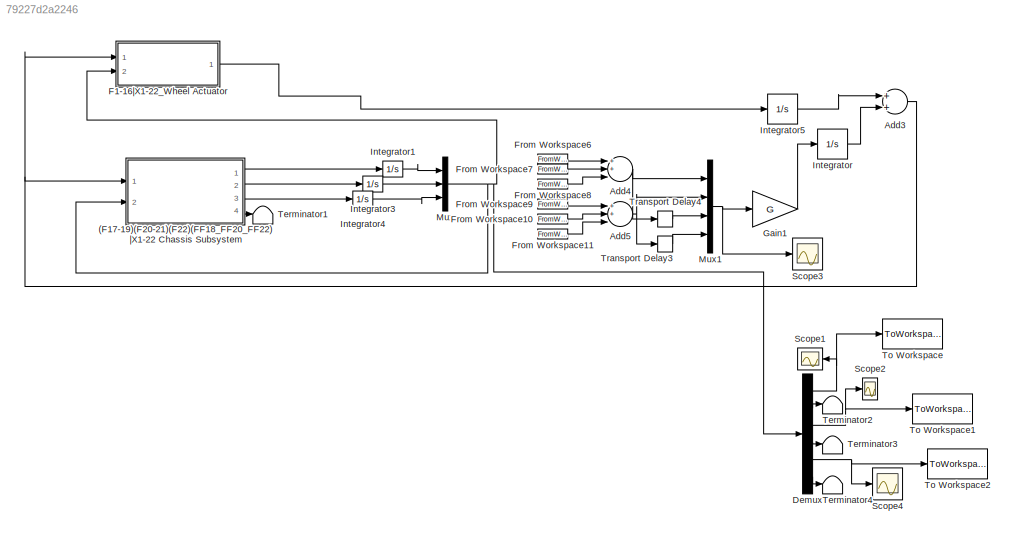
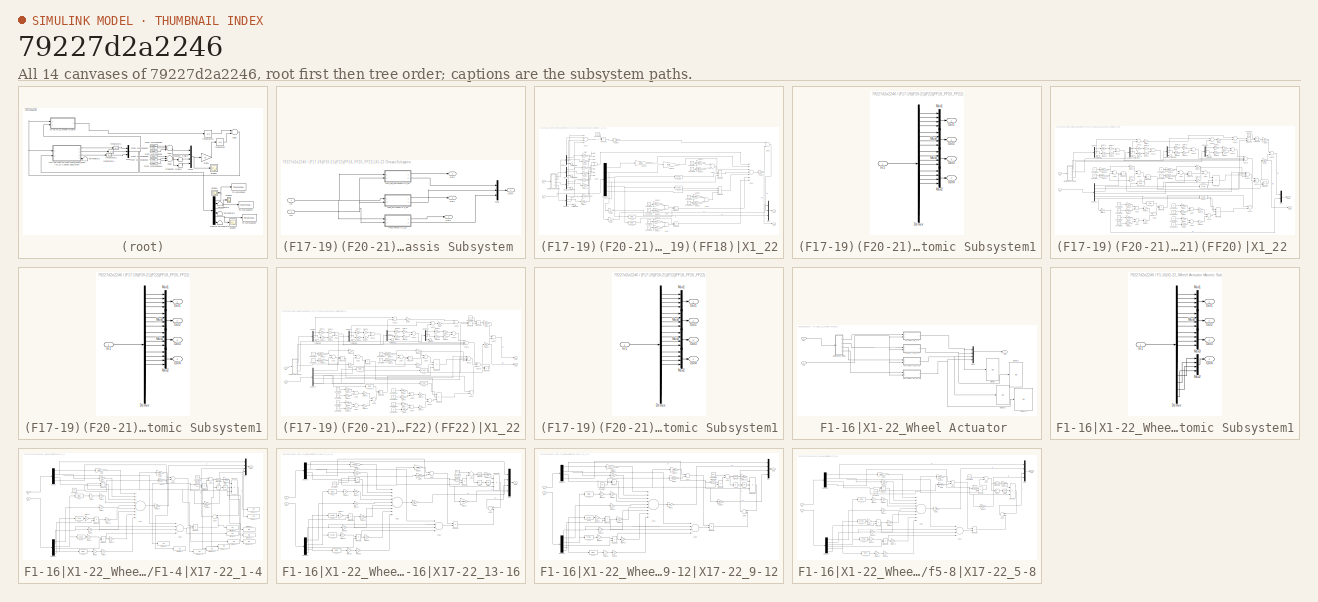
[diagram: thumbnail index - all 14 canvases of the model, root first then tree order]
MODEL slx_79227d2a2246
KIND model
CONFIG AbsTol = auto
CONFIG EnableMultiTasking = off
CONFIG FixedStep = .001
CONFIG MaxStep = 0.01
CONFIG MinStep = .001
CONFIG RelTol = 1e-3
CONFIG SampleTimeConstraint = Unconstrained
CONFIG Solver = ode8
CONFIG SolverName = ode8
CONFIG StartTime = 0.0
CONFIG StopTime = 10
BLOCK [SubSystem] (F17-19)(F20-21)(F22)(FF18_FF20_FF22) |X1-22 Chassis Subsystem 
  Ports = [2, 4]
  RequestExecContextInheritance = off
  TreatAsAtomicUnit = on
BLOCK [SubSystem] (F17-19)(F20-21)(F22)(FF18_FF20_FF22) |X1-22 Chassis Subsystem /(F17_18_19)(FF18)|X1_22
  Ports = [2, 2]
  RequestExecContextInheritance = off
  TreatAsAtomicUnit = on
BLOCK [Sum] (F17-19)(F20-21)(F22)(FF18_FF20_FF22) |X1-22 Chassis Subsystem /(F17_18_19)(FF18)|X1_22/Add
  InputSameDT = off
  OutDataTypeStr = Inherit: Inherit via internal rule
  Ports = [2, 1]
  SaturateOnIntegerOverflow = off
BLOCK [Sum] (F17-19)(F20-21)(F22)(FF18_FF20_FF22) |X1-22 Chassis Subsystem /(F17_18_19)(FF18)|X1_22/Add1
  InputSameDT = off
  OutDataTypeStr = Inherit: Inherit via internal rule
  Ports = [2, 1]
  SaturateOnIntegerOverflow = off
BLOCK [Sum] (F17-19)(F20-21)(F22)(FF18_FF20_FF22) |X1-22 Chassis Subsystem /(F17_18_19)(FF18)|X1_22/Add2
  InputSameDT = off
  OutDataTypeStr = Inherit: Inherit via internal rule
  Ports = [2, 1]
  SaturateOnIntegerOverflow = off
BLOCK [Sum] (F17-19)(F20-21)(F22)(FF18_FF20_FF22) |X1-22 Chassis Subsystem /(F17_18_19)(FF18)|X1_22/Add3
  InputSameDT = off
  OutDataTypeStr = Inherit: Inherit via internal rule
  Ports = [2, 1]
  SaturateOnIntegerOverflow = off
BLOCK [Sum] (F17-19)(F20-21)(F22)(FF18_FF20_FF22) |X1-22 Chassis Subsystem /(F17_18_19)(FF18)|X1_22/Add4
  InputSameDT = off
  Inputs = +++++++
  OutDataTypeStr = Inherit: Inherit via internal rule
  Ports = [7, 1]
  SaturateOnIntegerOverflow = off
BLOCK [Sum] (F17-19)(F20-21)(F22)(FF18_FF20_FF22) |X1-22 Chassis Subsystem /(F17_18_19)(FF18)|X1_22/Add6
  InputSameDT = off
  OutDataTypeStr = Inherit: Inherit via internal rule
  Ports = [2, 1]
  SaturateOnIntegerOverflow = off
BLOCK [Sum] (F17-19)(F20-21)(F22)(FF18_FF20_FF22) |X1-22 Chassis Subsystem /(F17_18_19)(FF18)|X1_22/Add7
  InputSameDT = off
  Inputs = ++++
  OutDataTypeStr = Inherit: Inherit via internal rule
  Ports = [4, 1]
  SaturateOnIntegerOverflow = off
BLOCK [Sum] (F17-19)(F20-21)(F22)(FF18_FF20_FF22) |X1-22 Chassis Subsystem /(F17_18_19)(FF18)|X1_22/Add8
  InputSameDT = off
  Inputs = ++++++++
  OutDataTypeStr = Inherit: Inherit via internal rule
  Ports = [8, 1]
  SaturateOnIntegerOverflow = off
BLOCK [SubSystem] (F17-19)(F20-21)(F22)(FF18_FF20_FF22) |X1-22 Chassis Subsystem /(F17_18_19)(FF18)|X1_22/Atomic Subsystem1
  Ports = [1, 4]
  RequestExecContextInheritance = off
  TreatAsAtomicUnit = on
BLOCK [Demux] (F17-19)(F20-21)(F22)(FF18_FF20_FF22) |X1-22 Chassis Subsystem /(F17_18_19)(FF18)|X1_22/Atomic Subsystem1/Demux
  DisplayOption = bar
  Outputs = 16
  Ports = [1, 16]
BLOCK [Inport] (F17-19)(F20-21)(F22)(FF18_FF20_FF22) |X1-22 Chassis Subsystem /(F17_18_19)(FF18)|X1_22/Atomic Subsystem1/In1
  IconDisplay = Port number
BLOCK [Mux] (F17-19)(F20-21)(F22)(FF18_FF20_FF22) |X1-22 Chassis Subsystem /(F17_18_19)(FF18)|X1_22/Atomic Subsystem1/Mux1
  DisplayOption = bar
  Ports = [4, 1]
BLOCK [Mux] (F17-19)(F20-21)(F22)(FF18_FF20_FF22) |X1-22 Chassis Subsystem /(F17_18_19)(FF18)|X1_22/Atomic Subsystem1/Mux2
  DisplayOption = bar
  Ports = [4, 1]
BLOCK [Mux] (F17-19)(F20-21)(F22)(FF18_FF20_FF22) |X1-22 Chassis Subsystem /(F17_18_19)(FF18)|X1_22/Atomic Subsystem1/Mux3
  DisplayOption = bar
  Ports = [4, 1]
BLOCK [Mux] (F17-19)(F20-21)(F22)(FF18_FF20_FF22) |X1-22 Chassis Subsystem /(F17_18_19)(FF18)|X1_22/Atomic Subsystem1/Mux4
  DisplayOption = bar
  Ports = [4, 1]
BLOCK [Outport] (F17-19)(F20-21)(F22)(FF18_FF20_FF22) |X1-22 Chassis Subsystem /(F17_18_19)(FF18)|X1_22/Atomic Subsystem1/Out1
  IconDisplay = Port number
BLOCK [Outport] (F17-19)(F20-21)(F22)(FF18_FF20_FF22) |X1-22 Chassis Subsystem /(F17_18_19)(FF18)|X1_22/Atomic Subsystem1/Out2
  IconDisplay = Port number
  Port = 2
BLOCK [Outport] (F17-19)(F20-21)(F22)(FF18_FF20_FF22) |X1-22 Chassis Subsystem /(F17_18_19)(FF18)|X1_22/Atomic Subsystem1/Out3
  IconDisplay = Port number
  Port = 3
BLOCK [Outport] (F17-19)(F20-21)(F22)(FF18_FF20_FF22) |X1-22 Chassis Subsystem /(F17_18_19)(FF18)|X1_22/Atomic Subsystem1/Out4
  IconDisplay = Port number
  Port = 4
BLOCK [Constant] (F17-19)(F20-21)(F22)(FF18_FF20_FF22) |X1-22 Chassis Subsystem /(F17_18_19)(FF18)|X1_22/Constant
  Value = Ap1
BLOCK [Constant] (F17-19)(F20-21)(F22)(FF18_FF20_FF22) |X1-22 Chassis Subsystem /(F17_18_19)(FF18)|X1_22/Constant1
  Value = -a
BLOCK [Constant] (F17-19)(F20-21)(F22)(FF18_FF20_FF22) |X1-22 Chassis Subsystem /(F17_18_19)(FF18)|X1_22/Constant10
  Value = c
BLOCK [Constant] (F17-19)(F20-21)(F22)(FF18_FF20_FF22) |X1-22 Chassis Subsystem /(F17_18_19)(FF18)|X1_22/Constant2
  Value = b
BLOCK [Constant] (F17-19)(F20-21)(F22)(FF18_FF20_FF22) |X1-22 Chassis Subsystem /(F17_18_19)(FF18)|X1_22/Constant5
  Value = -d
BLOCK [Constant] (F17-19)(F20-21)(F22)(FF18_FF20_FF22) |X1-22 Chassis Subsystem /(F17_18_19)(FF18)|X1_22/Constant6
  Value = c
BLOCK [Constant] (F17-19)(F20-21)(F22)(FF18_FF20_FF22) |X1-22 Chassis Subsystem /(F17_18_19)(FF18)|X1_22/Constant7
  Value = -a
BLOCK [Constant] (F17-19)(F20-21)(F22)(FF18_FF20_FF22) |X1-22 Chassis Subsystem /(F17_18_19)(FF18)|X1_22/Constant8
  Value = b
BLOCK [Constant] (F17-19)(F20-21)(F22)(FF18_FF20_FF22) |X1-22 Chassis Subsystem /(F17_18_19)(FF18)|X1_22/Constant9
  Value = -d
BLOCK [Demux] (F17-19)(F20-21)(F22)(FF18_FF20_FF22) |X1-22 Chassis Subsystem /(F17_18_19)(FF18)|X1_22/Demux1
  DisplayOption = bar
  Ports = [1, 4]
BLOCK [Demux] (F17-19)(F20-21)(F22)(FF18_FF20_FF22) |X1-22 Chassis Subsystem /(F17_18_19)(FF18)|X1_22/Demux2
  DisplayOption = bar
  Ports = [1, 4]
BLOCK [Demux] (F17-19)(F20-21)(F22)(FF18_FF20_FF22) |X1-22 Chassis Subsystem /(F17_18_19)(FF18)|X1_22/Demux3
  DisplayOption = bar
  Ports = [1, 4]
BLOCK [Demux] (F17-19)(F20-21)(F22)(FF18_FF20_FF22) |X1-22 Chassis Subsystem /(F17_18_19)(FF18)|X1_22/Demux4
  DisplayOption = bar
  Outputs = 6
  Ports = [1, 6]
BLOCK [Demux] (F17-19)(F20-21)(F22)(FF18_FF20_FF22) |X1-22 Chassis Subsystem /(F17_18_19)(FF18)|X1_22/Demux6
  DisplayOption = bar
  Ports = [1, 4]
BLOCK [Fcn] (F17-19)(F20-21)(F22)(FF18_FF20_FF22) |X1-22 Chassis Subsystem /(F17_18_19)(FF18)|X1_22/Fcn1
  Expr = cos(u)
BLOCK [Fcn] (F17-19)(F20-21)(F22)(FF18_FF20_FF22) |X1-22 Chassis Subsystem /(F17_18_19)(FF18)|X1_22/Fcn2
  Expr = sin(u)
BLOCK [Fcn] (F17-19)(F20-21)(F22)(FF18_FF20_FF22) |X1-22 Chassis Subsystem /(F17_18_19)(FF18)|X1_22/Fcn3
  Expr = sin(u)
BLOCK [Fcn] (F17-19)(F20-21)(F22)(FF18_FF20_FF22) |X1-22 Chassis Subsystem /(F17_18_19)(FF18)|X1_22/Fcn4
  Expr = cos(u)
BLOCK [Gain] (F17-19)(F20-21)(F22)(FF18_FF20_FF22) |X1-22 Chassis Subsystem /(F17_18_19)(FF18)|X1_22/Gain
  Gain = Ksfr
  OutDataTypeStr = Inherit: Inherit via internal rule
  ParamDataTypeStr = Inherit: Inherit via internal rule
  SaturateOnIntegerOverflow = off
BLOCK [Gain] (F17-19)(F20-21)(F22)(FF18_FF20_FF22) |X1-22 Chassis Subsystem /(F17_18_19)(FF18)|X1_22/Gain1
  Gain = Ksfl
  OutDataTypeStr = Inherit: Inherit via internal rule
  ParamDataTypeStr = Inherit: Inherit via internal rule
  SaturateOnIntegerOverflow = off
BLOCK [Gain] (F17-19)(F20-21)(F22)(FF18_FF20_FF22) |X1-22 Chassis Subsystem /(F17_18_19)(FF18)|X1_22/Gain10
  Gain = Csrr
  OutDataTypeStr = Inherit: Inherit via internal rule
  ParamDataTypeStr = Inherit: Inherit via internal rule
  SaturateOnIntegerOverflow = off
BLOCK [Gain] (F17-19)(F20-21)(F22)(FF18_FF20_FF22) |X1-22 Chassis Subsystem /(F17_18_19)(FF18)|X1_22/Gain11
  Gain = Csrl
  OutDataTypeStr = Inherit: Inherit via internal rule
  ParamDataTypeStr = Inherit: Inherit via internal rule
  SaturateOnIntegerOverflow = off
BLOCK [Gain] (F17-19)(F20-21)(F22)(FF18_FF20_FF22) |X1-22 Chassis Subsystem /(F17_18_19)(FF18)|X1_22/Gain12
  Gain = Csfr+Csfl
  OutDataTypeStr = Inherit: Inherit via internal rule
  ParamDataTypeStr = Inherit: Inherit via internal rule
  SaturateOnIntegerOverflow = off
BLOCK [Gain] (F17-19)(F20-21)(F22)(FF18_FF20_FF22) |X1-22 Chassis Subsystem /(F17_18_19)(FF18)|X1_22/Gain13
  Gain = Csfr+Csfl
  OutDataTypeStr = Inherit: Inherit via internal rule
  ParamDataTypeStr = Inherit: Inherit via internal rule
  SaturateOnIntegerOverflow = off
BLOCK [Gain] (F17-19)(F20-21)(F22)(FF18_FF20_FF22) |X1-22 Chassis Subsystem /(F17_18_19)(FF18)|X1_22/Gain14
  Gain = 1/M
  OutDataTypeStr = Inherit: Inherit via internal rule
  ParamDataTypeStr = Inherit: Inherit via internal rule
  SaturateOnIntegerOverflow = off
BLOCK [Gain] (F17-19)(F20-21)(F22)(FF18_FF20_FF22) |X1-22 Chassis Subsystem /(F17_18_19)(FF18)|X1_22/Gain16
  Gain = -(Ksfr+Ksfl+Ksrr+Ksrl)
  OutDataTypeStr = Inherit: Inherit via internal rule
  ParamDataTypeStr = Inherit: Inherit via internal rule
  SaturateOnIntegerOverflow = off
BLOCK [Gain] (F17-19)(F20-21)(F22)(FF18_FF20_FF22) |X1-22 Chassis Subsystem /(F17_18_19)(FF18)|X1_22/Gain2
  Gain = Ksrr
  OutDataTypeStr = Inherit: Inherit via internal rule
  ParamDataTypeStr = Inherit: Inherit via internal rule
  SaturateOnIntegerOverflow = off
BLOCK [Gain] (F17-19)(F20-21)(F22)(FF18_FF20_FF22) |X1-22 Chassis Subsystem /(F17_18_19)(FF18)|X1_22/Gain21
  Gain = Ksfr+Ksfl
  OutDataTypeStr = Inherit: Inherit via internal rule
  ParamDataTypeStr = Inherit: Inherit via internal rule
  SaturateOnIntegerOverflow = off
BLOCK [Gain] (F17-19)(F20-21)(F22)(FF18_FF20_FF22) |X1-22 Chassis Subsystem /(F17_18_19)(FF18)|X1_22/Gain22
  Gain = Ksrl+Ksfl
  OutDataTypeStr = Inherit: Inherit via internal rule
  ParamDataTypeStr = Inherit: Inherit via internal rule
  SaturateOnIntegerOverflow = off
BLOCK [Gain] (F17-19)(F20-21)(F22)(FF18_FF20_FF22) |X1-22 Chassis Subsystem /(F17_18_19)(FF18)|X1_22/Gain23
  Gain = Ksrr+Ksrl
  OutDataTypeStr = Inherit: Inherit via internal rule
  ParamDataTypeStr = Inherit: Inherit via internal rule
  SaturateOnIntegerOverflow = off
BLOCK [Gain] (F17-19)(F20-21)(F22)(FF18_FF20_FF22) |X1-22 Chassis Subsystem /(F17_18_19)(FF18)|X1_22/Gain24
  Gain = Ksrr+Ksfr
  OutDataTypeStr = Inherit: Inherit via internal rule
  ParamDataTypeStr = Inherit: Inherit via internal rule
  SaturateOnIntegerOverflow = off
BLOCK [Gain] (F17-19)(F20-21)(F22)(FF18_FF20_FF22) |X1-22 Chassis Subsystem /(F17_18_19)(FF18)|X1_22/Gain25
  Gain = -(Csfr+Csfl+Csrr+Csfr)
  OutDataTypeStr = Inherit: Inherit via internal rule
  ParamDataTypeStr = Inherit: Inherit via internal rule
  SaturateOnIntegerOverflow = off
BLOCK [Gain] (F17-19)(F20-21)(F22)(FF18_FF20_FF22) |X1-22 Chassis Subsystem /(F17_18_19)(FF18)|X1_22/Gain26
  Gain = Csrr+Csrl
  OutDataTypeStr = Inherit: Inherit via internal rule
  ParamDataTypeStr = Inherit: Inherit via internal rule
  SaturateOnIntegerOverflow = off
BLOCK [Gain] (F17-19)(F20-21)(F22)(FF18_FF20_FF22) |X1-22 Chassis Subsystem /(F17_18_19)(FF18)|X1_22/Gain27
  Gain = Csrr+Csrl
  OutDataTypeStr = Inherit: Inherit via internal rule
  ParamDataTypeStr = Inherit: Inherit via internal rule
  SaturateOnIntegerOverflow = off
BLOCK [Gain] (F17-19)(F20-21)(F22)(FF18_FF20_FF22) |X1-22 Chassis Subsystem /(F17_18_19)(FF18)|X1_22/Gain3
  Gain = Ksrl
  OutDataTypeStr = Inherit: Inherit via internal rule
  ParamDataTypeStr = Inherit: Inherit via internal rule
  SaturateOnIntegerOverflow = off
BLOCK [Gain] (F17-19)(F20-21)(F22)(FF18_FF20_FF22) |X1-22 Chassis Subsystem /(F17_18_19)(FF18)|X1_22/Gain4
  Gain = 1/M
  OutDataTypeStr = Inherit: Inherit via internal rule
  ParamDataTypeStr = Inherit: Inherit via internal rule
  SaturateOnIntegerOverflow = off
BLOCK [Gain] (F17-19)(F20-21)(F22)(FF18_FF20_FF22) |X1-22 Chassis Subsystem /(F17_18_19)(FF18)|X1_22/Gain5
  OutDataTypeStr = Inherit: Inherit via internal rule
  ParamDataTypeStr = Inherit: Inherit via internal rule
  SaturateOnIntegerOverflow = off
BLOCK [Gain] (F17-19)(F20-21)(F22)(FF18_FF20_FF22) |X1-22 Chassis Subsystem /(F17_18_19)(FF18)|X1_22/Gain7
  OutDataTypeStr = Inherit: Inherit via internal rule
  ParamDataTypeStr = Inherit: Inherit via internal rule
  SaturateOnIntegerOverflow = off
BLOCK [Gain] (F17-19)(F20-21)(F22)(FF18_FF20_FF22) |X1-22 Chassis Subsystem /(F17_18_19)(FF18)|X1_22/Gain8
  Gain = Csfr
  OutDataTypeStr = Inherit: Inherit via internal rule
  ParamDataTypeStr = Inherit: Inherit via internal rule
  SaturateOnIntegerOverflow = off
BLOCK [Gain] (F17-19)(F20-21)(F22)(FF18_FF20_FF22) |X1-22 Chassis Subsystem /(F17_18_19)(FF18)|X1_22/Gain9
  Gain = Csfl
  OutDataTypeStr = Inherit: Inherit via internal rule
  ParamDataTypeStr = Inherit: Inherit via internal rule
  SaturateOnIntegerOverflow = off
BLOCK [Inport] (F17-19)(F20-21)(F22)(FF18_FF20_FF22) |X1-22 Chassis Subsystem /(F17_18_19)(FF18)|X1_22/In1
  IconDisplay = Port number
BLOCK [Inport] (F17-19)(F20-21)(F22)(FF18_FF20_FF22) |X1-22 Chassis Subsystem /(F17_18_19)(FF18)|X1_22/In2
  IconDisplay = Port number
  Port = 2
BLOCK [Mux] (F17-19)(F20-21)(F22)(FF18_FF20_FF22) |X1-22 Chassis Subsystem /(F17_18_19)(FF18)|X1_22/Mux
  DisplayOption = bar
  Inputs = 3
  Ports = [3, 1]
BLOCK [Outport] (F17-19)(F20-21)(F22)(FF18_FF20_FF22) |X1-22 Chassis Subsystem /(F17_18_19)(FF18)|X1_22/Out1
  IconDisplay = Port number
BLOCK [Outport] (F17-19)(F20-21)(F22)(FF18_FF20_FF22) |X1-22 Chassis Subsystem /(F17_18_19)(FF18)|X1_22/Out2
  IconDisplay = Port number
  Port = 2
BLOCK [Product] (F17-19)(F20-21)(F22)(FF18_FF20_FF22) |X1-22 Chassis Subsystem /(F17_18_19)(FF18)|X1_22/Product
  InputSameDT = off
  OutDataTypeStr = Inherit: Inherit via internal rule
  Ports = [2, 1]
  RndMeth = Floor
  SaturateOnIntegerOverflow = off
BLOCK [Product] (F17-19)(F20-21)(F22)(FF18_FF20_FF22) |X1-22 Chassis Subsystem /(F17_18_19)(FF18)|X1_22/Product1
  InputSameDT = off
  OutDataTypeStr = Inherit: Inherit via internal rule
  Ports = [2, 1]
  RndMeth = Floor
  SaturateOnIntegerOverflow = off
BLOCK [Product] (F17-19)(F20-21)(F22)(FF18_FF20_FF22) |X1-22 Chassis Subsystem /(F17_18_19)(FF18)|X1_22/Product2
  InputSameDT = off
  Inputs = 3
  OutDataTypeStr = Inherit: Inherit via internal rule
  Ports = [3, 1]
  RndMeth = Floor
  SaturateOnIntegerOverflow = off
BLOCK [Product] (F17-19)(F20-21)(F22)(FF18_FF20_FF22) |X1-22 Chassis Subsystem /(F17_18_19)(FF18)|X1_22/Product3
  InputSameDT = off
  Inputs = 3
  OutDataTypeStr = Inherit: Inherit via internal rule
  Ports = [3, 1]
  RndMeth = Floor
  SaturateOnIntegerOverflow = off
BLOCK [Product] (F17-19)(F20-21)(F22)(FF18_FF20_FF22) |X1-22 Chassis Subsystem /(F17_18_19)(FF18)|X1_22/Product4
  InputSameDT = off
  OutDataTypeStr = Inherit: Inherit via internal rule
  Ports = [2, 1]
  RndMeth = Floor
  SaturateOnIntegerOverflow = off
BLOCK [Terminator] (F17-19)(F20-21)(F22)(FF18_FF20_FF22) |X1-22 Chassis Subsystem /(F17_18_19)(FF18)|X1_22/Terminator1
BLOCK [Terminator] (F17-19)(F20-21)(F22)(FF18_FF20_FF22) |X1-22 Chassis Subsystem /(F17_18_19)(FF18)|X1_22/Terminator3
BLOCK [Terminator] (F17-19)(F20-21)(F22)(FF18_FF20_FF22) |X1-22 Chassis Subsystem /(F17_18_19)(FF18)|X1_22/Terminator5
BLOCK [Terminator] (F17-19)(F20-21)(F22)(FF18_FF20_FF22) |X1-22 Chassis Subsystem /(F17_18_19)(FF18)|X1_22/Terminator7
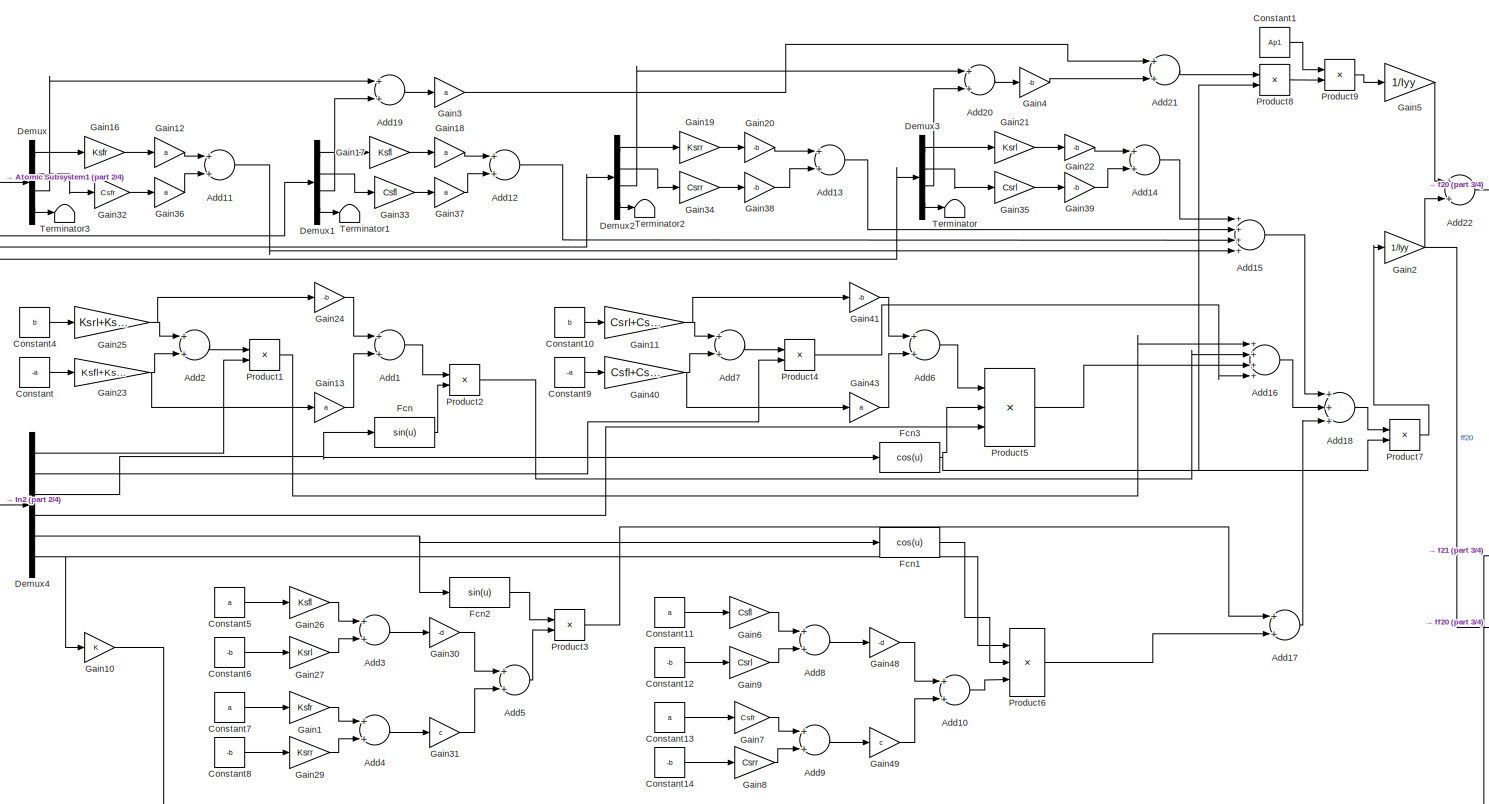
[diagram: (F17-19)(F20-21)(F22)(FF18_FF20_FF22) |X1-22 Chassis Subsystem /(F20_21)(FF20)|X1_22  - part 1/4, most of the canvas]
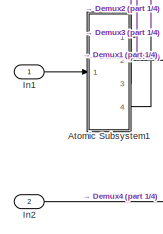
[diagram: (F17-19)(F20-21)(F22)(FF18_FF20_FF22) |X1-22 Chassis Subsystem /(F20_21)(FF20)|X1_22  - part 2/4, middle left region]
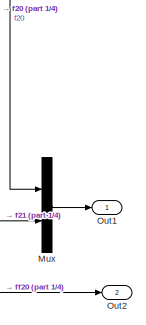
[diagram: (F17-19)(F20-21)(F22)(FF18_FF20_FF22) |X1-22 Chassis Subsystem /(F20_21)(FF20)|X1_22  - part 3/4, middle right region]
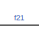
[diagram: (F17-19)(F20-21)(F22)(FF18_FF20_FF22) |X1-22 Chassis Subsystem /(F20_21)(FF20)|X1_22  - part 4/4, bottom center region]
BLOCK [SubSystem] (F17-19)(F20-21)(F22)(FF18_FF20_FF22) |X1-22 Chassis Subsystem /(F20_21)(FF20)|X1_22 
  Ports = [2, 2]
  RequestExecContextInheritance = off
  TreatAsAtomicUnit = on
BLOCK [Sum] (F17-19)(F20-21)(F22)(FF18_FF20_FF22) |X1-22 Chassis Subsystem /(F20_21)(FF20)|X1_22 /Add1
  InputSameDT = off
  OutDataTypeStr = Inherit: Inherit via internal rule
  Ports = [2, 1]
  SaturateOnIntegerOverflow = off
BLOCK [Sum] (F17-19)(F20-21)(F22)(FF18_FF20_FF22) |X1-22 Chassis Subsystem /(F20_21)(FF20)|X1_22 /Add10
  InputSameDT = off
  OutDataTypeStr = Inherit: Inherit via internal rule
  Ports = [2, 1]
  SaturateOnIntegerOverflow = off
BLOCK [Sum] (F17-19)(F20-21)(F22)(FF18_FF20_FF22) |X1-22 Chassis Subsystem /(F20_21)(FF20)|X1_22 /Add11
  InputSameDT = off
  OutDataTypeStr = Inherit: Inherit via internal rule
  Ports = [2, 1]
  SaturateOnIntegerOverflow = off
BLOCK [Sum] (F17-19)(F20-21)(F22)(FF18_FF20_FF22) |X1-22 Chassis Subsystem /(F20_21)(FF20)|X1_22 /Add12
  InputSameDT = off
  OutDataTypeStr = Inherit: Inherit via internal rule
  Ports = [2, 1]
  SaturateOnIntegerOverflow = off
BLOCK [Sum] (F17-19)(F20-21)(F22)(FF18_FF20_FF22) |X1-22 Chassis Subsystem /(F20_21)(FF20)|X1_22 /Add13
  InputSameDT = off
  OutDataTypeStr = Inherit: Inherit via internal rule
  Ports = [2, 1]
  SaturateOnIntegerOverflow = off
BLOCK [Sum] (F17-19)(F20-21)(F22)(FF18_FF20_FF22) |X1-22 Chassis Subsystem /(F20_21)(FF20)|X1_22 /Add14
  InputSameDT = off
  OutDataTypeStr = Inherit: Inherit via internal rule
  Ports = [2, 1]
  SaturateOnIntegerOverflow = off
BLOCK [Sum] (F17-19)(F20-21)(F22)(FF18_FF20_FF22) |X1-22 Chassis Subsystem /(F20_21)(FF20)|X1_22 /Add15
  InputSameDT = off
  Inputs = ++++
  OutDataTypeStr = Inherit: Inherit via internal rule
  Ports = [4, 1]
  SaturateOnIntegerOverflow = off
BLOCK [Sum] (F17-19)(F20-21)(F22)(FF18_FF20_FF22) |X1-22 Chassis Subsystem /(F20_21)(FF20)|X1_22 /Add16
  InputSameDT = off
  Inputs = ++++
  OutDataTypeStr = Inherit: Inherit via internal rule
  Ports = [4, 1]
  SaturateOnIntegerOverflow = off
BLOCK [Sum] (F17-19)(F20-21)(F22)(FF18_FF20_FF22) |X1-22 Chassis Subsystem /(F20_21)(FF20)|X1_22 /Add17
  InputSameDT = off
  OutDataTypeStr = Inherit: Inherit via internal rule
  Ports = [2, 1]
  SaturateOnIntegerOverflow = off
BLOCK [Sum] (F17-19)(F20-21)(F22)(FF18_FF20_FF22) |X1-22 Chassis Subsystem /(F20_21)(FF20)|X1_22 /Add18
  InputSameDT = off
  Inputs = +++
  OutDataTypeStr = Inherit: Inherit via internal rule
  Ports = [3, 1]
  SaturateOnIntegerOverflow = off
BLOCK [Sum] (F17-19)(F20-21)(F22)(FF18_FF20_FF22) |X1-22 Chassis Subsystem /(F20_21)(FF20)|X1_22 /Add19
  InputSameDT = off
  OutDataTypeStr = Inherit: Inherit via internal rule
  Ports = [2, 1]
  SaturateOnIntegerOverflow = off
BLOCK [Sum] (F17-19)(F20-21)(F22)(FF18_FF20_FF22) |X1-22 Chassis Subsystem /(F20_21)(FF20)|X1_22 /Add2
  InputSameDT = off
  OutDataTypeStr = Inherit: Inherit via internal rule
  Ports = [2, 1]
  SaturateOnIntegerOverflow = off
BLOCK [Sum] (F17-19)(F20-21)(F22)(FF18_FF20_FF22) |X1-22 Chassis Subsystem /(F20_21)(FF20)|X1_22 /Add20
  InputSameDT = off
  OutDataTypeStr = Inherit: Inherit via internal rule
  Ports = [2, 1]
  SaturateOnIntegerOverflow = off
BLOCK [Sum] (F17-19)(F20-21)(F22)(FF18_FF20_FF22) |X1-22 Chassis Subsystem /(F20_21)(FF20)|X1_22 /Add21
  InputSameDT = off
  OutDataTypeStr = Inherit: Inherit via internal rule
  Ports = [2, 1]
  SaturateOnIntegerOverflow = off
BLOCK [Sum] (F17-19)(F20-21)(F22)(FF18_FF20_FF22) |X1-22 Chassis Subsystem /(F20_21)(FF20)|X1_22 /Add22
  InputSameDT = off
  OutDataTypeStr = Inherit: Inherit via internal rule
  Ports = [2, 1]
  SaturateOnIntegerOverflow = off
BLOCK [Sum] (F17-19)(F20-21)(F22)(FF18_FF20_FF22) |X1-22 Chassis Subsystem /(F20_21)(FF20)|X1_22 /Add3
  InputSameDT = off
  OutDataTypeStr = Inherit: Inherit via internal rule
  Ports = [2, 1]
  SaturateOnIntegerOverflow = off
BLOCK [Sum] (F17-19)(F20-21)(F22)(FF18_FF20_FF22) |X1-22 Chassis Subsystem /(F20_21)(FF20)|X1_22 /Add4
  InputSameDT = off
  OutDataTypeStr = Inherit: Inherit via internal rule
  Ports = [2, 1]
  SaturateOnIntegerOverflow = off
BLOCK [Sum] (F17-19)(F20-21)(F22)(FF18_FF20_FF22) |X1-22 Chassis Subsystem /(F20_21)(FF20)|X1_22 /Add5
  InputSameDT = off
  OutDataTypeStr = Inherit: Inherit via internal rule
  Ports = [2, 1]
  SaturateOnIntegerOverflow = off
BLOCK [Sum] (F17-19)(F20-21)(F22)(FF18_FF20_FF22) |X1-22 Chassis Subsystem /(F20_21)(FF20)|X1_22 /Add6
  InputSameDT = off
  OutDataTypeStr = Inherit: Inherit via internal rule
  Ports = [2, 1]
  SaturateOnIntegerOverflow = off
BLOCK [Sum] (F17-19)(F20-21)(F22)(FF18_FF20_FF22) |X1-22 Chassis Subsystem /(F20_21)(FF20)|X1_22 /Add7
  InputSameDT = off
  OutDataTypeStr = Inherit: Inherit via internal rule
  Ports = [2, 1]
  SaturateOnIntegerOverflow = off
BLOCK [Sum] (F17-19)(F20-21)(F22)(FF18_FF20_FF22) |X1-22 Chassis Subsystem /(F20_21)(FF20)|X1_22 /Add8
  InputSameDT = off
  OutDataTypeStr = Inherit: Inherit via internal rule
  Ports = [2, 1]
  SaturateOnIntegerOverflow = off
BLOCK [Sum] (F17-19)(F20-21)(F22)(FF18_FF20_FF22) |X1-22 Chassis Subsystem /(F20_21)(FF20)|X1_22 /Add9
  InputSameDT = off
  OutDataTypeStr = Inherit: Inherit via internal rule
  Ports = [2, 1]
  SaturateOnIntegerOverflow = off
BLOCK [SubSystem] (F17-19)(F20-21)(F22)(FF18_FF20_FF22) |X1-22 Chassis Subsystem /(F20_21)(FF20)|X1_22 /Atomic Subsystem1
  Ports = [1, 4]
  RequestExecContextInheritance = off
  TreatAsAtomicUnit = on
BLOCK [Demux] (F17-19)(F20-21)(F22)(FF18_FF20_FF22) |X1-22 Chassis Subsystem /(F20_21)(FF20)|X1_22 /Atomic Subsystem1/Demux
  DisplayOption = bar
  Outputs = 16
  Ports = [1, 16]
BLOCK [Inport] (F17-19)(F20-21)(F22)(FF18_FF20_FF22) |X1-22 Chassis Subsystem /(F20_21)(FF20)|X1_22 /Atomic Subsystem1/In1
  IconDisplay = Port number
BLOCK [Mux] (F17-19)(F20-21)(F22)(FF18_FF20_FF22) |X1-22 Chassis Subsystem /(F20_21)(FF20)|X1_22 /Atomic Subsystem1/Mux1
  DisplayOption = bar
  Ports = [4, 1]
BLOCK [Mux] (F17-19)(F20-21)(F22)(FF18_FF20_FF22) |X1-22 Chassis Subsystem /(F20_21)(FF20)|X1_22 /Atomic Subsystem1/Mux2
  DisplayOption = bar
  Ports = [4, 1]
BLOCK [Mux] (F17-19)(F20-21)(F22)(FF18_FF20_FF22) |X1-22 Chassis Subsystem /(F20_21)(FF20)|X1_22 /Atomic Subsystem1/Mux3
  DisplayOption = bar
  Ports = [4, 1]
BLOCK [Mux] (F17-19)(F20-21)(F22)(FF18_FF20_FF22) |X1-22 Chassis Subsystem /(F20_21)(FF20)|X1_22 /Atomic Subsystem1/Mux4
  DisplayOption = bar
  Ports = [4, 1]
BLOCK [Outport] (F17-19)(F20-21)(F22)(FF18_FF20_FF22) |X1-22 Chassis Subsystem /(F20_21)(FF20)|X1_22 /Atomic Subsystem1/Out1
  IconDisplay = Port number
BLOCK [Outport] (F17-19)(F20-21)(F22)(FF18_FF20_FF22) |X1-22 Chassis Subsystem /(F20_21)(FF20)|X1_22 /Atomic Subsystem1/Out2
  IconDisplay = Port number
  Port = 2
BLOCK [Outport] (F17-19)(F20-21)(F22)(FF18_FF20_FF22) |X1-22 Chassis Subsystem /(F20_21)(FF20)|X1_22 /Atomic Subsystem1/Out3
  IconDisplay = Port number
  Port = 3
BLOCK [Outport] (F17-19)(F20-21)(F22)(FF18_FF20_FF22) |X1-22 Chassis Subsystem /(F20_21)(FF20)|X1_22 /Atomic Subsystem1/Out4
  IconDisplay = Port number
  Port = 4
BLOCK [Constant] (F17-19)(F20-21)(F22)(FF18_FF20_FF22) |X1-22 Chassis Subsystem /(F20_21)(FF20)|X1_22 /Constant
  Value = -a
BLOCK [Constant] (F17-19)(F20-21)(F22)(FF18_FF20_FF22) |X1-22 Chassis Subsystem /(F20_21)(FF20)|X1_22 /Constant1
  Value = Ap1
BLOCK [Constant] (F17-19)(F20-21)(F22)(FF18_FF20_FF22) |X1-22 Chassis Subsystem /(F20_21)(FF20)|X1_22 /Constant10
  Value = b
BLOCK [Constant] (F17-19)(F20-21)(F22)(FF18_FF20_FF22) |X1-22 Chassis Subsystem /(F20_21)(FF20)|X1_22 /Constant11
  Value = a
BLOCK [Constant] (F17-19)(F20-21)(F22)(FF18_FF20_FF22) |X1-22 Chassis Subsystem /(F20_21)(FF20)|X1_22 /Constant12
  Value = -b
BLOCK [Constant] (F17-19)(F20-21)(F22)(FF18_FF20_FF22) |X1-22 Chassis Subsystem /(F20_21)(FF20)|X1_22 /Constant13
  Value = a
BLOCK [Constant] (F17-19)(F20-21)(F22)(FF18_FF20_FF22) |X1-22 Chassis Subsystem /(F20_21)(FF20)|X1_22 /Constant14
  Value = -b
BLOCK [Constant] (F17-19)(F20-21)(F22)(FF18_FF20_FF22) |X1-22 Chassis Subsystem /(F20_21)(FF20)|X1_22 /Constant4
  Value = b
BLOCK [Constant] (F17-19)(F20-21)(F22)(FF18_FF20_FF22) |X1-22 Chassis Subsystem /(F20_21)(FF20)|X1_22 /Constant5
  Value = a
BLOCK [Constant] (F17-19)(F20-21)(F22)(FF18_FF20_FF22) |X1-22 Chassis Subsystem /(F20_21)(FF20)|X1_22 /Constant6
  Value = -b
BLOCK [Constant] (F17-19)(F20-21)(F22)(FF18_FF20_FF22) |X1-22 Chassis Subsystem /(F20_21)(FF20)|X1_22 /Constant7
  Value = a
BLOCK [Constant] (F17-19)(F20-21)(F22)(FF18_FF20_FF22) |X1-22 Chassis Subsystem /(F20_21)(FF20)|X1_22 /Constant8
  Value = -b
BLOCK [Constant] (F17-19)(F20-21)(F22)(FF18_FF20_FF22) |X1-22 Chassis Subsystem /(F20_21)(FF20)|X1_22 /Constant9
  Value = -a
BLOCK [Demux] (F17-19)(F20-21)(F22)(FF18_FF20_FF22) |X1-22 Chassis Subsystem /(F20_21)(FF20)|X1_22 /Demux
  DisplayOption = bar
  Ports = [1, 4]
BLOCK [Demux] (F17-19)(F20-21)(F22)(FF18_FF20_FF22) |X1-22 Chassis Subsystem /(F20_21)(FF20)|X1_22 /Demux1
  DisplayOption = bar
  Ports = [1, 4]
BLOCK [Demux] (F17-19)(F20-21)(F22)(FF18_FF20_FF22) |X1-22 Chassis Subsystem /(F20_21)(FF20)|X1_22 /Demux2
  DisplayOption = bar
  Ports = [1, 4]
BLOCK [Demux] (F17-19)(F20-21)(F22)(FF18_FF20_FF22) |X1-22 Chassis Subsystem /(F20_21)(FF20)|X1_22 /Demux3
  DisplayOption = bar
  Ports = [1, 4]
BLOCK [Demux] (F17-19)(F20-21)(F22)(FF18_FF20_FF22) |X1-22 Chassis Subsystem /(F20_21)(FF20)|X1_22 /Demux4
  DisplayOption = bar
  Outputs = 6
  Ports = [1, 6]
BLOCK [Fcn] (F17-19)(F20-21)(F22)(FF18_FF20_FF22) |X1-22 Chassis Subsystem /(F20_21)(FF20)|X1_22 /Fcn
  Expr = sin(u)
BLOCK [Fcn] (F17-19)(F20-21)(F22)(FF18_FF20_FF22) |X1-22 Chassis Subsystem /(F20_21)(FF20)|X1_22 /Fcn1
  Expr = cos(u)
BLOCK [Fcn] (F17-19)(F20-21)(F22)(FF18_FF20_FF22) |X1-22 Chassis Subsystem /(F20_21)(FF20)|X1_22 /Fcn2
  Expr = sin(u)
BLOCK [Fcn] (F17-19)(F20-21)(F22)(FF18_FF20_FF22) |X1-22 Chassis Subsystem /(F20_21)(FF20)|X1_22 /Fcn3
  Expr = cos(u)
BLOCK [Gain] (F17-19)(F20-21)(F22)(FF18_FF20_FF22) |X1-22 Chassis Subsystem /(F20_21)(FF20)|X1_22 /Gain1
  Gain = Ksfr
  OutDataTypeStr = Inherit: Inherit via internal rule
  ParamDataTypeStr = Inherit: Inherit via internal rule
  SaturateOnIntegerOverflow = off
BLOCK [Gain] (F17-19)(F20-21)(F22)(FF18_FF20_FF22) |X1-22 Chassis Subsystem /(F20_21)(FF20)|X1_22 /Gain10
  OutDataTypeStr = Inherit: Inherit via internal rule
  ParamDataTypeStr = Inherit: Inherit via internal rule
  SaturateOnIntegerOverflow = off
BLOCK [Gain] (F17-19)(F20-21)(F22)(FF18_FF20_FF22) |X1-22 Chassis Subsystem /(F20_21)(FF20)|X1_22 /Gain11
  Gain = Csrl+Csrr
  OutDataTypeStr = Inherit: Inherit via internal rule
  ParamDataTypeStr = Inherit: Inherit via internal rule
  SaturateOnIntegerOverflow = off
BLOCK [Gain] (F17-19)(F20-21)(F22)(FF18_FF20_FF22) |X1-22 Chassis Subsystem /(F20_21)(FF20)|X1_22 /Gain12
  Gain = a
  OutDataTypeStr = Inherit: Inherit via internal rule
  ParamDataTypeStr = Inherit: Inherit via internal rule
  SaturateOnIntegerOverflow = off
BLOCK [Gain] (F17-19)(F20-21)(F22)(FF18_FF20_FF22) |X1-22 Chassis Subsystem /(F20_21)(FF20)|X1_22 /Gain13
  Gain = a
  OutDataTypeStr = Inherit: Inherit via internal rule
  ParamDataTypeStr = Inherit: Inherit via internal rule
  SaturateOnIntegerOverflow = off
BLOCK [Gain] (F17-19)(F20-21)(F22)(FF18_FF20_FF22) |X1-22 Chassis Subsystem /(F20_21)(FF20)|X1_22 /Gain16
  Gain = Ksfr
  OutDataTypeStr = Inherit: Inherit via internal rule
  ParamDataTypeStr = Inherit: Inherit via internal rule
  SaturateOnIntegerOverflow = off
BLOCK [Gain] (F17-19)(F20-21)(F22)(FF18_FF20_FF22) |X1-22 Chassis Subsystem /(F20_21)(FF20)|X1_22 /Gain17
  Gain = Ksfl
  OutDataTypeStr = Inherit: Inherit via internal rule
  ParamDataTypeStr = Inherit: Inherit via internal rule
  SaturateOnIntegerOverflow = off
BLOCK [Gain] (F17-19)(F20-21)(F22)(FF18_FF20_FF22) |X1-22 Chassis Subsystem /(F20_21)(FF20)|X1_22 /Gain18
  Gain = a
  OutDataTypeStr = Inherit: Inherit via internal rule
  ParamDataTypeStr = Inherit: Inherit via internal rule
  SaturateOnIntegerOverflow = off
BLOCK [Gain] (F17-19)(F20-21)(F22)(FF18_FF20_FF22) |X1-22 Chassis Subsystem /(F20_21)(FF20)|X1_22 /Gain19
  Gain = Ksrr
  OutDataTypeStr = Inherit: Inherit via internal rule
  ParamDataTypeStr = Inherit: Inherit via internal rule
  SaturateOnIntegerOverflow = off
BLOCK [Gain] (F17-19)(F20-21)(F22)(FF18_FF20_FF22) |X1-22 Chassis Subsystem /(F20_21)(FF20)|X1_22 /Gain2
  Gain = 1/Iyy
  OutDataTypeStr = Inherit: Inherit via internal rule
  ParamDataTypeStr = Inherit: Inherit via internal rule
  SaturateOnIntegerOverflow = off
BLOCK [Gain] (F17-19)(F20-21)(F22)(FF18_FF20_FF22) |X1-22 Chassis Subsystem /(F20_21)(FF20)|X1_22 /Gain20
  Gain = -b
  OutDataTypeStr = Inherit: Inherit via internal rule
  ParamDataTypeStr = Inherit: Inherit via internal rule
  SaturateOnIntegerOverflow = off
BLOCK [Gain] (F17-19)(F20-21)(F22)(FF18_FF20_FF22) |X1-22 Chassis Subsystem /(F20_21)(FF20)|X1_22 /Gain21
  Gain = Ksrl
  OutDataTypeStr = Inherit: Inherit via internal rule
  ParamDataTypeStr = Inherit: Inherit via internal rule
  SaturateOnIntegerOverflow = off
BLOCK [Gain] (F17-19)(F20-21)(F22)(FF18_FF20_FF22) |X1-22 Chassis Subsystem /(F20_21)(FF20)|X1_22 /Gain22
  Gain = -b
  OutDataTypeStr = Inherit: Inherit via internal rule
  ParamDataTypeStr = Inherit: Inherit via internal rule
  SaturateOnIntegerOverflow = off
BLOCK [Gain] (F17-19)(F20-21)(F22)(FF18_FF20_FF22) |X1-22 Chassis Subsystem /(F20_21)(FF20)|X1_22 /Gain23
  Gain = Ksfl+Ksfr
  OutDataTypeStr = Inherit: Inherit via internal rule
  ParamDataTypeStr = Inherit: Inherit via internal rule
  SaturateOnIntegerOverflow = off
BLOCK [Gain] (F17-19)(F20-21)(F22)(FF18_FF20_FF22) |X1-22 Chassis Subsystem /(F20_21)(FF20)|X1_22 /Gain24
  Gain = -b
  OutDataTypeStr = Inherit: Inherit via internal rule
  ParamDataTypeStr = Inherit: Inherit via internal rule
  SaturateOnIntegerOverflow = off
BLOCK [Gain] (F17-19)(F20-21)(F22)(FF18_FF20_FF22) |X1-22 Chassis Subsystem /(F20_21)(FF20)|X1_22 /Gain25
  Gain = Ksrl+Ksrr
  OutDataTypeStr = Inherit: Inherit via internal rule
  ParamDataTypeStr = Inherit: Inherit via internal rule
  SaturateOnIntegerOverflow = off
BLOCK [Gain] (F17-19)(F20-21)(F22)(FF18_FF20_FF22) |X1-22 Chassis Subsystem /(F20_21)(FF20)|X1_22 /Gain26
  Gain = Ksfl
  OutDataTypeStr = Inherit: Inherit via internal rule
  ParamDataTypeStr = Inherit: Inherit via internal rule
  SaturateOnIntegerOverflow = off
BLOCK [Gain] (F17-19)(F20-21)(F22)(FF18_FF20_FF22) |X1-22 Chassis Subsystem /(F20_21)(FF20)|X1_22 /Gain27
  Gain = Ksrl
  OutDataTypeStr = Inherit: Inherit via internal rule
  ParamDataTypeStr = Inherit: Inherit via internal rule
  SaturateOnIntegerOverflow = off
BLOCK [Gain] (F17-19)(F20-21)(F22)(FF18_FF20_FF22) |X1-22 Chassis Subsystem /(F20_21)(FF20)|X1_22 /Gain29
  Gain = Ksrr
  OutDataTypeStr = Inherit: Inherit via internal rule
  ParamDataTypeStr = Inherit: Inherit via internal rule
  SaturateOnIntegerOverflow = off
BLOCK [Gain] (F17-19)(F20-21)(F22)(FF18_FF20_FF22) |X1-22 Chassis Subsystem /(F20_21)(FF20)|X1_22 /Gain3
  Gain = a
  OutDataTypeStr = Inherit: Inherit via internal rule
  ParamDataTypeStr = Inherit: Inherit via internal rule
  SaturateOnIntegerOverflow = off
BLOCK [Gain] (F17-19)(F20-21)(F22)(FF18_FF20_FF22) |X1-22 Chassis Subsystem /(F20_21)(FF20)|X1_22 /Gain30
  Gain = -d
  OutDataTypeStr = Inherit: Inherit via internal rule
  ParamDataTypeStr = Inherit: Inherit via internal rule
  SaturateOnIntegerOverflow = off
BLOCK [Gain] (F17-19)(F20-21)(F22)(FF18_FF20_FF22) |X1-22 Chassis Subsystem /(F20_21)(FF20)|X1_22 /Gain31
  Gain = c
  OutDataTypeStr = Inherit: Inherit via internal rule
  ParamDataTypeStr = Inherit: Inherit via internal rule
  SaturateOnIntegerOverflow = off
BLOCK [Gain] (F17-19)(F20-21)(F22)(FF18_FF20_FF22) |X1-22 Chassis Subsystem /(F20_21)(FF20)|X1_22 /Gain32
  Gain = Csfr
  OutDataTypeStr = Inherit: Inherit via internal rule
  ParamDataTypeStr = Inherit: Inherit via internal rule
  SaturateOnIntegerOverflow = off
BLOCK [Gain] (F17-19)(F20-21)(F22)(FF18_FF20_FF22) |X1-22 Chassis Subsystem /(F20_21)(FF20)|X1_22 /Gain33
  Gain = Csfl
  OutDataTypeStr = Inherit: Inherit via internal rule
  ParamDataTypeStr = Inherit: Inherit via internal rule
  SaturateOnIntegerOverflow = off
BLOCK [Gain] (F17-19)(F20-21)(F22)(FF18_FF20_FF22) |X1-22 Chassis Subsystem /(F20_21)(FF20)|X1_22 /Gain34
  Gain = Csrr
  OutDataTypeStr = Inherit: Inherit via internal rule
  ParamDataTypeStr = Inherit: Inherit via internal rule
  SaturateOnIntegerOverflow = off
BLOCK [Gain] (F17-19)(F20-21)(F22)(FF18_FF20_FF22) |X1-22 Chassis Subsystem /(F20_21)(FF20)|X1_22 /Gain35
  Gain = Csrl
  OutDataTypeStr = Inherit: Inherit via internal rule
  ParamDataTypeStr = Inherit: Inherit via internal rule
  SaturateOnIntegerOverflow = off
BLOCK [Gain] (F17-19)(F20-21)(F22)(FF18_FF20_FF22) |X1-22 Chassis Subsystem /(F20_21)(FF20)|X1_22 /Gain36
  Gain = a
  OutDataTypeStr = Inherit: Inherit via internal rule
  ParamDataTypeStr = Inherit: Inherit via internal rule
  SaturateOnIntegerOverflow = off
BLOCK [Gain] (F17-19)(F20-21)(F22)(FF18_FF20_FF22) |X1-22 Chassis Subsystem /(F20_21)(FF20)|X1_22 /Gain37
  Gain = a
  OutDataTypeStr = Inherit: Inherit via internal rule
  ParamDataTypeStr = Inherit: Inherit via internal rule
  SaturateOnIntegerOverflow = off
BLOCK [Gain] (F17-19)(F20-21)(F22)(FF18_FF20_FF22) |X1-22 Chassis Subsystem /(F20_21)(FF20)|X1_22 /Gain38
  Gain = -b
  OutDataTypeStr = Inherit: Inherit via internal rule
  ParamDataTypeStr = Inherit: Inherit via internal rule
  SaturateOnIntegerOverflow = off
BLOCK [Gain] (F17-19)(F20-21)(F22)(FF18_FF20_FF22) |X1-22 Chassis Subsystem /(F20_21)(FF20)|X1_22 /Gain39
  Gain = -b
  OutDataTypeStr = Inherit: Inherit via internal rule
  ParamDataTypeStr = Inherit: Inherit via internal rule
  SaturateOnIntegerOverflow = off
BLOCK [Gain] (F17-19)(F20-21)(F22)(FF18_FF20_FF22) |X1-22 Chassis Subsystem /(F20_21)(FF20)|X1_22 /Gain4
  Gain = -b
  OutDataTypeStr = Inherit: Inherit via internal rule
  ParamDataTypeStr = Inherit: Inherit via internal rule
  SaturateOnIntegerOverflow = off
BLOCK [Gain] (F17-19)(F20-21)(F22)(FF18_FF20_FF22) |X1-22 Chassis Subsystem /(F20_21)(FF20)|X1_22 /Gain40
  Gain = Csfl+Csfr
  OutDataTypeStr = Inherit: Inherit via internal rule
  ParamDataTypeStr = Inherit: Inherit via internal rule
  SaturateOnIntegerOverflow = off
BLOCK [Gain] (F17-19)(F20-21)(F22)(FF18_FF20_FF22) |X1-22 Chassis Subsystem /(F20_21)(FF20)|X1_22 /Gain41
  Gain = -b
  OutDataTypeStr = Inherit: Inherit via internal rule
  ParamDataTypeStr = Inherit: Inherit via internal rule
  SaturateOnIntegerOverflow = off
BLOCK [Gain] (F17-19)(F20-21)(F22)(FF18_FF20_FF22) |X1-22 Chassis Subsystem /(F20_21)(FF20)|X1_22 /Gain43
  Gain = a
  OutDataTypeStr = Inherit: Inherit via internal rule
  ParamDataTypeStr = Inherit: Inherit via internal rule
  SaturateOnIntegerOverflow = off
BLOCK [Gain] (F17-19)(F20-21)(F22)(FF18_FF20_FF22) |X1-22 Chassis Subsystem /(F20_21)(FF20)|X1_22 /Gain48
  Gain = -d
  OutDataTypeStr = Inherit: Inherit via internal rule
  ParamDataTypeStr = Inherit: Inherit via internal rule
  SaturateOnIntegerOverflow = off
BLOCK [Gain] (F17-19)(F20-21)(F22)(FF18_FF20_FF22) |X1-22 Chassis Subsystem /(F20_21)(FF20)|X1_22 /Gain49
  Gain = c
  OutDataTypeStr = Inherit: Inherit via internal rule
  ParamDataTypeStr = Inherit: Inherit via internal rule
  SaturateOnIntegerOverflow = off
BLOCK [Gain] (F17-19)(F20-21)(F22)(FF18_FF20_FF22) |X1-22 Chassis Subsystem /(F20_21)(FF20)|X1_22 /Gain5
  Gain = 1/Iyy
  OutDataTypeStr = Inherit: Inherit via internal rule
  ParamDataTypeStr = Inherit: Inherit via internal rule
  SaturateOnIntegerOverflow = off
BLOCK [Gain] (F17-19)(F20-21)(F22)(FF18_FF20_FF22) |X1-22 Chassis Subsystem /(F20_21)(FF20)|X1_22 /Gain6
  Gain = Csfl
  OutDataTypeStr = Inherit: Inherit via internal rule
  ParamDataTypeStr = Inherit: Inherit via internal rule
  SaturateOnIntegerOverflow = off
BLOCK [Gain] (F17-19)(F20-21)(F22)(FF18_FF20_FF22) |X1-22 Chassis Subsystem /(F20_21)(FF20)|X1_22 /Gain7
  Gain = Csfr
  OutDataTypeStr = Inherit: Inherit via internal rule
  ParamDataTypeStr = Inherit: Inherit via internal rule
  SaturateOnIntegerOverflow = off
BLOCK [Gain] (F17-19)(F20-21)(F22)(FF18_FF20_FF22) |X1-22 Chassis Subsystem /(F20_21)(FF20)|X1_22 /Gain8
  Gain = Csrr
  OutDataTypeStr = Inherit: Inherit via internal rule
  ParamDataTypeStr = Inherit: Inherit via internal rule
  SaturateOnIntegerOverflow = off
BLOCK [Gain] (F17-19)(F20-21)(F22)(FF18_FF20_FF22) |X1-22 Chassis Subsystem /(F20_21)(FF20)|X1_22 /Gain9
  Gain = Csrl
  OutDataTypeStr = Inherit: Inherit via internal rule
  ParamDataTypeStr = Inherit: Inherit via internal rule
  SaturateOnIntegerOverflow = off
BLOCK [Inport] (F17-19)(F20-21)(F22)(FF18_FF20_FF22) |X1-22 Chassis Subsystem /(F20_21)(FF20)|X1_22 /In1
  IconDisplay = Port number
BLOCK [Inport] (F17-19)(F20-21)(F22)(FF18_FF20_FF22) |X1-22 Chassis Subsystem /(F20_21)(FF20)|X1_22 /In2
  IconDisplay = Port number
  Port = 2
BLOCK [Mux] (F17-19)(F20-21)(F22)(FF18_FF20_FF22) |X1-22 Chassis Subsystem /(F20_21)(FF20)|X1_22 /Mux
  DisplayOption = bar
  Inputs = 2
  Ports = [2, 1]
BLOCK [Outport] (F17-19)(F20-21)(F22)(FF18_FF20_FF22) |X1-22 Chassis Subsystem /(F20_21)(FF20)|X1_22 /Out1
  IconDisplay = Port number
BLOCK [Outport] (F17-19)(F20-21)(F22)(FF18_FF20_FF22) |X1-22 Chassis Subsystem /(F20_21)(FF20)|X1_22 /Out2
  IconDisplay = Port number
  Port = 2
BLOCK [Product] (F17-19)(F20-21)(F22)(FF18_FF20_FF22) |X1-22 Chassis Subsystem /(F20_21)(FF20)|X1_22 /Product1
  InputSameDT = off
  OutDataTypeStr = Inherit: Inherit via internal rule
  Ports = [2, 1]
  RndMeth = Floor
  SaturateOnIntegerOverflow = off
BLOCK [Product] (F17-19)(F20-21)(F22)(FF18_FF20_FF22) |X1-22 Chassis Subsystem /(F20_21)(FF20)|X1_22 /Product2
  InputSameDT = off
  OutDataTypeStr = Inherit: Inherit via internal rule
  Ports = [2, 1]
  RndMeth = Floor
  SaturateOnIntegerOverflow = off
BLOCK [Product] (F17-19)(F20-21)(F22)(FF18_FF20_FF22) |X1-22 Chassis Subsystem /(F20_21)(FF20)|X1_22 /Product3
  InputSameDT = off
  OutDataTypeStr = Inherit: Inherit via internal rule
  Ports = [2, 1]
  RndMeth = Floor
  SaturateOnIntegerOverflow = off
BLOCK [Product] (F17-19)(F20-21)(F22)(FF18_FF20_FF22) |X1-22 Chassis Subsystem /(F20_21)(FF20)|X1_22 /Product4
  InputSameDT = off
  OutDataTypeStr = Inherit: Inherit via internal rule
  Ports = [2, 1]
  RndMeth = Floor
  SaturateOnIntegerOverflow = off
BLOCK [Product] (F17-19)(F20-21)(F22)(FF18_FF20_FF22) |X1-22 Chassis Subsystem /(F20_21)(FF20)|X1_22 /Product5
  InputSameDT = off
  Inputs = 3
  OutDataTypeStr = Inherit: Inherit via internal rule
  Ports = [3, 1]
  RndMeth = Floor
  SaturateOnIntegerOverflow = off
BLOCK [Product] (F17-19)(F20-21)(F22)(FF18_FF20_FF22) |X1-22 Chassis Subsystem /(F20_21)(FF20)|X1_22 /Product6
  InputSameDT = off
  Inputs = 3
  OutDataTypeStr = Inherit: Inherit via internal rule
  Ports = [3, 1]
  RndMeth = Floor
  SaturateOnIntegerOverflow = off
BLOCK [Product] (F17-19)(F20-21)(F22)(FF18_FF20_FF22) |X1-22 Chassis Subsystem /(F20_21)(FF20)|X1_22 /Product7
  InputSameDT = off
  OutDataTypeStr = Inherit: Inherit via internal rule
  Ports = [2, 1]
  RndMeth = Floor
  SaturateOnIntegerOverflow = off
BLOCK [Product] (F17-19)(F20-21)(F22)(FF18_FF20_FF22) |X1-22 Chassis Subsystem /(F20_21)(FF20)|X1_22 /Product8
  InputSameDT = off
  OutDataTypeStr = Inherit: Inherit via internal rule
  Ports = [2, 1]
  RndMeth = Floor
  SaturateOnIntegerOverflow = off
BLOCK [Product] (F17-19)(F20-21)(F22)(FF18_FF20_FF22) |X1-22 Chassis Subsystem /(F20_21)(FF20)|X1_22 /Product9
  InputSameDT = off
  OutDataTypeStr = Inherit: Inherit via internal rule
  Ports = [2, 1]
  RndMeth = Floor
  SaturateOnIntegerOverflow = off
BLOCK [Terminator] (F17-19)(F20-21)(F22)(FF18_FF20_FF22) |X1-22 Chassis Subsystem /(F20_21)(FF20)|X1_22 /Terminator
BLOCK [Terminator] (F17-19)(F20-21)(F22)(FF18_FF20_FF22) |X1-22 Chassis Subsystem /(F20_21)(FF20)|X1_22 /Terminator1
BLOCK [Terminator] (F17-19)(F20-21)(F22)(FF18_FF20_FF22) |X1-22 Chassis Subsystem /(F20_21)(FF20)|X1_22 /Terminator2
BLOCK [Terminator] (F17-19)(F20-21)(F22)(FF18_FF20_FF22) |X1-22 Chassis Subsystem /(F20_21)(FF20)|X1_22 /Terminator3
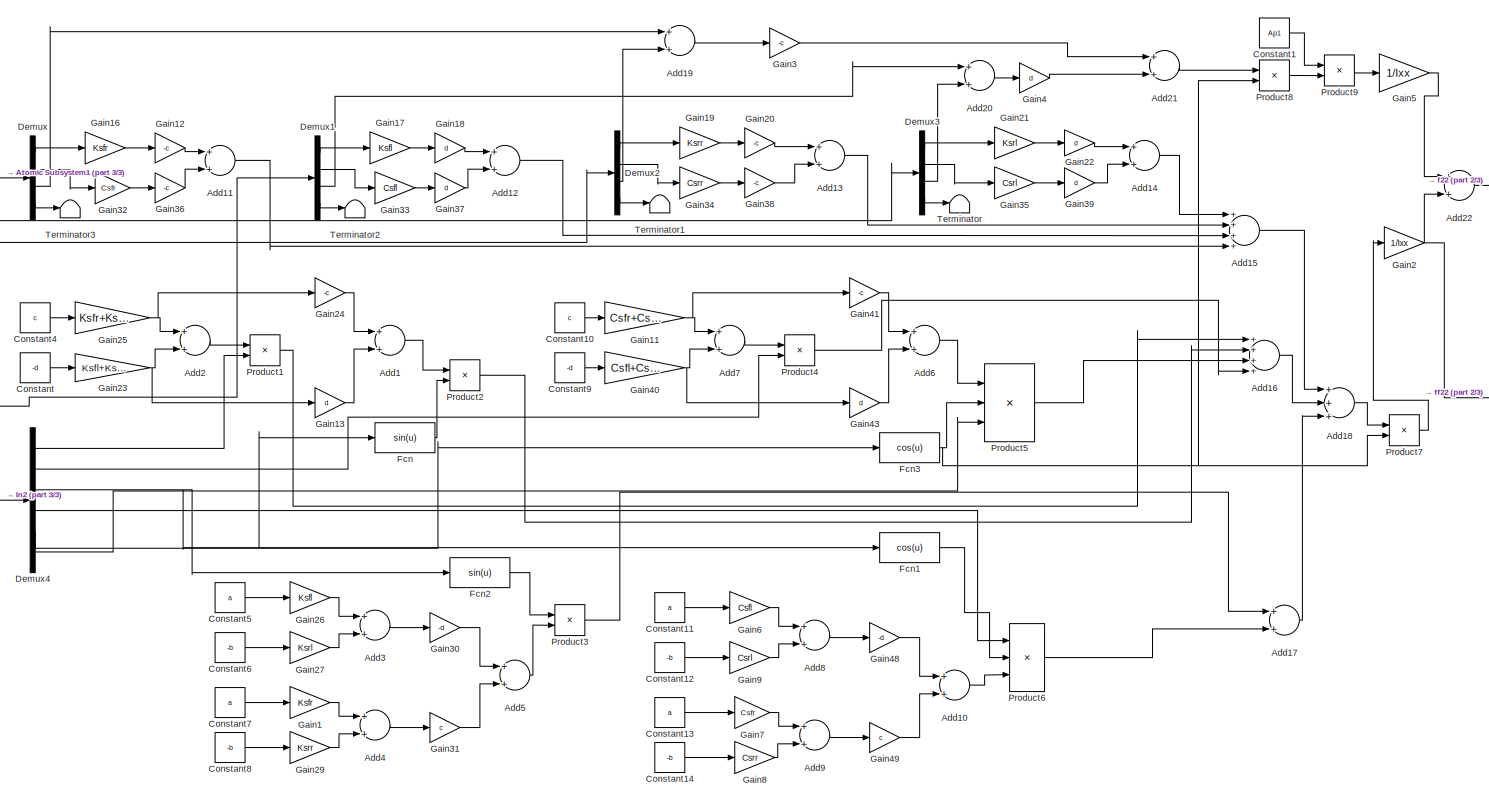
[diagram: (F17-19)(F20-21)(F22)(FF18_FF20_FF22) |X1-22 Chassis Subsystem /(F22)(FF22)|X1_22 - part 1/3, most of the canvas]
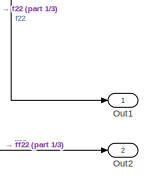
[diagram: (F17-19)(F20-21)(F22)(FF18_FF20_FF22) |X1-22 Chassis Subsystem /(F22)(FF22)|X1_22 - part 2/3, middle right region]
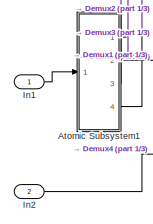
[diagram: (F17-19)(F20-21)(F22)(FF18_FF20_FF22) |X1-22 Chassis Subsystem /(F22)(FF22)|X1_22 - part 3/3, middle left region]
BLOCK [SubSystem] (F17-19)(F20-21)(F22)(FF18_FF20_FF22) |X1-22 Chassis Subsystem /(F22)(FF22)|X1_22
  Ports = [2, 2]
  RequestExecContextInheritance = off
  TreatAsAtomicUnit = on
BLOCK [Sum] (F17-19)(F20-21)(F22)(FF18_FF20_FF22) |X1-22 Chassis Subsystem /(F22)(FF22)|X1_22/Add1
  InputSameDT = off
  OutDataTypeStr = Inherit: Inherit via internal rule
  Ports = [2, 1]
  SaturateOnIntegerOverflow = off
BLOCK [Sum] (F17-19)(F20-21)(F22)(FF18_FF20_FF22) |X1-22 Chassis Subsystem /(F22)(FF22)|X1_22/Add10
  InputSameDT = off
  OutDataTypeStr = Inherit: Inherit via internal rule
  Ports = [2, 1]
  SaturateOnIntegerOverflow = off
BLOCK [Sum] (F17-19)(F20-21)(F22)(FF18_FF20_FF22) |X1-22 Chassis Subsystem /(F22)(FF22)|X1_22/Add11
  InputSameDT = off
  OutDataTypeStr = Inherit: Inherit via internal rule
  Ports = [2, 1]
  SaturateOnIntegerOverflow = off
BLOCK [Sum] (F17-19)(F20-21)(F22)(FF18_FF20_FF22) |X1-22 Chassis Subsystem /(F22)(FF22)|X1_22/Add12
  InputSameDT = off
  OutDataTypeStr = Inherit: Inherit via internal rule
  Ports = [2, 1]
  SaturateOnIntegerOverflow = off
BLOCK [Sum] (F17-19)(F20-21)(F22)(FF18_FF20_FF22) |X1-22 Chassis Subsystem /(F22)(FF22)|X1_22/Add13
  InputSameDT = off
  OutDataTypeStr = Inherit: Inherit via internal rule
  Ports = [2, 1]
  SaturateOnIntegerOverflow = off
BLOCK [Sum] (F17-19)(F20-21)(F22)(FF18_FF20_FF22) |X1-22 Chassis Subsystem /(F22)(FF22)|X1_22/Add14
  InputSameDT = off
  OutDataTypeStr = Inherit: Inherit via internal rule
  Ports = [2, 1]
  SaturateOnIntegerOverflow = off
BLOCK [Sum] (F17-19)(F20-21)(F22)(FF18_FF20_FF22) |X1-22 Chassis Subsystem /(F22)(FF22)|X1_22/Add15
  InputSameDT = off
  Inputs = ++++
  OutDataTypeStr = Inherit: Inherit via internal rule
  Ports = [4, 1]
  SaturateOnIntegerOverflow = off
BLOCK [Sum] (F17-19)(F20-21)(F22)(FF18_FF20_FF22) |X1-22 Chassis Subsystem /(F22)(FF22)|X1_22/Add16
  InputSameDT = off
  Inputs = ++++
  OutDataTypeStr = Inherit: Inherit via internal rule
  Ports = [4, 1]
  SaturateOnIntegerOverflow = off
BLOCK [Sum] (F17-19)(F20-21)(F22)(FF18_FF20_FF22) |X1-22 Chassis Subsystem /(F22)(FF22)|X1_22/Add17
  InputSameDT = off
  OutDataTypeStr = Inherit: Inherit via internal rule
  Ports = [2, 1]
  SaturateOnIntegerOverflow = off
BLOCK [Sum] (F17-19)(F20-21)(F22)(FF18_FF20_FF22) |X1-22 Chassis Subsystem /(F22)(FF22)|X1_22/Add18
  InputSameDT = off
  Inputs = +++
  OutDataTypeStr = Inherit: Inherit via internal rule
  Ports = [3, 1]
  SaturateOnIntegerOverflow = off
BLOCK [Sum] (F17-19)(F20-21)(F22)(FF18_FF20_FF22) |X1-22 Chassis Subsystem /(F22)(FF22)|X1_22/Add19
  InputSameDT = off
  OutDataTypeStr = Inherit: Inherit via internal rule
  Ports = [2, 1]
  SaturateOnIntegerOverflow = off
BLOCK [Sum] (F17-19)(F20-21)(F22)(FF18_FF20_FF22) |X1-22 Chassis Subsystem /(F22)(FF22)|X1_22/Add2
  InputSameDT = off
  OutDataTypeStr = Inherit: Inherit via internal rule
  Ports = [2, 1]
  SaturateOnIntegerOverflow = off
BLOCK [Sum] (F17-19)(F20-21)(F22)(FF18_FF20_FF22) |X1-22 Chassis Subsystem /(F22)(FF22)|X1_22/Add20
  InputSameDT = off
  OutDataTypeStr = Inherit: Inherit via internal rule
  Ports = [2, 1]
  SaturateOnIntegerOverflow = off
BLOCK [Sum] (F17-19)(F20-21)(F22)(FF18_FF20_FF22) |X1-22 Chassis Subsystem /(F22)(FF22)|X1_22/Add21
  InputSameDT = off
  OutDataTypeStr = Inherit: Inherit via internal rule
  Ports = [2, 1]
  SaturateOnIntegerOverflow = off
BLOCK [Sum] (F17-19)(F20-21)(F22)(FF18_FF20_FF22) |X1-22 Chassis Subsystem /(F22)(FF22)|X1_22/Add22
  InputSameDT = off
  OutDataTypeStr = Inherit: Inherit via internal rule
  Ports = [2, 1]
  SaturateOnIntegerOverflow = off
BLOCK [Sum] (F17-19)(F20-21)(F22)(FF18_FF20_FF22) |X1-22 Chassis Subsystem /(F22)(FF22)|X1_22/Add3
  InputSameDT = off
  OutDataTypeStr = Inherit: Inherit via internal rule
  Ports = [2, 1]
  SaturateOnIntegerOverflow = off
BLOCK [Sum] (F17-19)(F20-21)(F22)(FF18_FF20_FF22) |X1-22 Chassis Subsystem /(F22)(FF22)|X1_22/Add4
  InputSameDT = off
  OutDataTypeStr = Inherit: Inherit via internal rule
  Ports = [2, 1]
  SaturateOnIntegerOverflow = off
BLOCK [Sum] (F17-19)(F20-21)(F22)(FF18_FF20_FF22) |X1-22 Chassis Subsystem /(F22)(FF22)|X1_22/Add5
  InputSameDT = off
  OutDataTypeStr = Inherit: Inherit via internal rule
  Ports = [2, 1]
  SaturateOnIntegerOverflow = off
BLOCK [Sum] (F17-19)(F20-21)(F22)(FF18_FF20_FF22) |X1-22 Chassis Subsystem /(F22)(FF22)|X1_22/Add6
  InputSameDT = off
  OutDataTypeStr = Inherit: Inherit via internal rule
  Ports = [2, 1]
  SaturateOnIntegerOverflow = off
BLOCK [Sum] (F17-19)(F20-21)(F22)(FF18_FF20_FF22) |X1-22 Chassis Subsystem /(F22)(FF22)|X1_22/Add7
  InputSameDT = off
  OutDataTypeStr = Inherit: Inherit via internal rule
  Ports = [2, 1]
  SaturateOnIntegerOverflow = off
BLOCK [Sum] (F17-19)(F20-21)(F22)(FF18_FF20_FF22) |X1-22 Chassis Subsystem /(F22)(FF22)|X1_22/Add8
  InputSameDT = off
  OutDataTypeStr = Inherit: Inherit via internal rule
  Ports = [2, 1]
  SaturateOnIntegerOverflow = off
BLOCK [Sum] (F17-19)(F20-21)(F22)(FF18_FF20_FF22) |X1-22 Chassis Subsystem /(F22)(FF22)|X1_22/Add9
  InputSameDT = off
  OutDataTypeStr = Inherit: Inherit via internal rule
  Ports = [2, 1]
  SaturateOnIntegerOverflow = off
BLOCK [SubSystem] (F17-19)(F20-21)(F22)(FF18_FF20_FF22) |X1-22 Chassis Subsystem /(F22)(FF22)|X1_22/Atomic Subsystem1
  Ports = [1, 4]
  RequestExecContextInheritance = off
  TreatAsAtomicUnit = on
BLOCK [Demux] (F17-19)(F20-21)(F22)(FF18_FF20_FF22) |X1-22 Chassis Subsystem /(F22)(FF22)|X1_22/Atomic Subsystem1/Demux
  DisplayOption = bar
  Outputs = 16
  Ports = [1, 16]
BLOCK [Inport] (F17-19)(F20-21)(F22)(FF18_FF20_FF22) |X1-22 Chassis Subsystem /(F22)(FF22)|X1_22/Atomic Subsystem1/In1
  IconDisplay = Port number
BLOCK [Mux] (F17-19)(F20-21)(F22)(FF18_FF20_FF22) |X1-22 Chassis Subsystem /(F22)(FF22)|X1_22/Atomic Subsystem1/Mux1
  DisplayOption = bar
  Ports = [4, 1]
BLOCK [Mux] (F17-19)(F20-21)(F22)(FF18_FF20_FF22) |X1-22 Chassis Subsystem /(F22)(FF22)|X1_22/Atomic Subsystem1/Mux2
  DisplayOption = bar
  Ports = [4, 1]
BLOCK [Mux] (F17-19)(F20-21)(F22)(FF18_FF20_FF22) |X1-22 Chassis Subsystem /(F22)(FF22)|X1_22/Atomic Subsystem1/Mux3
  DisplayOption = bar
  Ports = [4, 1]
BLOCK [Mux] (F17-19)(F20-21)(F22)(FF18_FF20_FF22) |X1-22 Chassis Subsystem /(F22)(FF22)|X1_22/Atomic Subsystem1/Mux4
  DisplayOption = bar
  Ports = [4, 1]
BLOCK [Outport] (F17-19)(F20-21)(F22)(FF18_FF20_FF22) |X1-22 Chassis Subsystem /(F22)(FF22)|X1_22/Atomic Subsystem1/Out1
  IconDisplay = Port number
BLOCK [Outport] (F17-19)(F20-21)(F22)(FF18_FF20_FF22) |X1-22 Chassis Subsystem /(F22)(FF22)|X1_22/Atomic Subsystem1/Out2
  IconDisplay = Port number
  Port = 2
BLOCK [Outport] (F17-19)(F20-21)(F22)(FF18_FF20_FF22) |X1-22 Chassis Subsystem /(F22)(FF22)|X1_22/Atomic Subsystem1/Out3
  IconDisplay = Port number
  Port = 3
BLOCK [Outport] (F17-19)(F20-21)(F22)(FF18_FF20_FF22) |X1-22 Chassis Subsystem /(F22)(FF22)|X1_22/Atomic Subsystem1/Out4
  IconDisplay = Port number
  Port = 4
BLOCK [Constant] (F17-19)(F20-21)(F22)(FF18_FF20_FF22) |X1-22 Chassis Subsystem /(F22)(FF22)|X1_22/Constant
  Value = -d
BLOCK [Constant] (F17-19)(F20-21)(F22)(FF18_FF20_FF22) |X1-22 Chassis Subsystem /(F22)(FF22)|X1_22/Constant1
  Value = Ap1
BLOCK [Constant] (F17-19)(F20-21)(F22)(FF18_FF20_FF22) |X1-22 Chassis Subsystem /(F22)(FF22)|X1_22/Constant10
  Value = c
BLOCK [Constant] (F17-19)(F20-21)(F22)(FF18_FF20_FF22) |X1-22 Chassis Subsystem /(F22)(FF22)|X1_22/Constant11
  Value = a
BLOCK [Constant] (F17-19)(F20-21)(F22)(FF18_FF20_FF22) |X1-22 Chassis Subsystem /(F22)(FF22)|X1_22/Constant12
  Value = -b
BLOCK [Constant] (F17-19)(F20-21)(F22)(FF18_FF20_FF22) |X1-22 Chassis Subsystem /(F22)(FF22)|X1_22/Constant13
  Value = a
BLOCK [Constant] (F17-19)(F20-21)(F22)(FF18_FF20_FF22) |X1-22 Chassis Subsystem /(F22)(FF22)|X1_22/Constant14
  Value = -b
BLOCK [Constant] (F17-19)(F20-21)(F22)(FF18_FF20_FF22) |X1-22 Chassis Subsystem /(F22)(FF22)|X1_22/Constant4
  Value = c
BLOCK [Constant] (F17-19)(F20-21)(F22)(FF18_FF20_FF22) |X1-22 Chassis Subsystem /(F22)(FF22)|X1_22/Constant5
  Value = a
BLOCK [Constant] (F17-19)(F20-21)(F22)(FF18_FF20_FF22) |X1-22 Chassis Subsystem /(F22)(FF22)|X1_22/Constant6
  Value = -b
BLOCK [Constant] (F17-19)(F20-21)(F22)(FF18_FF20_FF22) |X1-22 Chassis Subsystem /(F22)(FF22)|X1_22/Constant7
  Value = a
BLOCK [Constant] (F17-19)(F20-21)(F22)(FF18_FF20_FF22) |X1-22 Chassis Subsystem /(F22)(FF22)|X1_22/Constant8
  Value = -b
BLOCK [Constant] (F17-19)(F20-21)(F22)(FF18_FF20_FF22) |X1-22 Chassis Subsystem /(F22)(FF22)|X1_22/Constant9
  Value = -d
BLOCK [Demux] (F17-19)(F20-21)(F22)(FF18_FF20_FF22) |X1-22 Chassis Subsystem /(F22)(FF22)|X1_22/Demux
  DisplayOption = bar
  Ports = [1, 4]
BLOCK [Demux] (F17-19)(F20-21)(F22)(FF18_FF20_FF22) |X1-22 Chassis Subsystem /(F22)(FF22)|X1_22/Demux1
  DisplayOption = bar
  Ports = [1, 4]
BLOCK [Demux] (F17-19)(F20-21)(F22)(FF18_FF20_FF22) |X1-22 Chassis Subsystem /(F22)(FF22)|X1_22/Demux2
  DisplayOption = bar
  Ports = [1, 4]
BLOCK [Demux] (F17-19)(F20-21)(F22)(FF18_FF20_FF22) |X1-22 Chassis Subsystem /(F22)(FF22)|X1_22/Demux3
  DisplayOption = bar
  Ports = [1, 4]
BLOCK [Demux] (F17-19)(F20-21)(F22)(FF18_FF20_FF22) |X1-22 Chassis Subsystem /(F22)(FF22)|X1_22/Demux4
  DisplayOption = bar
  Outputs = 6
  Ports = [1, 6]
BLOCK [Fcn] (F17-19)(F20-21)(F22)(FF18_FF20_FF22) |X1-22 Chassis Subsystem /(F22)(FF22)|X1_22/Fcn
  Expr = sin(u)
BLOCK [Fcn] (F17-19)(F20-21)(F22)(FF18_FF20_FF22) |X1-22 Chassis Subsystem /(F22)(FF22)|X1_22/Fcn1
  Expr = cos(u)
BLOCK [Fcn] (F17-19)(F20-21)(F22)(FF18_FF20_FF22) |X1-22 Chassis Subsystem /(F22)(FF22)|X1_22/Fcn2
  Expr = sin(u)
BLOCK [Fcn] (F17-19)(F20-21)(F22)(FF18_FF20_FF22) |X1-22 Chassis Subsystem /(F22)(FF22)|X1_22/Fcn3
  Expr = cos(u)
BLOCK [Gain] (F17-19)(F20-21)(F22)(FF18_FF20_FF22) |X1-22 Chassis Subsystem /(F22)(FF22)|X1_22/Gain1
  Gain = Ksfr
  OutDataTypeStr = Inherit: Inherit via internal rule
  ParamDataTypeStr = Inherit: Inherit via internal rule
  SaturateOnIntegerOverflow = off
BLOCK [Gain] (F17-19)(F20-21)(F22)(FF18_FF20_FF22) |X1-22 Chassis Subsystem /(F22)(FF22)|X1_22/Gain11
  Gain = Csfr+Csrr
  OutDataTypeStr = Inherit: Inherit via internal rule
  ParamDataTypeStr = Inherit: Inherit via internal rule
  SaturateOnIntegerOverflow = off
BLOCK [Gain] (F17-19)(F20-21)(F22)(FF18_FF20_FF22) |X1-22 Chassis Subsystem /(F22)(FF22)|X1_22/Gain12
  Gain = -c
  OutDataTypeStr = Inherit: Inherit via internal rule
  ParamDataTypeStr = Inherit: Inherit via internal rule
  SaturateOnIntegerOverflow = off
BLOCK [Gain] (F17-19)(F20-21)(F22)(FF18_FF20_FF22) |X1-22 Chassis Subsystem /(F22)(FF22)|X1_22/Gain13
  Gain = d
  OutDataTypeStr = Inherit: Inherit via internal rule
  ParamDataTypeStr = Inherit: Inherit via internal rule
  SaturateOnIntegerOverflow = off
BLOCK [Gain] (F17-19)(F20-21)(F22)(FF18_FF20_FF22) |X1-22 Chassis Subsystem /(F22)(FF22)|X1_22/Gain16
  Gain = Ksfr
  OutDataTypeStr = Inherit: Inherit via internal rule
  ParamDataTypeStr = Inherit: Inherit via internal rule
  SaturateOnIntegerOverflow = off
BLOCK [Gain] (F17-19)(F20-21)(F22)(FF18_FF20_FF22) |X1-22 Chassis Subsystem /(F22)(FF22)|X1_22/Gain17
  Gain = Ksfl
  OutDataTypeStr = Inherit: Inherit via internal rule
  ParamDataTypeStr = Inherit: Inherit via internal rule
  SaturateOnIntegerOverflow = off
BLOCK [Gain] (F17-19)(F20-21)(F22)(FF18_FF20_FF22) |X1-22 Chassis Subsystem /(F22)(FF22)|X1_22/Gain18
  Gain = d
  OutDataTypeStr = Inherit: Inherit via internal rule
  ParamDataTypeStr = Inherit: Inherit via internal rule
  SaturateOnIntegerOverflow = off
BLOCK [Gain] (F17-19)(F20-21)(F22)(FF18_FF20_FF22) |X1-22 Chassis Subsystem /(F22)(FF22)|X1_22/Gain19
  Gain = Ksrr
  OutDataTypeStr = Inherit: Inherit via internal rule
  ParamDataTypeStr = Inherit: Inherit via internal rule
  SaturateOnIntegerOverflow = off
BLOCK [Gain] (F17-19)(F20-21)(F22)(FF18_FF20_FF22) |X1-22 Chassis Subsystem /(F22)(FF22)|X1_22/Gain2
  Gain = 1/Ixx
  OutDataTypeStr = Inherit: Inherit via internal rule
  ParamDataTypeStr = Inherit: Inherit via internal rule
  SaturateOnIntegerOverflow = off
BLOCK [Gain] (F17-19)(F20-21)(F22)(FF18_FF20_FF22) |X1-22 Chassis Subsystem /(F22)(FF22)|X1_22/Gain20
  Gain = -c
  OutDataTypeStr = Inherit: Inherit via internal rule
  ParamDataTypeStr = Inherit: Inherit via internal rule
  SaturateOnIntegerOverflow = off
BLOCK [Gain] (F17-19)(F20-21)(F22)(FF18_FF20_FF22) |X1-22 Chassis Subsystem /(F22)(FF22)|X1_22/Gain21
  Gain = Ksrl
  OutDataTypeStr = Inherit: Inherit via internal rule
  ParamDataTypeStr = Inherit: Inherit via internal rule
  SaturateOnIntegerOverflow = off
BLOCK [Gain] (F17-19)(F20-21)(F22)(FF18_FF20_FF22) |X1-22 Chassis Subsystem /(F22)(FF22)|X1_22/Gain22
  Gain = d
  OutDataTypeStr = Inherit: Inherit via internal rule
  ParamDataTypeStr = Inherit: Inherit via internal rule
  SaturateOnIntegerOverflow = off
BLOCK [Gain] (F17-19)(F20-21)(F22)(FF18_FF20_FF22) |X1-22 Chassis Subsystem /(F22)(FF22)|X1_22/Gain23
  Gain = Ksfl+Ksrl
  OutDataTypeStr = Inherit: Inherit via internal rule
  ParamDataTypeStr = Inherit: Inherit via internal rule
  SaturateOnIntegerOverflow = off
BLOCK [Gain] (F17-19)(F20-21)(F22)(FF18_FF20_FF22) |X1-22 Chassis Subsystem /(F22)(FF22)|X1_22/Gain24
  Gain = -c
  OutDataTypeStr = Inherit: Inherit via internal rule
  ParamDataTypeStr = Inherit: Inherit via internal rule
  SaturateOnIntegerOverflow = off
BLOCK [Gain] (F17-19)(F20-21)(F22)(FF18_FF20_FF22) |X1-22 Chassis Subsystem /(F22)(FF22)|X1_22/Gain25
  Gain = Ksfr+Ksrr
  OutDataTypeStr = Inherit: Inherit via internal rule
  ParamDataTypeStr = Inherit: Inherit via internal rule
  SaturateOnIntegerOverflow = off
BLOCK [Gain] (F17-19)(F20-21)(F22)(FF18_FF20_FF22) |X1-22 Chassis Subsystem /(F22)(FF22)|X1_22/Gain26
  Gain = Ksfl
  OutDataTypeStr = Inherit: Inherit via internal rule
  ParamDataTypeStr = Inherit: Inherit via internal rule
  SaturateOnIntegerOverflow = off
BLOCK [Gain] (F17-19)(F20-21)(F22)(FF18_FF20_FF22) |X1-22 Chassis Subsystem /(F22)(FF22)|X1_22/Gain27
  Gain = Ksrl
  OutDataTypeStr = Inherit: Inherit via internal rule
  ParamDataTypeStr = Inherit: Inherit via internal rule
  SaturateOnIntegerOverflow = off
BLOCK [Gain] (F17-19)(F20-21)(F22)(FF18_FF20_FF22) |X1-22 Chassis Subsystem /(F22)(FF22)|X1_22/Gain29
  Gain = Ksrr
  OutDataTypeStr = Inherit: Inherit via internal rule
  ParamDataTypeStr = Inherit: Inherit via internal rule
  SaturateOnIntegerOverflow = off
BLOCK [Gain] (F17-19)(F20-21)(F22)(FF18_FF20_FF22) |X1-22 Chassis Subsystem /(F22)(FF22)|X1_22/Gain3
  Gain = -c
  OutDataTypeStr = Inherit: Inherit via internal rule
  ParamDataTypeStr = Inherit: Inherit via internal rule
  SaturateOnIntegerOverflow = off
BLOCK [Gain] (F17-19)(F20-21)(F22)(FF18_FF20_FF22) |X1-22 Chassis Subsystem /(F22)(FF22)|X1_22/Gain30
  Gain = -d
  OutDataTypeStr = Inherit: Inherit via internal rule
  ParamDataTypeStr = Inherit: Inherit via internal rule
  SaturateOnIntegerOverflow = off
BLOCK [Gain] (F17-19)(F20-21)(F22)(FF18_FF20_FF22) |X1-22 Chassis Subsystem /(F22)(FF22)|X1_22/Gain31
  Gain = c
  OutDataTypeStr = Inherit: Inherit via internal rule
  ParamDataTypeStr = Inherit: Inherit via internal rule
  SaturateOnIntegerOverflow = off
BLOCK [Gain] (F17-19)(F20-21)(F22)(FF18_FF20_FF22) |X1-22 Chassis Subsystem /(F22)(FF22)|X1_22/Gain32
  Gain = Csfr
  OutDataTypeStr = Inherit: Inherit via internal rule
  ParamDataTypeStr = Inherit: Inherit via internal rule
  SaturateOnIntegerOverflow = off
BLOCK [Gain] (F17-19)(F20-21)(F22)(FF18_FF20_FF22) |X1-22 Chassis Subsystem /(F22)(FF22)|X1_22/Gain33
  Gain = Csfl
  OutDataTypeStr = Inherit: Inherit via internal rule
  ParamDataTypeStr = Inherit: Inherit via internal rule
  SaturateOnIntegerOverflow = off
BLOCK [Gain] (F17-19)(F20-21)(F22)(FF18_FF20_FF22) |X1-22 Chassis Subsystem /(F22)(FF22)|X1_22/Gain34
  Gain = Csrr
  OutDataTypeStr = Inherit: Inherit via internal rule
  ParamDataTypeStr = Inherit: Inherit via internal rule
  SaturateOnIntegerOverflow = off
BLOCK [Gain] (F17-19)(F20-21)(F22)(FF18_FF20_FF22) |X1-22 Chassis Subsystem /(F22)(FF22)|X1_22/Gain35
  Gain = Csrl
  OutDataTypeStr = Inherit: Inherit via internal rule
  ParamDataTypeStr = Inherit: Inherit via internal rule
  SaturateOnIntegerOverflow = off
BLOCK [Gain] (F17-19)(F20-21)(F22)(FF18_FF20_FF22) |X1-22 Chassis Subsystem /(F22)(FF22)|X1_22/Gain36
  Gain = -c
  OutDataTypeStr = Inherit: Inherit via internal rule
  ParamDataTypeStr = Inherit: Inherit via internal rule
  SaturateOnIntegerOverflow = off
BLOCK [Gain] (F17-19)(F20-21)(F22)(FF18_FF20_FF22) |X1-22 Chassis Subsystem /(F22)(FF22)|X1_22/Gain37
  Gain = d
  OutDataTypeStr = Inherit: Inherit via internal rule
  ParamDataTypeStr = Inherit: Inherit via internal rule
  SaturateOnIntegerOverflow = off
BLOCK [Gain] (F17-19)(F20-21)(F22)(FF18_FF20_FF22) |X1-22 Chassis Subsystem /(F22)(FF22)|X1_22/Gain38
  Gain = -c
  OutDataTypeStr = Inherit: Inherit via internal rule
  ParamDataTypeStr = Inherit: Inherit via internal rule
  SaturateOnIntegerOverflow = off
BLOCK [Gain] (F17-19)(F20-21)(F22)(FF18_FF20_FF22) |X1-22 Chassis Subsystem /(F22)(FF22)|X1_22/Gain39
  Gain = d
  OutDataTypeStr = Inherit: Inherit via internal rule
  ParamDataTypeStr = Inherit: Inherit via internal rule
  SaturateOnIntegerOverflow = off
BLOCK [Gain] (F17-19)(F20-21)(F22)(FF18_FF20_FF22) |X1-22 Chassis Subsystem /(F22)(FF22)|X1_22/Gain4
  Gain = d
  OutDataTypeStr = Inherit: Inherit via internal rule
  ParamDataTypeStr = Inherit: Inherit via internal rule
  SaturateOnIntegerOverflow = off
BLOCK [Gain] (F17-19)(F20-21)(F22)(FF18_FF20_FF22) |X1-22 Chassis Subsystem /(F22)(FF22)|X1_22/Gain40
  Gain = Csfl+Csrl
  OutDataTypeStr = Inherit: Inherit via internal rule
  ParamDataTypeStr = Inherit: Inherit via internal rule
  SaturateOnIntegerOverflow = off
BLOCK [Gain] (F17-19)(F20-21)(F22)(FF18_FF20_FF22) |X1-22 Chassis Subsystem /(F22)(FF22)|X1_22/Gain41
  Gain = -c
  OutDataTypeStr = Inherit: Inherit via internal rule
  ParamDataTypeStr = Inherit: Inherit via internal rule
  SaturateOnIntegerOverflow = off
BLOCK [Gain] (F17-19)(F20-21)(F22)(FF18_FF20_FF22) |X1-22 Chassis Subsystem /(F22)(FF22)|X1_22/Gain43
  Gain = d
  OutDataTypeStr = Inherit: Inherit via internal rule
  ParamDataTypeStr = Inherit: Inherit via internal rule
  SaturateOnIntegerOverflow = off
BLOCK [Gain] (F17-19)(F20-21)(F22)(FF18_FF20_FF22) |X1-22 Chassis Subsystem /(F22)(FF22)|X1_22/Gain48
  Gain = -d
  OutDataTypeStr = Inherit: Inherit via internal rule
  ParamDataTypeStr = Inherit: Inherit via internal rule
  SaturateOnIntegerOverflow = off
BLOCK [Gain] (F17-19)(F20-21)(F22)(FF18_FF20_FF22) |X1-22 Chassis Subsystem /(F22)(FF22)|X1_22/Gain49
  Gain = c
  OutDataTypeStr = Inherit: Inherit via internal rule
  ParamDataTypeStr = Inherit: Inherit via internal rule
  SaturateOnIntegerOverflow = off
BLOCK [Gain] (F17-19)(F20-21)(F22)(FF18_FF20_FF22) |X1-22 Chassis Subsystem /(F22)(FF22)|X1_22/Gain5
  Gain = 1/Ixx
  OutDataTypeStr = Inherit: Inherit via internal rule
  ParamDataTypeStr = Inherit: Inherit via internal rule
  SaturateOnIntegerOverflow = off
BLOCK [Gain] (F17-19)(F20-21)(F22)(FF18_FF20_FF22) |X1-22 Chassis Subsystem /(F22)(FF22)|X1_22/Gain6
  Gain = Csfl
  OutDataTypeStr = Inherit: Inherit via internal rule
  ParamDataTypeStr = Inherit: Inherit via internal rule
  SaturateOnIntegerOverflow = off
BLOCK [Gain] (F17-19)(F20-21)(F22)(FF18_FF20_FF22) |X1-22 Chassis Subsystem /(F22)(FF22)|X1_22/Gain7
  Gain = Csfr
  OutDataTypeStr = Inherit: Inherit via internal rule
  ParamDataTypeStr = Inherit: Inherit via internal rule
  SaturateOnIntegerOverflow = off
BLOCK [Gain] (F17-19)(F20-21)(F22)(FF18_FF20_FF22) |X1-22 Chassis Subsystem /(F22)(FF22)|X1_22/Gain8
  Gain = Csrr
  OutDataTypeStr = Inherit: Inherit via internal rule
  ParamDataTypeStr = Inherit: Inherit via internal rule
  SaturateOnIntegerOverflow = off
BLOCK [Gain] (F17-19)(F20-21)(F22)(FF18_FF20_FF22) |X1-22 Chassis Subsystem /(F22)(FF22)|X1_22/Gain9
  Gain = Csrl
  OutDataTypeStr = Inherit: Inherit via internal rule
  ParamDataTypeStr = Inherit: Inherit via internal rule
  SaturateOnIntegerOverflow = off
BLOCK [Inport] (F17-19)(F20-21)(F22)(FF18_FF20_FF22) |X1-22 Chassis Subsystem /(F22)(FF22)|X1_22/In1
  IconDisplay = Port number
BLOCK [Inport] (F17-19)(F20-21)(F22)(FF18_FF20_FF22) |X1-22 Chassis Subsystem /(F22)(FF22)|X1_22/In2
  IconDisplay = Port number
  Port = 2
BLOCK [Outport] (F17-19)(F20-21)(F22)(FF18_FF20_FF22) |X1-22 Chassis Subsystem /(F22)(FF22)|X1_22/Out1
  IconDisplay = Port number
BLOCK [Outport] (F17-19)(F20-21)(F22)(FF18_FF20_FF22) |X1-22 Chassis Subsystem /(F22)(FF22)|X1_22/Out2
  IconDisplay = Port number
  Port = 2
BLOCK [Product] (F17-19)(F20-21)(F22)(FF18_FF20_FF22) |X1-22 Chassis Subsystem /(F22)(FF22)|X1_22/Product1
  InputSameDT = off
  OutDataTypeStr = Inherit: Inherit via internal rule
  Ports = [2, 1]
  RndMeth = Floor
  SaturateOnIntegerOverflow = off
BLOCK [Product] (F17-19)(F20-21)(F22)(FF18_FF20_FF22) |X1-22 Chassis Subsystem /(F22)(FF22)|X1_22/Product2
  InputSameDT = off
  OutDataTypeStr = Inherit: Inherit via internal rule
  Ports = [2, 1]
  RndMeth = Floor
  SaturateOnIntegerOverflow = off
BLOCK [Product] (F17-19)(F20-21)(F22)(FF18_FF20_FF22) |X1-22 Chassis Subsystem /(F22)(FF22)|X1_22/Product3
  InputSameDT = off
  OutDataTypeStr = Inherit: Inherit via internal rule
  Ports = [2, 1]
  RndMeth = Floor
  SaturateOnIntegerOverflow = off
BLOCK [Product] (F17-19)(F20-21)(F22)(FF18_FF20_FF22) |X1-22 Chassis Subsystem /(F22)(FF22)|X1_22/Product4
  InputSameDT = off
  OutDataTypeStr = Inherit: Inherit via internal rule
  Ports = [2, 1]
  RndMeth = Floor
  SaturateOnIntegerOverflow = off
BLOCK [Product] (F17-19)(F20-21)(F22)(FF18_FF20_FF22) |X1-22 Chassis Subsystem /(F22)(FF22)|X1_22/Product5
  InputSameDT = off
  Inputs = 3
  OutDataTypeStr = Inherit: Inherit via internal rule
  Ports = [3, 1]
  RndMeth = Floor
  SaturateOnIntegerOverflow = off
BLOCK [Product] (F17-19)(F20-21)(F22)(FF18_FF20_FF22) |X1-22 Chassis Subsystem /(F22)(FF22)|X1_22/Product6
  InputSameDT = off
  Inputs = 3
  OutDataTypeStr = Inherit: Inherit via internal rule
  Ports = [3, 1]
  RndMeth = Floor
  SaturateOnIntegerOverflow = off
BLOCK [Product] (F17-19)(F20-21)(F22)(FF18_FF20_FF22) |X1-22 Chassis Subsystem /(F22)(FF22)|X1_22/Product7
  InputSameDT = off
  OutDataTypeStr = Inherit: Inherit via internal rule
  Ports = [2, 1]
  RndMeth = Floor
  SaturateOnIntegerOverflow = off
BLOCK [Product] (F17-19)(F20-21)(F22)(FF18_FF20_FF22) |X1-22 Chassis Subsystem /(F22)(FF22)|X1_22/Product8
  InputSameDT = off
  OutDataTypeStr = Inherit: Inherit via internal rule
  Ports = [2, 1]
  RndMeth = Floor
  SaturateOnIntegerOverflow = off
BLOCK [Product] (F17-19)(F20-21)(F22)(FF18_FF20_FF22) |X1-22 Chassis Subsystem /(F22)(FF22)|X1_22/Product9
  InputSameDT = off
  OutDataTypeStr = Inherit: Inherit via internal rule
  Ports = [2, 1]
  RndMeth = Floor
  SaturateOnIntegerOverflow = off
BLOCK [Terminator] (F17-19)(F20-21)(F22)(FF18_FF20_FF22) |X1-22 Chassis Subsystem /(F22)(FF22)|X1_22/Terminator
BLOCK [Terminator] (F17-19)(F20-21)(F22)(FF18_FF20_FF22) |X1-22 Chassis Subsystem /(F22)(FF22)|X1_22/Terminator1
BLOCK [Terminator] (F17-19)(F20-21)(F22)(FF18_FF20_FF22) |X1-22 Chassis Subsystem /(F22)(FF22)|X1_22/Terminator2
BLOCK [Terminator] (F17-19)(F20-21)(F22)(FF18_FF20_FF22) |X1-22 Chassis Subsystem /(F22)(FF22)|X1_22/Terminator3
BLOCK [Inport] (F17-19)(F20-21)(F22)(FF18_FF20_FF22) |X1-22 Chassis Subsystem /In1
  IconDisplay = Port number
BLOCK [Inport] (F17-19)(F20-21)(F22)(FF18_FF20_FF22) |X1-22 Chassis Subsystem /In2
  IconDisplay = Port number
  Port = 2
BLOCK [Mux] (F17-19)(F20-21)(F22)(FF18_FF20_FF22) |X1-22 Chassis Subsystem /Mux
  DisplayOption = bar
  Inputs = 3
  Ports = [3, 1]
BLOCK [Outport] (F17-19)(F20-21)(F22)(FF18_FF20_FF22) |X1-22 Chassis Subsystem /Out1
  IconDisplay = Port number
BLOCK [Outport] (F17-19)(F20-21)(F22)(FF18_FF20_FF22) |X1-22 Chassis Subsystem /Out2
  IconDisplay = Port number
  Port = 2
BLOCK [Outport] (F17-19)(F20-21)(F22)(FF18_FF20_FF22) |X1-22 Chassis Subsystem /Out3
  IconDisplay = Port number
  Port = 3
BLOCK [Outport] (F17-19)(F20-21)(F22)(FF18_FF20_FF22) |X1-22 Chassis Subsystem /Out4
  IconDisplay = Port number
  Port = 4
BLOCK [Sum] Add3
  InputSameDT = off
  Inputs = 2
  OutDataTypeStr = Inherit: Inherit via internal rule
  Ports = [2, 1]
  SaturateOnIntegerOverflow = off
BLOCK [Sum] Add4
  InputSameDT = off
  Inputs = 3
  OutDataTypeStr = Inherit: Inherit via internal rule
  Ports = [3, 1]
  SaturateOnIntegerOverflow = off
BLOCK [Sum] Add5
  InputSameDT = off
  Inputs = 3
  OutDataTypeStr = Inherit: Inherit via internal rule
  Ports = [3, 1]
  SaturateOnIntegerOverflow = off
BLOCK [Demux] Demux
  DisplayOption = bar
  Outputs = 6
  Ports = [1, 6]
BLOCK [SubSystem] F1-16|X1-22_Wheel Actuator 
  Ports = [2, 1]
  RequestExecContextInheritance = off
  TreatAsAtomicUnit = on
BLOCK [SubSystem] F1-16|X1-22_Wheel Actuator /Atomic Subsystem1
  Ports = [1, 4]
  RequestExecContextInheritance = off
  TreatAsAtomicUnit = on
BLOCK [Demux] F1-16|X1-22_Wheel Actuator /Atomic Subsystem1/Demux
  DisplayOption = bar
  Outputs = 16
  Ports = [1, 16]
BLOCK [Inport] F1-16|X1-22_Wheel Actuator /Atomic Subsystem1/In1
  IconDisplay = Port number
BLOCK [Mux] F1-16|X1-22_Wheel Actuator /Atomic Subsystem1/Mux1
  DisplayOption = bar
  Ports = [4, 1]
BLOCK [Mux] F1-16|X1-22_Wheel Actuator /Atomic Subsystem1/Mux2
  DisplayOption = bar
  Ports = [4, 1]
BLOCK [Mux] F1-16|X1-22_Wheel Actuator /Atomic Subsystem1/Mux3
  DisplayOption = bar
  Ports = [4, 1]
BLOCK [Mux] F1-16|X1-22_Wheel Actuator /Atomic Subsystem1/Mux4
  DisplayOption = bar
  Ports = [4, 1]
BLOCK [Outport] F1-16|X1-22_Wheel Actuator /Atomic Subsystem1/Out1
  IconDisplay = Port number
BLOCK [Outport] F1-16|X1-22_Wheel Actuator /Atomic Subsystem1/Out2
  IconDisplay = Port number
  Port = 2
BLOCK [Outport] F1-16|X1-22_Wheel Actuator /Atomic Subsystem1/Out3
  IconDisplay = Port number
  Port = 3
BLOCK [Outport] F1-16|X1-22_Wheel Actuator /Atomic Subsystem1/Out4
  IconDisplay = Port number
  Port = 4
BLOCK [Display] F1-16|X1-22_Wheel Actuator /Display
  Decimation = 1
  Ports = [1]
BLOCK [Display] F1-16|X1-22_Wheel Actuator /Display1
  Decimation = 1
  Ports = [1]
BLOCK [Display] F1-16|X1-22_Wheel Actuator /Display2
  Decimation = 1
  Ports = [1]
BLOCK [Display] F1-16|X1-22_Wheel Actuator /Display3
  Decimation = 1
  Ports = [1]
BLOCK [SubSystem] F1-16|X1-22_Wheel Actuator /F1-4|X17-22_1-4
  Ports = [2, 1]
  RequestExecContextInheritance = off
  TreatAsAtomicUnit = on
BLOCK [Abs] F1-16|X1-22_Wheel Actuator /F1-4|X17-22_1-4/Abs
  SaturateOnIntegerOverflow = off
BLOCK [Sum] F1-16|X1-22_Wheel Actuator /F1-4|X17-22_1-4/Add
  InputSameDT = off
  Inputs = +++++++++
  OutDataTypeStr = Inherit: Inherit via internal rule
  Ports = [9, 1]
  SaturateOnIntegerOverflow = off
BLOCK [Sum] F1-16|X1-22_Wheel Actuator /F1-4|X17-22_1-4/Add1
  InputSameDT = off
  OutDataTypeStr = Inherit: Inherit via internal rule
  Ports = [2, 1]
  SaturateOnIntegerOverflow = off
BLOCK [Sum] F1-16|X1-22_Wheel Actuator /F1-4|X17-22_1-4/Add2
  InputSameDT = off
  Inputs = -+++
  OutDataTypeStr = Inherit: Inherit via internal rule
  Ports = [4, 1]
  SaturateOnIntegerOverflow = off
BLOCK [Sum] F1-16|X1-22_Wheel Actuator /F1-4|X17-22_1-4/Add3
  InputSameDT = off
  Inputs = +-
  OutDataTypeStr = Inherit: Inherit via internal rule
  Ports = [2, 1]
  SaturateOnIntegerOverflow = off
BLOCK [Sum] F1-16|X1-22_Wheel Actuator /F1-4|X17-22_1-4/Add4
  InputSameDT = off
  OutDataTypeStr = Inherit: Inherit via internal rule
  Ports = [2, 1]
  SaturateOnIntegerOverflow = off
BLOCK [Constant] F1-16|X1-22_Wheel Actuator /F1-4|X17-22_1-4/Constant
  Value = Ap1
BLOCK [Constant] F1-16|X1-22_Wheel Actuator /F1-4|X17-22_1-4/Constant1
  Value = Ps1
BLOCK [Demux] F1-16|X1-22_Wheel Actuator /F1-4|X17-22_1-4/Demux
  DisplayOption = bar
  Ports = [1, 4]
BLOCK [Demux] F1-16|X1-22_Wheel Actuator /F1-4|X17-22_1-4/Demux4
  DisplayOption = bar
  Outputs = 6
  Ports = [1, 6]
BLOCK [Display] F1-16|X1-22_Wheel Actuator /F1-4|X17-22_1-4/Display1
  Decimation = 1
  Ports = [1]
BLOCK [Display] F1-16|X1-22_Wheel Actuator /F1-4|X17-22_1-4/Display10
  Decimation = 1
  Ports = [1]
BLOCK [Display] F1-16|X1-22_Wheel Actuator /F1-4|X17-22_1-4/Display11
  Decimation = 1
  Ports = [1]
BLOCK [Display] F1-16|X1-22_Wheel Actuator /F1-4|X17-22_1-4/Display12
  Decimation = 1
  Ports = [1]
BLOCK [Display] F1-16|X1-22_Wheel Actuator /F1-4|X17-22_1-4/Display13
  Decimation = 1
  Ports = [1]
BLOCK [Display] F1-16|X1-22_Wheel Actuator /F1-4|X17-22_1-4/Display2
  Decimation = 1
  Ports = [1]
BLOCK [Display] F1-16|X1-22_Wheel Actuator /F1-4|X17-22_1-4/Display3
  Decimation = 1
  Ports = [1]
BLOCK [Display] F1-16|X1-22_Wheel Actuator /F1-4|X17-22_1-4/Display4
  Decimation = 1
  Ports = [1]
BLOCK [Display] F1-16|X1-22_Wheel Actuator /F1-4|X17-22_1-4/Display5
  Decimation = 1
  Ports = [1]
BLOCK [Display] F1-16|X1-22_Wheel Actuator /F1-4|X17-22_1-4/Display6
  Decimation = 1
  Ports = [1]
BLOCK [Display] F1-16|X1-22_Wheel Actuator /F1-4|X17-22_1-4/Display7
  Decimation = 1
  Ports = [1]
BLOCK [Display] F1-16|X1-22_Wheel Actuator /F1-4|X17-22_1-4/Display8
  Decimation = 1
  Ports = [1]
BLOCK [Display] F1-16|X1-22_Wheel Actuator /F1-4|X17-22_1-4/Display9
  Decimation = 1
  Ports = [1]
BLOCK [Fcn] F1-16|X1-22_Wheel Actuator /F1-4|X17-22_1-4/Fcn
  Expr = sin(u)
BLOCK [Fcn] F1-16|X1-22_Wheel Actuator /F1-4|X17-22_1-4/Fcn3
  Expr = sin(u)
BLOCK [Fcn] F1-16|X1-22_Wheel Actuator /F1-4|X17-22_1-4/Fcn4
  Expr = cos(u)
BLOCK [Fcn] F1-16|X1-22_Wheel Actuator /F1-4|X17-22_1-4/Fcn5
  Expr = cos(u)
BLOCK [Gain] F1-16|X1-22_Wheel Actuator /F1-4|X17-22_1-4/Gain
  Gain = -(Ksfr+Kufr)
  OutDataTypeStr = Inherit: Inherit via internal rule
  ParamDataTypeStr = Inherit: Inherit via internal rule
  SaturateOnIntegerOverflow = off
BLOCK [Gain] F1-16|X1-22_Wheel Actuator /F1-4|X17-22_1-4/Gain1
  Gain = Ksfr
  OutDataTypeStr = Inherit: Inherit via internal rule
  ParamDataTypeStr = Inherit: Inherit via internal rule
  SaturateOnIntegerOverflow = off
BLOCK [Gain] F1-16|X1-22_Wheel Actuator /F1-4|X17-22_1-4/Gain10
  Gain = Csfr
  OutDataTypeStr = Inherit: Inherit via internal rule
  ParamDataTypeStr = Inherit: Inherit via internal rule
  SaturateOnIntegerOverflow = off
BLOCK [Gain] F1-16|X1-22_Wheel Actuator /F1-4|X17-22_1-4/Gain11
  Gain = gama1
  OutDataTypeStr = Inherit: Inherit via internal rule
  ParamDataTypeStr = Inherit: Inherit via internal rule
  SaturateOnIntegerOverflow = off
BLOCK [Gain] F1-16|X1-22_Wheel Actuator /F1-4|X17-22_1-4/Gain12
  Gain = -c
  OutDataTypeStr = Inherit: Inherit via internal rule
  ParamDataTypeStr = Inherit: Inherit via internal rule
  SaturateOnIntegerOverflow = off
BLOCK [Gain] F1-16|X1-22_Wheel Actuator /F1-4|X17-22_1-4/Gain14
  Gain = Csfr
  OutDataTypeStr = Inherit: Inherit via internal rule
  ParamDataTypeStr = Inherit: Inherit via internal rule
  SaturateOnIntegerOverflow = off
BLOCK [Gain] F1-16|X1-22_Wheel Actuator /F1-4|X17-22_1-4/Gain16
  Gain = -1/tau1
  OutDataTypeStr = Inherit: Inherit via internal rule
  ParamDataTypeStr = Inherit: Inherit via internal rule
  SaturateOnIntegerOverflow = off
BLOCK [Gain] F1-16|X1-22_Wheel Actuator /F1-4|X17-22_1-4/Gain17
  Gain = 1/m
  OutDataTypeStr = Inherit: Inherit via internal rule
  ParamDataTypeStr = Inherit: Inherit via internal rule
  SaturateOnIntegerOverflow = off
BLOCK [Gain] F1-16|X1-22_Wheel Actuator /F1-4|X17-22_1-4/Gain19
  Gain = -alpha1
  OutDataTypeStr = Inherit: Inherit via internal rule
  ParamDataTypeStr = Inherit: Inherit via internal rule
  SaturateOnIntegerOverflow = off
BLOCK [Gain] F1-16|X1-22_Wheel Actuator /F1-4|X17-22_1-4/Gain2
  Gain = a
  OutDataTypeStr = Inherit: Inherit via internal rule
  ParamDataTypeStr = Inherit: Inherit via internal rule
  SaturateOnIntegerOverflow = off
BLOCK [Gain] F1-16|X1-22_Wheel Actuator /F1-4|X17-22_1-4/Gain3
  Gain = -beta1
  OutDataTypeStr = Inherit: Inherit via internal rule
  ParamDataTypeStr = Inherit: Inherit via internal rule
  SaturateOnIntegerOverflow = off
BLOCK [Gain] F1-16|X1-22_Wheel Actuator /F1-4|X17-22_1-4/Gain4
  Gain = Ksfr
  OutDataTypeStr = Inherit: Inherit via internal rule
  ParamDataTypeStr = Inherit: Inherit via internal rule
  SaturateOnIntegerOverflow = off
BLOCK [Gain] F1-16|X1-22_Wheel Actuator /F1-4|X17-22_1-4/Gain5
  Gain = -c
  OutDataTypeStr = Inherit: Inherit via internal rule
  ParamDataTypeStr = Inherit: Inherit via internal rule
  SaturateOnIntegerOverflow = off
BLOCK [Gain] F1-16|X1-22_Wheel Actuator /F1-4|X17-22_1-4/Gain6
  Gain = Ksfr
  OutDataTypeStr = Inherit: Inherit via internal rule
  ParamDataTypeStr = Inherit: Inherit via internal rule
  SaturateOnIntegerOverflow = off
BLOCK [Gain] F1-16|X1-22_Wheel Actuator /F1-4|X17-22_1-4/Gain7
  Gain = -Csfr
  OutDataTypeStr = Inherit: Inherit via internal rule
  ParamDataTypeStr = Inherit: Inherit via internal rule
  SaturateOnIntegerOverflow = off
BLOCK [Gain] F1-16|X1-22_Wheel Actuator /F1-4|X17-22_1-4/Gain8
  Gain = Csfr
  OutDataTypeStr = Inherit: Inherit via internal rule
  ParamDataTypeStr = Inherit: Inherit via internal rule
  SaturateOnIntegerOverflow = off
BLOCK [Gain] F1-16|X1-22_Wheel Actuator /F1-4|X17-22_1-4/Gain9
  Gain = a
  OutDataTypeStr = Inherit: Inherit via internal rule
  ParamDataTypeStr = Inherit: Inherit via internal rule
  SaturateOnIntegerOverflow = off
BLOCK [Inport] F1-16|X1-22_Wheel Actuator /F1-4|X17-22_1-4/In1
  IconDisplay = Port number
BLOCK [Inport] F1-16|X1-22_Wheel Actuator /F1-4|X17-22_1-4/In2
  IconDisplay = Port number
  Port = 2
BLOCK [Mux] F1-16|X1-22_Wheel Actuator /F1-4|X17-22_1-4/Mux
  DisplayOption = bar
  Ports = [4, 1]
BLOCK [Outport] F1-16|X1-22_Wheel Actuator /F1-4|X17-22_1-4/Out1
  IconDisplay = Port number
BLOCK [Product] F1-16|X1-22_Wheel Actuator /F1-4|X17-22_1-4/Product
  InputSameDT = off
  OutDataTypeStr = Inherit: Inherit via internal rule
  Ports = [2, 1]
  RndMeth = Floor
  SaturateOnIntegerOverflow = off
BLOCK [Product] F1-16|X1-22_Wheel Actuator /F1-4|X17-22_1-4/Product1
  InputSameDT = off
  OutDataTypeStr = Inherit: Inherit via internal rule
  Ports = [2, 1]
  RndMeth = Floor
  SaturateOnIntegerOverflow = off
BLOCK [Product] F1-16|X1-22_Wheel Actuator /F1-4|X17-22_1-4/Product2
  InputSameDT = off
  OutDataTypeStr = Inherit: Inherit via internal rule
  Ports = [2, 1]
  RndMeth = Floor
  SaturateOnIntegerOverflow = off
BLOCK [Product] F1-16|X1-22_Wheel Actuator /F1-4|X17-22_1-4/Product3
  InputSameDT = off
  OutDataTypeStr = Inherit: Inherit via internal rule
  Ports = [2, 1]
  RndMeth = Floor
  SaturateOnIntegerOverflow = off
BLOCK [Product] F1-16|X1-22_Wheel Actuator /F1-4|X17-22_1-4/Product4
  InputSameDT = off
  Inputs = 3
  OutDataTypeStr = Inherit: Inherit via internal rule
  Ports = [3, 1]
  RndMeth = Floor
  SaturateOnIntegerOverflow = off
BLOCK [Product] F1-16|X1-22_Wheel Actuator /F1-4|X17-22_1-4/Product5
  InputSameDT = off
  OutDataTypeStr = Inherit: Inherit via internal rule
  Ports = [2, 1]
  RndMeth = Floor
  SaturateOnIntegerOverflow = off
BLOCK [Fcn] F1-16|X1-22_Wheel Actuator /F1-4|X17-22_1-4/Signum 
  Expr = u/(abs(u)+.001)
BLOCK [Fcn] F1-16|X1-22_Wheel Actuator /F1-4|X17-22_1-4/Signum 1
  Expr = u/(abs(u)+.001)
BLOCK [Sqrt] F1-16|X1-22_Wheel Actuator /F1-4|X17-22_1-4/Sqrt
BLOCK [SubSystem] F1-16|X1-22_Wheel Actuator /F13-16|X17-22_13-16
  Ports = [2, 1]
  RequestExecContextInheritance = off
  TreatAsAtomicUnit = on
BLOCK [Abs] F1-16|X1-22_Wheel Actuator /F13-16|X17-22_13-16/Abs
  SaturateOnIntegerOverflow = off
BLOCK [Sum] F1-16|X1-22_Wheel Actuator /F13-16|X17-22_13-16/Add1
  InputSameDT = off
  Inputs = +++++++++
  OutDataTypeStr = Inherit: Inherit via internal rule
  Ports = [9, 1]
  SaturateOnIntegerOverflow = off
BLOCK [Sum] F1-16|X1-22_Wheel Actuator /F13-16|X17-22_13-16/Add2
  InputSameDT = off
  OutDataTypeStr = Inherit: Inherit via internal rule
  Ports = [2, 1]
  SaturateOnIntegerOverflow = off
BLOCK [Sum] F1-16|X1-22_Wheel Actuator /F13-16|X17-22_13-16/Add3
  InputSameDT = off
  Inputs = -+++
  OutDataTypeStr = Inherit: Inherit via internal rule
  Ports = [4, 1]
  SaturateOnIntegerOverflow = off
BLOCK [Sum] F1-16|X1-22_Wheel Actuator /F13-16|X17-22_13-16/Add4
  InputSameDT = off
  Inputs = +-
  OutDataTypeStr = Inherit: Inherit via internal rule
  Ports = [2, 1]
  SaturateOnIntegerOverflow = off
BLOCK [Sum] F1-16|X1-22_Wheel Actuator /F13-16|X17-22_13-16/Add5
  InputSameDT = off
  OutDataTypeStr = Inherit: Inherit via internal rule
  Ports = [2, 1]
  SaturateOnIntegerOverflow = off
BLOCK [Constant] F1-16|X1-22_Wheel Actuator /F13-16|X17-22_13-16/Constant
  Value = Ap1
BLOCK [Constant] F1-16|X1-22_Wheel Actuator /F13-16|X17-22_13-16/Constant1
  Value = Ps1
BLOCK [Demux] F1-16|X1-22_Wheel Actuator /F13-16|X17-22_13-16/Demux5
  DisplayOption = bar
  Ports = [1, 4]
BLOCK [Demux] F1-16|X1-22_Wheel Actuator /F13-16|X17-22_13-16/Demux9
  DisplayOption = bar
  Outputs = 6
  Ports = [1, 6]
BLOCK [Fcn] F1-16|X1-22_Wheel Actuator /F13-16|X17-22_13-16/Fcn1
  Expr = sin(u)
BLOCK [Fcn] F1-16|X1-22_Wheel Actuator /F13-16|X17-22_13-16/Fcn2
  Expr = sin(u)
BLOCK [Fcn] F1-16|X1-22_Wheel Actuator /F13-16|X17-22_13-16/Fcn6
  Expr = cos(u)
BLOCK [Fcn] F1-16|X1-22_Wheel Actuator /F13-16|X17-22_13-16/Fcn7
  Expr = cos(u)
BLOCK [Gain] F1-16|X1-22_Wheel Actuator /F13-16|X17-22_13-16/Gain1
  Gain = 1/m
  OutDataTypeStr = Inherit: Inherit via internal rule
  ParamDataTypeStr = Inherit: Inherit via internal rule
  SaturateOnIntegerOverflow = off
BLOCK [Gain] F1-16|X1-22_Wheel Actuator /F13-16|X17-22_13-16/Gain14
  Gain = Ksrl
  OutDataTypeStr = Inherit: Inherit via internal rule
  ParamDataTypeStr = Inherit: Inherit via internal rule
  SaturateOnIntegerOverflow = off
BLOCK [Gain] F1-16|X1-22_Wheel Actuator /F13-16|X17-22_13-16/Gain15
  Gain = Csrl
  OutDataTypeStr = Inherit: Inherit via internal rule
  ParamDataTypeStr = Inherit: Inherit via internal rule
  SaturateOnIntegerOverflow = off
BLOCK [Gain] F1-16|X1-22_Wheel Actuator /F13-16|X17-22_13-16/Gain16
  Gain = gama1
  OutDataTypeStr = Inherit: Inherit via internal rule
  ParamDataTypeStr = Inherit: Inherit via internal rule
  SaturateOnIntegerOverflow = off
BLOCK [Gain] F1-16|X1-22_Wheel Actuator /F13-16|X17-22_13-16/Gain17
  Gain = d
  OutDataTypeStr = Inherit: Inherit via internal rule
  ParamDataTypeStr = Inherit: Inherit via internal rule
  SaturateOnIntegerOverflow = off
BLOCK [Gain] F1-16|X1-22_Wheel Actuator /F13-16|X17-22_13-16/Gain19
  Gain = Csrl
  OutDataTypeStr = Inherit: Inherit via internal rule
  ParamDataTypeStr = Inherit: Inherit via internal rule
  SaturateOnIntegerOverflow = off
BLOCK [Gain] F1-16|X1-22_Wheel Actuator /F13-16|X17-22_13-16/Gain21
  Gain = -1/tau1
  OutDataTypeStr = Inherit: Inherit via internal rule
  ParamDataTypeStr = Inherit: Inherit via internal rule
  SaturateOnIntegerOverflow = off
BLOCK [Gain] F1-16|X1-22_Wheel Actuator /F13-16|X17-22_13-16/Gain22
  Gain = -b
  OutDataTypeStr = Inherit: Inherit via internal rule
  ParamDataTypeStr = Inherit: Inherit via internal rule
  SaturateOnIntegerOverflow = off
BLOCK [Gain] F1-16|X1-22_Wheel Actuator /F13-16|X17-22_13-16/Gain23
  Gain = -beta1
  OutDataTypeStr = Inherit: Inherit via internal rule
  ParamDataTypeStr = Inherit: Inherit via internal rule
  SaturateOnIntegerOverflow = off
BLOCK [Gain] F1-16|X1-22_Wheel Actuator /F13-16|X17-22_13-16/Gain24
  Gain = Ksrl
  OutDataTypeStr = Inherit: Inherit via internal rule
  ParamDataTypeStr = Inherit: Inherit via internal rule
  SaturateOnIntegerOverflow = off
BLOCK [Gain] F1-16|X1-22_Wheel Actuator /F13-16|X17-22_13-16/Gain25
  Gain = d
  OutDataTypeStr = Inherit: Inherit via internal rule
  ParamDataTypeStr = Inherit: Inherit via internal rule
  SaturateOnIntegerOverflow = off
BLOCK [Gain] F1-16|X1-22_Wheel Actuator /F13-16|X17-22_13-16/Gain26
  Gain = Ksrl
  OutDataTypeStr = Inherit: Inherit via internal rule
  ParamDataTypeStr = Inherit: Inherit via internal rule
  SaturateOnIntegerOverflow = off
BLOCK [Gain] F1-16|X1-22_Wheel Actuator /F13-16|X17-22_13-16/Gain27
  Gain = -Csrl
  OutDataTypeStr = Inherit: Inherit via internal rule
  ParamDataTypeStr = Inherit: Inherit via internal rule
  SaturateOnIntegerOverflow = off
BLOCK [Gain] F1-16|X1-22_Wheel Actuator /F13-16|X17-22_13-16/Gain28
  Gain = Csrl
  OutDataTypeStr = Inherit: Inherit via internal rule
  ParamDataTypeStr = Inherit: Inherit via internal rule
  SaturateOnIntegerOverflow = off
BLOCK [Gain] F1-16|X1-22_Wheel Actuator /F13-16|X17-22_13-16/Gain29
  Gain = -b
  OutDataTypeStr = Inherit: Inherit via internal rule
  ParamDataTypeStr = Inherit: Inherit via internal rule
  SaturateOnIntegerOverflow = off
BLOCK [Gain] F1-16|X1-22_Wheel Actuator /F13-16|X17-22_13-16/Gain3
  Gain = -(Ksrl+Kurl)
  OutDataTypeStr = Inherit: Inherit via internal rule
  ParamDataTypeStr = Inherit: Inherit via internal rule
  SaturateOnIntegerOverflow = off
BLOCK [Gain] F1-16|X1-22_Wheel Actuator /F13-16|X17-22_13-16/Gain4
  Gain = -alpha1
  OutDataTypeStr = Inherit: Inherit via internal rule
  ParamDataTypeStr = Inherit: Inherit via internal rule
  SaturateOnIntegerOverflow = off
BLOCK [Inport] F1-16|X1-22_Wheel Actuator /F13-16|X17-22_13-16/In1
  IconDisplay = Port number
BLOCK [Inport] F1-16|X1-22_Wheel Actuator /F13-16|X17-22_13-16/In2
  IconDisplay = Port number
  Port = 2
BLOCK [Mux] F1-16|X1-22_Wheel Actuator /F13-16|X17-22_13-16/Mux
  DisplayOption = bar
  Ports = [4, 1]
BLOCK [Outport] F1-16|X1-22_Wheel Actuator /F13-16|X17-22_13-16/Out1
  IconDisplay = Port number
BLOCK [Product] F1-16|X1-22_Wheel Actuator /F13-16|X17-22_13-16/Product
  InputSameDT = off
  OutDataTypeStr = Inherit: Inherit via internal rule
  Ports = [2, 1]
  RndMeth = Floor
  SaturateOnIntegerOverflow = off
BLOCK [Product] F1-16|X1-22_Wheel Actuator /F13-16|X17-22_13-16/Product2
  InputSameDT = off
  OutDataTypeStr = Inherit: Inherit via internal rule
  Ports = [2, 1]
  RndMeth = Floor
  SaturateOnIntegerOverflow = off
BLOCK [Product] F1-16|X1-22_Wheel Actuator /F13-16|X17-22_13-16/Product3
  InputSameDT = off
  OutDataTypeStr = Inherit: Inherit via internal rule
  Ports = [2, 1]
  RndMeth = Floor
  SaturateOnIntegerOverflow = off
BLOCK [Product] F1-16|X1-22_Wheel Actuator /F13-16|X17-22_13-16/Product4
  InputSameDT = off
  OutDataTypeStr = Inherit: Inherit via internal rule
  Ports = [2, 1]
  RndMeth = Floor
  SaturateOnIntegerOverflow = off
BLOCK [Product] F1-16|X1-22_Wheel Actuator /F13-16|X17-22_13-16/Product5
  InputSameDT = off
  OutDataTypeStr = Inherit: Inherit via internal rule
  Ports = [2, 1]
  RndMeth = Floor
  SaturateOnIntegerOverflow = off
BLOCK [Product] F1-16|X1-22_Wheel Actuator /F13-16|X17-22_13-16/Product6
  InputSameDT = off
  Inputs = 3
  OutDataTypeStr = Inherit: Inherit via internal rule
  Ports = [3, 1]
  RndMeth = Floor
  SaturateOnIntegerOverflow = off
BLOCK [Fcn] F1-16|X1-22_Wheel Actuator /F13-16|X17-22_13-16/Signum 
  Expr = u/(abs(u)+.001)
BLOCK [Fcn] F1-16|X1-22_Wheel Actuator /F13-16|X17-22_13-16/Signum 1
  Expr = u/(abs(u)+.001)
BLOCK [Sqrt] F1-16|X1-22_Wheel Actuator /F13-16|X17-22_13-16/Sqrt
BLOCK [SubSystem] F1-16|X1-22_Wheel Actuator /F9-12|X17-22_9-12
  Ports = [2, 1]
  RequestExecContextInheritance = off
  TreatAsAtomicUnit = on
BLOCK [Abs] F1-16|X1-22_Wheel Actuator /F9-12|X17-22_9-12/Abs
  SaturateOnIntegerOverflow = off
BLOCK [Sum] F1-16|X1-22_Wheel Actuator /F9-12|X17-22_9-12/Add1
  InputSameDT = off
  Inputs = +++++++++
  OutDataTypeStr = Inherit: Inherit via internal rule
  Ports = [9, 1]
  SaturateOnIntegerOverflow = off
BLOCK [Sum] F1-16|X1-22_Wheel Actuator /F9-12|X17-22_9-12/Add2
  InputSameDT = off
  OutDataTypeStr = Inherit: Inherit via internal rule
  Ports = [2, 1]
  SaturateOnIntegerOverflow = off
BLOCK [Sum] F1-16|X1-22_Wheel Actuator /F9-12|X17-22_9-12/Add3
  InputSameDT = off
  Inputs = -+++
  OutDataTypeStr = Inherit: Inherit via internal rule
  Ports = [4, 1]
  SaturateOnIntegerOverflow = off
BLOCK [Sum] F1-16|X1-22_Wheel Actuator /F9-12|X17-22_9-12/Add4
  InputSameDT = off
  Inputs = +-
  OutDataTypeStr = Inherit: Inherit via internal rule
  Ports = [2, 1]
  SaturateOnIntegerOverflow = off
BLOCK [Sum] F1-16|X1-22_Wheel Actuator /F9-12|X17-22_9-12/Add5
  InputSameDT = off
  OutDataTypeStr = Inherit: Inherit via internal rule
  Ports = [2, 1]
  SaturateOnIntegerOverflow = off
BLOCK [Constant] F1-16|X1-22_Wheel Actuator /F9-12|X17-22_9-12/Constant
  Value = Ap1
BLOCK [Constant] F1-16|X1-22_Wheel Actuator /F9-12|X17-22_9-12/Constant1
  Value = Ps1
BLOCK [Demux] F1-16|X1-22_Wheel Actuator /F9-12|X17-22_9-12/Demux5
  DisplayOption = bar
  Ports = [1, 4]
BLOCK [Demux] F1-16|X1-22_Wheel Actuator /F9-12|X17-22_9-12/Demux9
  DisplayOption = bar
  Outputs = 6
  Ports = [1, 6]
BLOCK [Fcn] F1-16|X1-22_Wheel Actuator /F9-12|X17-22_9-12/Fcn1
  Expr = sin(u)
BLOCK [Fcn] F1-16|X1-22_Wheel Actuator /F9-12|X17-22_9-12/Fcn2
  Expr = sin(u)
BLOCK [Fcn] F1-16|X1-22_Wheel Actuator /F9-12|X17-22_9-12/Fcn6
  Expr = cos(u)
BLOCK [Fcn] F1-16|X1-22_Wheel Actuator /F9-12|X17-22_9-12/Fcn7
  Expr = cos(u)
BLOCK [Gain] F1-16|X1-22_Wheel Actuator /F9-12|X17-22_9-12/Gain1
  Gain = 1/m
  OutDataTypeStr = Inherit: Inherit via internal rule
  ParamDataTypeStr = Inherit: Inherit via internal rule
  SaturateOnIntegerOverflow = off
BLOCK [Gain] F1-16|X1-22_Wheel Actuator /F9-12|X17-22_9-12/Gain14
  Gain = Ksrr
  OutDataTypeStr = Inherit: Inherit via internal rule
  ParamDataTypeStr = Inherit: Inherit via internal rule
  SaturateOnIntegerOverflow = off
BLOCK [Gain] F1-16|X1-22_Wheel Actuator /F9-12|X17-22_9-12/Gain15
  Gain = Csrr
  OutDataTypeStr = Inherit: Inherit via internal rule
  ParamDataTypeStr = Inherit: Inherit via internal rule
  SaturateOnIntegerOverflow = off
BLOCK [Gain] F1-16|X1-22_Wheel Actuator /F9-12|X17-22_9-12/Gain16
  Gain = gama1
  OutDataTypeStr = Inherit: Inherit via internal rule
  ParamDataTypeStr = Inherit: Inherit via internal rule
  SaturateOnIntegerOverflow = off
BLOCK [Gain] F1-16|X1-22_Wheel Actuator /F9-12|X17-22_9-12/Gain17
  Gain = -c
  OutDataTypeStr = Inherit: Inherit via internal rule
  ParamDataTypeStr = Inherit: Inherit via internal rule
  SaturateOnIntegerOverflow = off
BLOCK [Gain] F1-16|X1-22_Wheel Actuator /F9-12|X17-22_9-12/Gain19
  Gain = Csrr
  OutDataTypeStr = Inherit: Inherit via internal rule
  ParamDataTypeStr = Inherit: Inherit via internal rule
  SaturateOnIntegerOverflow = off
BLOCK [Gain] F1-16|X1-22_Wheel Actuator /F9-12|X17-22_9-12/Gain21
  Gain = -1/tau1
  OutDataTypeStr = Inherit: Inherit via internal rule
  ParamDataTypeStr = Inherit: Inherit via internal rule
  SaturateOnIntegerOverflow = off
BLOCK [Gain] F1-16|X1-22_Wheel Actuator /F9-12|X17-22_9-12/Gain22
  Gain = -b
  OutDataTypeStr = Inherit: Inherit via internal rule
  ParamDataTypeStr = Inherit: Inherit via internal rule
  SaturateOnIntegerOverflow = off
BLOCK [Gain] F1-16|X1-22_Wheel Actuator /F9-12|X17-22_9-12/Gain23
  Gain = -beta1
  OutDataTypeStr = Inherit: Inherit via internal rule
  ParamDataTypeStr = Inherit: Inherit via internal rule
  SaturateOnIntegerOverflow = off
BLOCK [Gain] F1-16|X1-22_Wheel Actuator /F9-12|X17-22_9-12/Gain24
  Gain = Ksrr
  OutDataTypeStr = Inherit: Inherit via internal rule
  ParamDataTypeStr = Inherit: Inherit via internal rule
  SaturateOnIntegerOverflow = off
BLOCK [Gain] F1-16|X1-22_Wheel Actuator /F9-12|X17-22_9-12/Gain25
  Gain = -c
  OutDataTypeStr = Inherit: Inherit via internal rule
  ParamDataTypeStr = Inherit: Inherit via internal rule
  SaturateOnIntegerOverflow = off
BLOCK [Gain] F1-16|X1-22_Wheel Actuator /F9-12|X17-22_9-12/Gain26
  Gain = Ksrr
  OutDataTypeStr = Inherit: Inherit via internal rule
  ParamDataTypeStr = Inherit: Inherit via internal rule
  SaturateOnIntegerOverflow = off
BLOCK [Gain] F1-16|X1-22_Wheel Actuator /F9-12|X17-22_9-12/Gain27
  Gain = -Csrr
  OutDataTypeStr = Inherit: Inherit via internal rule
  ParamDataTypeStr = Inherit: Inherit via internal rule
  SaturateOnIntegerOverflow = off
BLOCK [Gain] F1-16|X1-22_Wheel Actuator /F9-12|X17-22_9-12/Gain28
  Gain = Csrr
  OutDataTypeStr = Inherit: Inherit via internal rule
  ParamDataTypeStr = Inherit: Inherit via internal rule
  SaturateOnIntegerOverflow = off
BLOCK [Gain] F1-16|X1-22_Wheel Actuator /F9-12|X17-22_9-12/Gain29
  Gain = -b
  OutDataTypeStr = Inherit: Inherit via internal rule
  ParamDataTypeStr = Inherit: Inherit via internal rule
  SaturateOnIntegerOverflow = off
BLOCK [Gain] F1-16|X1-22_Wheel Actuator /F9-12|X17-22_9-12/Gain3
  Gain = -(Ksrr+Kurr)
  OutDataTypeStr = Inherit: Inherit via internal rule
  ParamDataTypeStr = Inherit: Inherit via internal rule
  SaturateOnIntegerOverflow = off
BLOCK [Gain] F1-16|X1-22_Wheel Actuator /F9-12|X17-22_9-12/Gain4
  Gain = -alpha1
  OutDataTypeStr = Inherit: Inherit via internal rule
  ParamDataTypeStr = Inherit: Inherit via internal rule
  SaturateOnIntegerOverflow = off
BLOCK [Inport] F1-16|X1-22_Wheel Actuator /F9-12|X17-22_9-12/In1
  IconDisplay = Port number
BLOCK [Inport] F1-16|X1-22_Wheel Actuator /F9-12|X17-22_9-12/In2
  IconDisplay = Port number
  Port = 2
BLOCK [Mux] F1-16|X1-22_Wheel Actuator /F9-12|X17-22_9-12/Mux
  DisplayOption = bar
  Ports = [4, 1]
BLOCK [Outport] F1-16|X1-22_Wheel Actuator /F9-12|X17-22_9-12/Out1
  IconDisplay = Port number
BLOCK [Product] F1-16|X1-22_Wheel Actuator /F9-12|X17-22_9-12/Product
  InputSameDT = off
  OutDataTypeStr = Inherit: Inherit via internal rule
  Ports = [2, 1]
  RndMeth = Floor
  SaturateOnIntegerOverflow = off
BLOCK [Product] F1-16|X1-22_Wheel Actuator /F9-12|X17-22_9-12/Product2
  InputSameDT = off
  OutDataTypeStr = Inherit: Inherit via internal rule
  Ports = [2, 1]
  RndMeth = Floor
  SaturateOnIntegerOverflow = off
BLOCK [Product] F1-16|X1-22_Wheel Actuator /F9-12|X17-22_9-12/Product3
  InputSameDT = off
  OutDataTypeStr = Inherit: Inherit via internal rule
  Ports = [2, 1]
  RndMeth = Floor
  SaturateOnIntegerOverflow = off
BLOCK [Product] F1-16|X1-22_Wheel Actuator /F9-12|X17-22_9-12/Product4
  InputSameDT = off
  OutDataTypeStr = Inherit: Inherit via internal rule
  Ports = [2, 1]
  RndMeth = Floor
  SaturateOnIntegerOverflow = off
BLOCK [Product] F1-16|X1-22_Wheel Actuator /F9-12|X17-22_9-12/Product5
  InputSameDT = off
  OutDataTypeStr = Inherit: Inherit via internal rule
  Ports = [2, 1]
  RndMeth = Floor
  SaturateOnIntegerOverflow = off
BLOCK [Product] F1-16|X1-22_Wheel Actuator /F9-12|X17-22_9-12/Product6
  InputSameDT = off
  Inputs = 3
  OutDataTypeStr = Inherit: Inherit via internal rule
  Ports = [3, 1]
  RndMeth = Floor
  SaturateOnIntegerOverflow = off
BLOCK [Fcn] F1-16|X1-22_Wheel Actuator /F9-12|X17-22_9-12/Signum 
  Expr = u/(abs(u)+.001)
BLOCK [Fcn] F1-16|X1-22_Wheel Actuator /F9-12|X17-22_9-12/Signum 1
  Expr = u/(abs(u)+.001)
BLOCK [Sqrt] F1-16|X1-22_Wheel Actuator /F9-12|X17-22_9-12/Sqrt
BLOCK [Inport] F1-16|X1-22_Wheel Actuator /In1
  IconDisplay = Port number
BLOCK [Inport] F1-16|X1-22_Wheel Actuator /In2
  IconDisplay = Port number
  Port = 2
BLOCK [Mux] F1-16|X1-22_Wheel Actuator /Mux4
  DisplayOption = bar
  Ports = [4, 1]
BLOCK [Outport] F1-16|X1-22_Wheel Actuator /Out1
  IconDisplay = Port number
BLOCK [SubSystem] F1-16|X1-22_Wheel Actuator /f5-8|X17-22_5-8
  Ports = [2, 1]
  RequestExecContextInheritance = off
  TreatAsAtomicUnit = on
BLOCK [Abs] F1-16|X1-22_Wheel Actuator /f5-8|X17-22_5-8/Abs
  SaturateOnIntegerOverflow = off
BLOCK [Sum] F1-16|X1-22_Wheel Actuator /f5-8|X17-22_5-8/Add1
  InputSameDT = off
  Inputs = +++++++++
  OutDataTypeStr = Inherit: Inherit via internal rule
  Ports = [9, 1]
  SaturateOnIntegerOverflow = off
BLOCK [Sum] F1-16|X1-22_Wheel Actuator /f5-8|X17-22_5-8/Add2
  InputSameDT = off
  OutDataTypeStr = Inherit: Inherit via internal rule
  Ports = [2, 1]
  SaturateOnIntegerOverflow = off
BLOCK [Sum] F1-16|X1-22_Wheel Actuator /f5-8|X17-22_5-8/Add3
  InputSameDT = off
  Inputs = -+++
  OutDataTypeStr = Inherit: Inherit via internal rule
  Ports = [4, 1]
  SaturateOnIntegerOverflow = off
BLOCK [Sum] F1-16|X1-22_Wheel Actuator /f5-8|X17-22_5-8/Add4
  InputSameDT = off
  Inputs = +-
  OutDataTypeStr = Inherit: Inherit via internal rule
  Ports = [2, 1]
  SaturateOnIntegerOverflow = off
BLOCK [Sum] F1-16|X1-22_Wheel Actuator /f5-8|X17-22_5-8/Add5
  InputSameDT = off
  OutDataTypeStr = Inherit: Inherit via internal rule
  Ports = [2, 1]
  SaturateOnIntegerOverflow = off
BLOCK [Constant] F1-16|X1-22_Wheel Actuator /f5-8|X17-22_5-8/Constant
  Value = Ap1
BLOCK [Constant] F1-16|X1-22_Wheel Actuator /f5-8|X17-22_5-8/Constant1
  Value = Ps1
BLOCK [Demux] F1-16|X1-22_Wheel Actuator /f5-8|X17-22_5-8/Demux5
  DisplayOption = bar
  Ports = [1, 4]
BLOCK [Demux] F1-16|X1-22_Wheel Actuator /f5-8|X17-22_5-8/Demux9
  DisplayOption = bar
  Outputs = 6
  Ports = [1, 6]
BLOCK [Fcn] F1-16|X1-22_Wheel Actuator /f5-8|X17-22_5-8/Fcn1
  Expr = sin(u)
BLOCK [Fcn] F1-16|X1-22_Wheel Actuator /f5-8|X17-22_5-8/Fcn2
  Expr = sin(u)
BLOCK [Fcn] F1-16|X1-22_Wheel Actuator /f5-8|X17-22_5-8/Fcn6
  Expr = cos(u)
BLOCK [Fcn] F1-16|X1-22_Wheel Actuator /f5-8|X17-22_5-8/Fcn7
  Expr = cos(u)
BLOCK [Gain] F1-16|X1-22_Wheel Actuator /f5-8|X17-22_5-8/Gain
  Gain = -alpha1
  OutDataTypeStr = Inherit: Inherit via internal rule
  ParamDataTypeStr = Inherit: Inherit via internal rule
  SaturateOnIntegerOverflow = off
BLOCK [Gain] F1-16|X1-22_Wheel Actuator /f5-8|X17-22_5-8/Gain1
  Gain = 1/m
  OutDataTypeStr = Inherit: Inherit via internal rule
  ParamDataTypeStr = Inherit: Inherit via internal rule
  SaturateOnIntegerOverflow = off
BLOCK [Gain] F1-16|X1-22_Wheel Actuator /f5-8|X17-22_5-8/Gain14
  Gain = Ksfl
  OutDataTypeStr = Inherit: Inherit via internal rule
  ParamDataTypeStr = Inherit: Inherit via internal rule
  SaturateOnIntegerOverflow = off
BLOCK [Gain] F1-16|X1-22_Wheel Actuator /f5-8|X17-22_5-8/Gain15
  Gain = Csfl
  OutDataTypeStr = Inherit: Inherit via internal rule
  ParamDataTypeStr = Inherit: Inherit via internal rule
  SaturateOnIntegerOverflow = off
BLOCK [Gain] F1-16|X1-22_Wheel Actuator /f5-8|X17-22_5-8/Gain16
  Gain = gama1
  OutDataTypeStr = Inherit: Inherit via internal rule
  ParamDataTypeStr = Inherit: Inherit via internal rule
  SaturateOnIntegerOverflow = off
BLOCK [Gain] F1-16|X1-22_Wheel Actuator /f5-8|X17-22_5-8/Gain17
  Gain = d
  OutDataTypeStr = Inherit: Inherit via internal rule
  ParamDataTypeStr = Inherit: Inherit via internal rule
  SaturateOnIntegerOverflow = off
BLOCK [Gain] F1-16|X1-22_Wheel Actuator /f5-8|X17-22_5-8/Gain19
  Gain = Csfl
  OutDataTypeStr = Inherit: Inherit via internal rule
  ParamDataTypeStr = Inherit: Inherit via internal rule
  SaturateOnIntegerOverflow = off
BLOCK [Gain] F1-16|X1-22_Wheel Actuator /f5-8|X17-22_5-8/Gain21
  Gain = -1/tau1
  OutDataTypeStr = Inherit: Inherit via internal rule
  ParamDataTypeStr = Inherit: Inherit via internal rule
  SaturateOnIntegerOverflow = off
BLOCK [Gain] F1-16|X1-22_Wheel Actuator /f5-8|X17-22_5-8/Gain22
  Gain = a
  OutDataTypeStr = Inherit: Inherit via internal rule
  ParamDataTypeStr = Inherit: Inherit via internal rule
  SaturateOnIntegerOverflow = off
BLOCK [Gain] F1-16|X1-22_Wheel Actuator /f5-8|X17-22_5-8/Gain23
  Gain = -beta1
  OutDataTypeStr = Inherit: Inherit via internal rule
  ParamDataTypeStr = Inherit: Inherit via internal rule
  SaturateOnIntegerOverflow = off
BLOCK [Gain] F1-16|X1-22_Wheel Actuator /f5-8|X17-22_5-8/Gain24
  Gain = Ksfl
  OutDataTypeStr = Inherit: Inherit via internal rule
  ParamDataTypeStr = Inherit: Inherit via internal rule
  SaturateOnIntegerOverflow = off
BLOCK [Gain] F1-16|X1-22_Wheel Actuator /f5-8|X17-22_5-8/Gain25
  Gain = d
  OutDataTypeStr = Inherit: Inherit via internal rule
  ParamDataTypeStr = Inherit: Inherit via internal rule
  SaturateOnIntegerOverflow = off
BLOCK [Gain] F1-16|X1-22_Wheel Actuator /f5-8|X17-22_5-8/Gain26
  Gain = Ksfl
  OutDataTypeStr = Inherit: Inherit via internal rule
  ParamDataTypeStr = Inherit: Inherit via internal rule
  SaturateOnIntegerOverflow = off
BLOCK [Gain] F1-16|X1-22_Wheel Actuator /f5-8|X17-22_5-8/Gain27
  Gain = -Csfl
  OutDataTypeStr = Inherit: Inherit via internal rule
  ParamDataTypeStr = Inherit: Inherit via internal rule
  SaturateOnIntegerOverflow = off
BLOCK [Gain] F1-16|X1-22_Wheel Actuator /f5-8|X17-22_5-8/Gain28
  Gain = Csfl
  OutDataTypeStr = Inherit: Inherit via internal rule
  ParamDataTypeStr = Inherit: Inherit via internal rule
  SaturateOnIntegerOverflow = off
BLOCK [Gain] F1-16|X1-22_Wheel Actuator /f5-8|X17-22_5-8/Gain29
  Gain = a
  OutDataTypeStr = Inherit: Inherit via internal rule
  ParamDataTypeStr = Inherit: Inherit via internal rule
  SaturateOnIntegerOverflow = off
BLOCK [Gain] F1-16|X1-22_Wheel Actuator /f5-8|X17-22_5-8/Gain3
  Gain = -(Ksfl+Kufl)
  OutDataTypeStr = Inherit: Inherit via internal rule
  ParamDataTypeStr = Inherit: Inherit via internal rule
  SaturateOnIntegerOverflow = off
BLOCK [Inport] F1-16|X1-22_Wheel Actuator /f5-8|X17-22_5-8/In1
  IconDisplay = Port number
BLOCK [Inport] F1-16|X1-22_Wheel Actuator /f5-8|X17-22_5-8/In2
  IconDisplay = Port number
  Port = 2
BLOCK [Mux] F1-16|X1-22_Wheel Actuator /f5-8|X17-22_5-8/Mux
  DisplayOption = bar
  Ports = [4, 1]
BLOCK [Outport] F1-16|X1-22_Wheel Actuator /f5-8|X17-22_5-8/Out1
  IconDisplay = Port number
BLOCK [Product] F1-16|X1-22_Wheel Actuator /f5-8|X17-22_5-8/Product
  InputSameDT = off
  OutDataTypeStr = Inherit: Inherit via internal rule
  Ports = [2, 1]
  RndMeth = Floor
  SaturateOnIntegerOverflow = off
BLOCK [Product] F1-16|X1-22_Wheel Actuator /f5-8|X17-22_5-8/Product2
  InputSameDT = off
  OutDataTypeStr = Inherit: Inherit via internal rule
  Ports = [2, 1]
  RndMeth = Floor
  SaturateOnIntegerOverflow = off
BLOCK [Product] F1-16|X1-22_Wheel Actuator /f5-8|X17-22_5-8/Product3
  InputSameDT = off
  OutDataTypeStr = Inherit: Inherit via internal rule
  Ports = [2, 1]
  RndMeth = Floor
  SaturateOnIntegerOverflow = off
BLOCK [Product] F1-16|X1-22_Wheel Actuator /f5-8|X17-22_5-8/Product4
  InputSameDT = off
  OutDataTypeStr = Inherit: Inherit via internal rule
  Ports = [2, 1]
  RndMeth = Floor
  SaturateOnIntegerOverflow = off
BLOCK [Product] F1-16|X1-22_Wheel Actuator /f5-8|X17-22_5-8/Product5
  InputSameDT = off
  OutDataTypeStr = Inherit: Inherit via internal rule
  Ports = [2, 1]
  RndMeth = Floor
  SaturateOnIntegerOverflow = off
BLOCK [Product] F1-16|X1-22_Wheel Actuator /f5-8|X17-22_5-8/Product6
  InputSameDT = off
  Inputs = 3
  OutDataTypeStr = Inherit: Inherit via internal rule
  Ports = [3, 1]
  RndMeth = Floor
  SaturateOnIntegerOverflow = off
BLOCK [Fcn] F1-16|X1-22_Wheel Actuator /f5-8|X17-22_5-8/Signum 
  Expr = u/(abs(u)+.001)
BLOCK [Fcn] F1-16|X1-22_Wheel Actuator /f5-8|X17-22_5-8/Signum 1
  Expr = u/(abs(u)+.001)
BLOCK [Sqrt] F1-16|X1-22_Wheel Actuator /f5-8|X17-22_5-8/Sqrt
BLOCK [FromWorkspace] From Workspace10
  Interpolate = off
  OutputAfterFinalValue = Setting to zero
  SampleTime = 0
  VariableName = Zffl2
  ZeroCross = on
BLOCK [FromWorkspace] From Workspace11
  Interpolate = off
  OutputAfterFinalValue = Setting to zero
  SampleTime = 0
  VariableName = Zffl3
  ZeroCross = on
BLOCK [FromWorkspace] From Workspace6
  Interpolate = off
  OutputAfterFinalValue = Setting to zero
  SampleTime = 0
  VariableName = Zffr1
  ZeroCross = on
BLOCK [FromWorkspace] From Workspace7
  Interpolate = off
  OutputAfterFinalValue = Setting to zero
  SampleTime = 0
  VariableName = Zffr2
  ZeroCross = on
BLOCK [FromWorkspace] From Workspace8
  Interpolate = off
  OutputAfterFinalValue = Setting to zero
  SampleTime = 0
  VariableName = Zffr3
  ZeroCross = on
BLOCK [FromWorkspace] From Workspace9
  Interpolate = off
  OutputAfterFinalValue = Setting to zero
  SampleTime = 0
  VariableName = Zffl1
  ZeroCross = on
BLOCK [Gain] Gain1
  Gain = G
  Multiplication = Matrix(K*u)
  OutDataTypeStr = Inherit: Inherit via internal rule
  ParamDataTypeStr = Inherit: Inherit via internal rule
  SaturateOnIntegerOverflow = off
BLOCK [Integrator] Integrator
  AbsoluteTolerance = 1e-4
  Ports = [1, 1]
BLOCK [Integrator] Integrator1
  AbsoluteTolerance = 1e-4
  Ports = [1, 1]
BLOCK [Integrator] Integrator3
  AbsoluteTolerance = 1e-4
  Ports = [1, 1]
BLOCK [Integrator] Integrator4
  AbsoluteTolerance = 1e-4
  Ports = [1, 1]
BLOCK [Integrator] Integrator5
  AbsoluteTolerance = 1e-4
  Ports = [1, 1]
BLOCK [Mux] Mux
  DisplayOption = bar
  Inputs = 3
  Ports = [3, 1]
BLOCK [Mux] Mux1
  DisplayOption = bar
  Ports = [4, 1]
BLOCK [Scope] Scope1
  Floating = off
  NumInputPorts = 1
  Ports = [1]
  ScopeSpecificationString = Simulink.scopes.TimeScopeBlockCfg('CurrentConfiguration', extmgr.ConfigurationSet(extmgr.Configuration('Core','General UI',true),extmgr.Configuration('Core','Source UI',true),extmgr.Configuration('Sources','WiredSimulink',true,'DataLoggingVariableName','ScopeData1'),extmgr.Configuration('Visuals','Time Domain',true,'SerializedDisplays',{struct('MinYLimReal','-0.02611','MaxYLimReal','0.04225','YLab...<+1417ch>
BLOCK [Scope] Scope2
  Floating = off
  NumInputPorts = 1
  Ports = [1]
  ScopeSpecificationString = Simulink.scopes.TimeScopeBlockCfg('CurrentConfiguration', extmgr.ConfigurationSet(extmgr.Configuration('Core','General UI',true),extmgr.Configuration('Core','Source UI',true),extmgr.Configuration('Sources','WiredSimulink',true,'DataLoggingVariableName','ScopeData2'),extmgr.Configuration('Visuals','Time Domain',true,'SerializedDisplays',{struct('MinYLimReal','-0.03808','MaxYLimReal','0.02713','YLab...<+1366ch>
BLOCK [Scope] Scope3
  Floating = off
  NumInputPorts = 1
  Ports = [1]
  ScopeSpecificationString = Simulink.scopes.TimeScopeBlockCfg('CurrentConfiguration', extmgr.ConfigurationSet(extmgr.Configuration('Core','General UI',true,'FigureColor',[1 1 1]),extmgr.Configuration('Core','Source UI',true),extmgr.Configuration('Sources','WiredSimulink',true,'DataLoggingVariableName','ScopeData3'),extmgr.Configuration('Visuals','Time Domain',true,'SerializedDisplays',{struct('MinYLimReal','-0.04125','MaxYLi...<+1963ch>
BLOCK [Scope] Scope4
  Floating = off
  NumInputPorts = 1
  Ports = [1]
  ScopeSpecificationString = Simulink.scopes.TimeScopeBlockCfg('CurrentConfiguration', extmgr.ConfigurationSet(extmgr.Configuration('Core','General UI',true),extmgr.Configuration('Core','Source UI',true),extmgr.Configuration('Sources','WiredSimulink',true),extmgr.Configuration('Visuals','Time Domain',true,'SerializedDisplays',{struct('MinYLimReal','-0.00901','MaxYLimReal','0.00506','YLabelReal','','MinYLimMag','0.00000','MaxY...<+1327ch>
BLOCK [Terminator] Terminator1
BLOCK [Terminator] Terminator2
BLOCK [Terminator] Terminator3
BLOCK [Terminator] Terminator4
BLOCK [ToWorkspace] To Workspace
  FixptAsFi = on
  MaxDataPoints = inf
  Ports = [1]
  SampleTime = -1
  Save2DSignal = 3-D array (concatenate along third dimension)
  SaveFormat = Timeseries
  VariableName = z
BLOCK [ToWorkspace] To Workspace1
  FixptAsFi = on
  MaxDataPoints = inf
  Ports = [1]
  SampleTime = -1
  Save2DSignal = 3-D array (concatenate along third dimension)
  SaveFormat = Timeseries
  VariableName = theta
BLOCK [ToWorkspace] To Workspace2
  FixptAsFi = on
  MaxDataPoints = inf
  Ports = [1]
  SampleTime = -1
  Save2DSignal = 3-D array (concatenate along third dimension)
  SaveFormat = Timeseries
  VariableName = phi
BLOCK [TransportDelay] Transport Delay3
  DelayTime = delay
  Ports = [1, 1]
BLOCK [TransportDelay] Transport Delay4
  DelayTime = delay
  Ports = [1, 1]
LINE (F17-19)(F20-21)(F22)(FF18_FF20_FF22) |X1-22 Chassis Subsystem /(F17_18_19)(FF18)|X1_22/Add1:1 -> (F17-19)(F20-21)(F22)(FF18_FF20_FF22) |X1-22 Chassis Subsystem /(F17_18_19)(FF18)|X1_22/Product1:2
LINE (F17-19)(F20-21)(F22)(FF18_FF20_FF22) |X1-22 Chassis Subsystem /(F17_18_19)(FF18)|X1_22/Add2:1 -> (F17-19)(F20-21)(F22)(FF18_FF20_FF22) |X1-22 Chassis Subsystem /(F17_18_19)(FF18)|X1_22/Product2:1
LINE (F17-19)(F20-21)(F22)(FF18_FF20_FF22) |X1-22 Chassis Subsystem /(F17_18_19)(FF18)|X1_22/Add3:1 -> (F17-19)(F20-21)(F22)(FF18_FF20_FF22) |X1-22 Chassis Subsystem /(F17_18_19)(FF18)|X1_22/Product3:3
LINE (F17-19)(F20-21)(F22)(FF18_FF20_FF22) |X1-22 Chassis Subsystem /(F17_18_19)(FF18)|X1_22/Add4:1 -> (F17-19)(F20-21)(F22)(FF18_FF20_FF22) |X1-22 Chassis Subsystem /(F17_18_19)(FF18)|X1_22/Gain4:1
LINE (F17-19)(F20-21)(F22)(FF18_FF20_FF22) |X1-22 Chassis Subsystem /(F17_18_19)(FF18)|X1_22/Add6:1 -> (F17-19)(F20-21)(F22)(FF18_FF20_FF22) |X1-22 Chassis Subsystem /(F17_18_19)(FF18)|X1_22/Mux:2
LINE (F17-19)(F20-21)(F22)(FF18_FF20_FF22) |X1-22 Chassis Subsystem /(F17_18_19)(FF18)|X1_22/Add7:1 -> (F17-19)(F20-21)(F22)(FF18_FF20_FF22) |X1-22 Chassis Subsystem /(F17_18_19)(FF18)|X1_22/Product4:2
LINE (F17-19)(F20-21)(F22)(FF18_FF20_FF22) |X1-22 Chassis Subsystem /(F17_18_19)(FF18)|X1_22/Add8:1 -> (F17-19)(F20-21)(F22)(FF18_FF20_FF22) |X1-22 Chassis Subsystem /(F17_18_19)(FF18)|X1_22/Add4:1
LINE (F17-19)(F20-21)(F22)(FF18_FF20_FF22) |X1-22 Chassis Subsystem /(F17_18_19)(FF18)|X1_22/Add:1 -> (F17-19)(F20-21)(F22)(FF18_FF20_FF22) |X1-22 Chassis Subsystem /(F17_18_19)(FF18)|X1_22/Product:1
LINE (F17-19)(F20-21)(F22)(FF18_FF20_FF22) |X1-22 Chassis Subsystem /(F17_18_19)(FF18)|X1_22/Atomic Subsystem1/Demux:1 -> (F17-19)(F20-21)(F22)(FF18_FF20_FF22) |X1-22 Chassis Subsystem /(F17_18_19)(FF18)|X1_22/Atomic Subsystem1/Mux1:1
LINE (F17-19)(F20-21)(F22)(FF18_FF20_FF22) |X1-22 Chassis Subsystem /(F17_18_19)(FF18)|X1_22/Atomic Subsystem1/Demux:10 -> (F17-19)(F20-21)(F22)(FF18_FF20_FF22) |X1-22 Chassis Subsystem /(F17_18_19)(FF18)|X1_22/Atomic Subsystem1/Mux3:2
LINE (F17-19)(F20-21)(F22)(FF18_FF20_FF22) |X1-22 Chassis Subsystem /(F17_18_19)(FF18)|X1_22/Atomic Subsystem1/Demux:11 -> (F17-19)(F20-21)(F22)(FF18_FF20_FF22) |X1-22 Chassis Subsystem /(F17_18_19)(FF18)|X1_22/Atomic Subsystem1/Mux3:3
LINE (F17-19)(F20-21)(F22)(FF18_FF20_FF22) |X1-22 Chassis Subsystem /(F17_18_19)(FF18)|X1_22/Atomic Subsystem1/Demux:12 -> (F17-19)(F20-21)(F22)(FF18_FF20_FF22) |X1-22 Chassis Subsystem /(F17_18_19)(FF18)|X1_22/Atomic Subsystem1/Mux3:4
LINE (F17-19)(F20-21)(F22)(FF18_FF20_FF22) |X1-22 Chassis Subsystem /(F17_18_19)(FF18)|X1_22/Atomic Subsystem1/Demux:13 -> (F17-19)(F20-21)(F22)(FF18_FF20_FF22) |X1-22 Chassis Subsystem /(F17_18_19)(FF18)|X1_22/Atomic Subsystem1/Mux2:1
LINE (F17-19)(F20-21)(F22)(FF18_FF20_FF22) |X1-22 Chassis Subsystem /(F17_18_19)(FF18)|X1_22/Atomic Subsystem1/Demux:14 -> (F17-19)(F20-21)(F22)(FF18_FF20_FF22) |X1-22 Chassis Subsystem /(F17_18_19)(FF18)|X1_22/Atomic Subsystem1/Mux2:2
LINE (F17-19)(F20-21)(F22)(FF18_FF20_FF22) |X1-22 Chassis Subsystem /(F17_18_19)(FF18)|X1_22/Atomic Subsystem1/Demux:15 -> (F17-19)(F20-21)(F22)(FF18_FF20_FF22) |X1-22 Chassis Subsystem /(F17_18_19)(FF18)|X1_22/Atomic Subsystem1/Mux2:3
LINE (F17-19)(F20-21)(F22)(FF18_FF20_FF22) |X1-22 Chassis Subsystem /(F17_18_19)(FF18)|X1_22/Atomic Subsystem1/Demux:16 -> (F17-19)(F20-21)(F22)(FF18_FF20_FF22) |X1-22 Chassis Subsystem /(F17_18_19)(FF18)|X1_22/Atomic Subsystem1/Mux2:4
LINE (F17-19)(F20-21)(F22)(FF18_FF20_FF22) |X1-22 Chassis Subsystem /(F17_18_19)(FF18)|X1_22/Atomic Subsystem1/Demux:2 -> (F17-19)(F20-21)(F22)(FF18_FF20_FF22) |X1-22 Chassis Subsystem /(F17_18_19)(FF18)|X1_22/Atomic Subsystem1/Mux1:2
LINE (F17-19)(F20-21)(F22)(FF18_FF20_FF22) |X1-22 Chassis Subsystem /(F17_18_19)(FF18)|X1_22/Atomic Subsystem1/Demux:3 -> (F17-19)(F20-21)(F22)(FF18_FF20_FF22) |X1-22 Chassis Subsystem /(F17_18_19)(FF18)|X1_22/Atomic Subsystem1/Mux1:3
LINE (F17-19)(F20-21)(F22)(FF18_FF20_FF22) |X1-22 Chassis Subsystem /(F17_18_19)(FF18)|X1_22/Atomic Subsystem1/Demux:4 -> (F17-19)(F20-21)(F22)(FF18_FF20_FF22) |X1-22 Chassis Subsystem /(F17_18_19)(FF18)|X1_22/Atomic Subsystem1/Mux1:4
LINE (F17-19)(F20-21)(F22)(FF18_FF20_FF22) |X1-22 Chassis Subsystem /(F17_18_19)(FF18)|X1_22/Atomic Subsystem1/Demux:5 -> (F17-19)(F20-21)(F22)(FF18_FF20_FF22) |X1-22 Chassis Subsystem /(F17_18_19)(FF18)|X1_22/Atomic Subsystem1/Mux4:1
LINE (F17-19)(F20-21)(F22)(FF18_FF20_FF22) |X1-22 Chassis Subsystem /(F17_18_19)(FF18)|X1_22/Atomic Subsystem1/Demux:6 -> (F17-19)(F20-21)(F22)(FF18_FF20_FF22) |X1-22 Chassis Subsystem /(F17_18_19)(FF18)|X1_22/Atomic Subsystem1/Mux4:2
LINE (F17-19)(F20-21)(F22)(FF18_FF20_FF22) |X1-22 Chassis Subsystem /(F17_18_19)(FF18)|X1_22/Atomic Subsystem1/Demux:7 -> (F17-19)(F20-21)(F22)(FF18_FF20_FF22) |X1-22 Chassis Subsystem /(F17_18_19)(FF18)|X1_22/Atomic Subsystem1/Mux4:3
LINE (F17-19)(F20-21)(F22)(FF18_FF20_FF22) |X1-22 Chassis Subsystem /(F17_18_19)(FF18)|X1_22/Atomic Subsystem1/Demux:8 -> (F17-19)(F20-21)(F22)(FF18_FF20_FF22) |X1-22 Chassis Subsystem /(F17_18_19)(FF18)|X1_22/Atomic Subsystem1/Mux4:4
LINE (F17-19)(F20-21)(F22)(FF18_FF20_FF22) |X1-22 Chassis Subsystem /(F17_18_19)(FF18)|X1_22/Atomic Subsystem1/Demux:9 -> (F17-19)(F20-21)(F22)(FF18_FF20_FF22) |X1-22 Chassis Subsystem /(F17_18_19)(FF18)|X1_22/Atomic Subsystem1/Mux3:1
LINE (F17-19)(F20-21)(F22)(FF18_FF20_FF22) |X1-22 Chassis Subsystem /(F17_18_19)(FF18)|X1_22/Atomic Subsystem1/In1:1 -> (F17-19)(F20-21)(F22)(FF18_FF20_FF22) |X1-22 Chassis Subsystem /(F17_18_19)(FF18)|X1_22/Atomic Subsystem1/Demux:1
LINE (F17-19)(F20-21)(F22)(FF18_FF20_FF22) |X1-22 Chassis Subsystem /(F17_18_19)(FF18)|X1_22/Atomic Subsystem1/Mux1:1 -> (F17-19)(F20-21)(F22)(FF18_FF20_FF22) |X1-22 Chassis Subsystem /(F17_18_19)(FF18)|X1_22/Atomic Subsystem1/Out1:1
LINE (F17-19)(F20-21)(F22)(FF18_FF20_FF22) |X1-22 Chassis Subsystem /(F17_18_19)(FF18)|X1_22/Atomic Subsystem1/Mux2:1 -> (F17-19)(F20-21)(F22)(FF18_FF20_FF22) |X1-22 Chassis Subsystem /(F17_18_19)(FF18)|X1_22/Atomic Subsystem1/Out4:1
LINE (F17-19)(F20-21)(F22)(FF18_FF20_FF22) |X1-22 Chassis Subsystem /(F17_18_19)(FF18)|X1_22/Atomic Subsystem1/Mux3:1 -> (F17-19)(F20-21)(F22)(FF18_FF20_FF22) |X1-22 Chassis Subsystem /(F17_18_19)(FF18)|X1_22/Atomic Subsystem1/Out3:1
LINE (F17-19)(F20-21)(F22)(FF18_FF20_FF22) |X1-22 Chassis Subsystem /(F17_18_19)(FF18)|X1_22/Atomic Subsystem1/Mux4:1 -> (F17-19)(F20-21)(F22)(FF18_FF20_FF22) |X1-22 Chassis Subsystem /(F17_18_19)(FF18)|X1_22/Atomic Subsystem1/Out2:1
LINE (F17-19)(F20-21)(F22)(FF18_FF20_FF22) |X1-22 Chassis Subsystem /(F17_18_19)(FF18)|X1_22/Atomic Subsystem1:1 -> (F17-19)(F20-21)(F22)(FF18_FF20_FF22) |X1-22 Chassis Subsystem /(F17_18_19)(FF18)|X1_22/Demux6:1
LINE (F17-19)(F20-21)(F22)(FF18_FF20_FF22) |X1-22 Chassis Subsystem /(F17_18_19)(FF18)|X1_22/Atomic Subsystem1:2 -> (F17-19)(F20-21)(F22)(FF18_FF20_FF22) |X1-22 Chassis Subsystem /(F17_18_19)(FF18)|X1_22/Demux1:1
LINE (F17-19)(F20-21)(F22)(FF18_FF20_FF22) |X1-22 Chassis Subsystem /(F17_18_19)(FF18)|X1_22/Atomic Subsystem1:3 -> (F17-19)(F20-21)(F22)(FF18_FF20_FF22) |X1-22 Chassis Subsystem /(F17_18_19)(FF18)|X1_22/Demux2:1
LINE (F17-19)(F20-21)(F22)(FF18_FF20_FF22) |X1-22 Chassis Subsystem /(F17_18_19)(FF18)|X1_22/Atomic Subsystem1:4 -> (F17-19)(F20-21)(F22)(FF18_FF20_FF22) |X1-22 Chassis Subsystem /(F17_18_19)(FF18)|X1_22/Demux3:1
LINE (F17-19)(F20-21)(F22)(FF18_FF20_FF22) |X1-22 Chassis Subsystem /(F17_18_19)(FF18)|X1_22/Constant10:1 -> (F17-19)(F20-21)(F22)(FF18_FF20_FF22) |X1-22 Chassis Subsystem /(F17_18_19)(FF18)|X1_22/Gain27:1
LINE (F17-19)(F20-21)(F22)(FF18_FF20_FF22) |X1-22 Chassis Subsystem /(F17_18_19)(FF18)|X1_22/Constant1:1 -> (F17-19)(F20-21)(F22)(FF18_FF20_FF22) |X1-22 Chassis Subsystem /(F17_18_19)(FF18)|X1_22/Gain21:1
LINE (F17-19)(F20-21)(F22)(FF18_FF20_FF22) |X1-22 Chassis Subsystem /(F17_18_19)(FF18)|X1_22/Constant2:1 -> (F17-19)(F20-21)(F22)(FF18_FF20_FF22) |X1-22 Chassis Subsystem /(F17_18_19)(FF18)|X1_22/Gain23:1
LINE (F17-19)(F20-21)(F22)(FF18_FF20_FF22) |X1-22 Chassis Subsystem /(F17_18_19)(FF18)|X1_22/Constant5:1 -> (F17-19)(F20-21)(F22)(FF18_FF20_FF22) |X1-22 Chassis Subsystem /(F17_18_19)(FF18)|X1_22/Gain22:1
LINE (F17-19)(F20-21)(F22)(FF18_FF20_FF22) |X1-22 Chassis Subsystem /(F17_18_19)(FF18)|X1_22/Constant6:1 -> (F17-19)(F20-21)(F22)(FF18_FF20_FF22) |X1-22 Chassis Subsystem /(F17_18_19)(FF18)|X1_22/Gain24:1
LINE (F17-19)(F20-21)(F22)(FF18_FF20_FF22) |X1-22 Chassis Subsystem /(F17_18_19)(FF18)|X1_22/Constant7:1 -> (F17-19)(F20-21)(F22)(FF18_FF20_FF22) |X1-22 Chassis Subsystem /(F17_18_19)(FF18)|X1_22/Gain12:1
LINE (F17-19)(F20-21)(F22)(FF18_FF20_FF22) |X1-22 Chassis Subsystem /(F17_18_19)(FF18)|X1_22/Constant8:1 -> (F17-19)(F20-21)(F22)(FF18_FF20_FF22) |X1-22 Chassis Subsystem /(F17_18_19)(FF18)|X1_22/Gain26:1
LINE (F17-19)(F20-21)(F22)(FF18_FF20_FF22) |X1-22 Chassis Subsystem /(F17_18_19)(FF18)|X1_22/Constant9:1 -> (F17-19)(F20-21)(F22)(FF18_FF20_FF22) |X1-22 Chassis Subsystem /(F17_18_19)(FF18)|X1_22/Gain13:1
LINE (F17-19)(F20-21)(F22)(FF18_FF20_FF22) |X1-22 Chassis Subsystem /(F17_18_19)(FF18)|X1_22/Constant:1 -> (F17-19)(F20-21)(F22)(FF18_FF20_FF22) |X1-22 Chassis Subsystem /(F17_18_19)(FF18)|X1_22/Product4:1
LINE (F17-19)(F20-21)(F22)(FF18_FF20_FF22) |X1-22 Chassis Subsystem /(F17_18_19)(FF18)|X1_22/Demux1:1 -> (F17-19)(F20-21)(F22)(FF18_FF20_FF22) |X1-22 Chassis Subsystem /(F17_18_19)(FF18)|X1_22/Gain1:1
LINE (F17-19)(F20-21)(F22)(FF18_FF20_FF22) |X1-22 Chassis Subsystem /(F17_18_19)(FF18)|X1_22/Demux1:2 -> (F17-19)(F20-21)(F22)(FF18_FF20_FF22) |X1-22 Chassis Subsystem /(F17_18_19)(FF18)|X1_22/Gain9:1
LINE (F17-19)(F20-21)(F22)(FF18_FF20_FF22) |X1-22 Chassis Subsystem /(F17_18_19)(FF18)|X1_22/Demux1:3 -> (F17-19)(F20-21)(F22)(FF18_FF20_FF22) |X1-22 Chassis Subsystem /(F17_18_19)(FF18)|X1_22/Add7:2
LINE (F17-19)(F20-21)(F22)(FF18_FF20_FF22) |X1-22 Chassis Subsystem /(F17_18_19)(FF18)|X1_22/Demux1:4 -> (F17-19)(F20-21)(F22)(FF18_FF20_FF22) |X1-22 Chassis Subsystem /(F17_18_19)(FF18)|X1_22/Terminator3:1
LINE (F17-19)(F20-21)(F22)(FF18_FF20_FF22) |X1-22 Chassis Subsystem /(F17_18_19)(FF18)|X1_22/Demux2:1 -> (F17-19)(F20-21)(F22)(FF18_FF20_FF22) |X1-22 Chassis Subsystem /(F17_18_19)(FF18)|X1_22/Gain2:1
LINE (F17-19)(F20-21)(F22)(FF18_FF20_FF22) |X1-22 Chassis Subsystem /(F17_18_19)(FF18)|X1_22/Demux2:2 -> (F17-19)(F20-21)(F22)(FF18_FF20_FF22) |X1-22 Chassis Subsystem /(F17_18_19)(FF18)|X1_22/Gain10:1
LINE (F17-19)(F20-21)(F22)(FF18_FF20_FF22) |X1-22 Chassis Subsystem /(F17_18_19)(FF18)|X1_22/Demux2:3 -> (F17-19)(F20-21)(F22)(FF18_FF20_FF22) |X1-22 Chassis Subsystem /(F17_18_19)(FF18)|X1_22/Add7:3
LINE (F17-19)(F20-21)(F22)(FF18_FF20_FF22) |X1-22 Chassis Subsystem /(F17_18_19)(FF18)|X1_22/Demux2:4 -> (F17-19)(F20-21)(F22)(FF18_FF20_FF22) |X1-22 Chassis Subsystem /(F17_18_19)(FF18)|X1_22/Terminator5:1
LINE (F17-19)(F20-21)(F22)(FF18_FF20_FF22) |X1-22 Chassis Subsystem /(F17_18_19)(FF18)|X1_22/Demux3:1 -> (F17-19)(F20-21)(F22)(FF18_FF20_FF22) |X1-22 Chassis Subsystem /(F17_18_19)(FF18)|X1_22/Gain3:1
LINE (F17-19)(F20-21)(F22)(FF18_FF20_FF22) |X1-22 Chassis Subsystem /(F17_18_19)(FF18)|X1_22/Demux3:2 -> (F17-19)(F20-21)(F22)(FF18_FF20_FF22) |X1-22 Chassis Subsystem /(F17_18_19)(FF18)|X1_22/Gain11:1
LINE (F17-19)(F20-21)(F22)(FF18_FF20_FF22) |X1-22 Chassis Subsystem /(F17_18_19)(FF18)|X1_22/Demux3:3 -> (F17-19)(F20-21)(F22)(FF18_FF20_FF22) |X1-22 Chassis Subsystem /(F17_18_19)(FF18)|X1_22/Add7:4
LINE (F17-19)(F20-21)(F22)(FF18_FF20_FF22) |X1-22 Chassis Subsystem /(F17_18_19)(FF18)|X1_22/Demux3:4 -> (F17-19)(F20-21)(F22)(FF18_FF20_FF22) |X1-22 Chassis Subsystem /(F17_18_19)(FF18)|X1_22/Terminator7:1
LINE (F17-19)(F20-21)(F22)(FF18_FF20_FF22) |X1-22 Chassis Subsystem /(F17_18_19)(FF18)|X1_22/Demux4:1 -> (F17-19)(F20-21)(F22)(FF18_FF20_FF22) |X1-22 Chassis Subsystem /(F17_18_19)(FF18)|X1_22/Gain16:1
NET (F17-19)(F20-21)(F22)(FF18_FF20_FF22) |X1-22 Chassis Subsystem /(F17_18_19)(FF18)|X1_22/Demux4:2 -> (F17-19)(F20-21)(F22)(FF18_FF20_FF22) |X1-22 Chassis Subsystem /(F17_18_19)(FF18)|X1_22/Gain25:1, (F17-19)(F20-21)(F22)(FF18_FF20_FF22) |X1-22 Chassis Subsystem /(F17_18_19)(FF18)|X1_22/Gain5:1
NET (F17-19)(F20-21)(F22)(FF18_FF20_FF22) |X1-22 Chassis Subsystem /(F17_18_19)(FF18)|X1_22/Demux4:3 -> (F17-19)(F20-21)(F22)(FF18_FF20_FF22) |X1-22 Chassis Subsystem /(F17_18_19)(FF18)|X1_22/Fcn1:1, (F17-19)(F20-21)(F22)(FF18_FF20_FF22) |X1-22 Chassis Subsystem /(F17_18_19)(FF18)|X1_22/Fcn2:1
NET (F17-19)(F20-21)(F22)(FF18_FF20_FF22) |X1-22 Chassis Subsystem /(F17_18_19)(FF18)|X1_22/Demux4:4 -> (F17-19)(F20-21)(F22)(FF18_FF20_FF22) |X1-22 Chassis Subsystem /(F17_18_19)(FF18)|X1_22/Gain7:1, (F17-19)(F20-21)(F22)(FF18_FF20_FF22) |X1-22 Chassis Subsystem /(F17_18_19)(FF18)|X1_22/Product2:3
NET (F17-19)(F20-21)(F22)(FF18_FF20_FF22) |X1-22 Chassis Subsystem /(F17_18_19)(FF18)|X1_22/Demux4:5 -> (F17-19)(F20-21)(F22)(FF18_FF20_FF22) |X1-22 Chassis Subsystem /(F17_18_19)(FF18)|X1_22/Fcn3:1, (F17-19)(F20-21)(F22)(FF18_FF20_FF22) |X1-22 Chassis Subsystem /(F17_18_19)(FF18)|X1_22/Fcn4:1
LINE (F17-19)(F20-21)(F22)(FF18_FF20_FF22) |X1-22 Chassis Subsystem /(F17_18_19)(FF18)|X1_22/Demux4:6 -> (F17-19)(F20-21)(F22)(FF18_FF20_FF22) |X1-22 Chassis Subsystem /(F17_18_19)(FF18)|X1_22/Product3:2
LINE (F17-19)(F20-21)(F22)(FF18_FF20_FF22) |X1-22 Chassis Subsystem /(F17_18_19)(FF18)|X1_22/Demux6:1 -> (F17-19)(F20-21)(F22)(FF18_FF20_FF22) |X1-22 Chassis Subsystem /(F17_18_19)(FF18)|X1_22/Gain:1
LINE (F17-19)(F20-21)(F22)(FF18_FF20_FF22) |X1-22 Chassis Subsystem /(F17_18_19)(FF18)|X1_22/Demux6:2 -> (F17-19)(F20-21)(F22)(FF18_FF20_FF22) |X1-22 Chassis Subsystem /(F17_18_19)(FF18)|X1_22/Gain8:1
LINE (F17-19)(F20-21)(F22)(FF18_FF20_FF22) |X1-22 Chassis Subsystem /(F17_18_19)(FF18)|X1_22/Demux6:3 -> (F17-19)(F20-21)(F22)(FF18_FF20_FF22) |X1-22 Chassis Subsystem /(F17_18_19)(FF18)|X1_22/Add7:1
LINE (F17-19)(F20-21)(F22)(FF18_FF20_FF22) |X1-22 Chassis Subsystem /(F17_18_19)(FF18)|X1_22/Demux6:4 -> (F17-19)(F20-21)(F22)(FF18_FF20_FF22) |X1-22 Chassis Subsystem /(F17_18_19)(FF18)|X1_22/Terminator1:1
LINE (F17-19)(F20-21)(F22)(FF18_FF20_FF22) |X1-22 Chassis Subsystem /(F17_18_19)(FF18)|X1_22/Fcn1:1 -> (F17-19)(F20-21)(F22)(FF18_FF20_FF22) |X1-22 Chassis Subsystem /(F17_18_19)(FF18)|X1_22/Product2:2
LINE (F17-19)(F20-21)(F22)(FF18_FF20_FF22) |X1-22 Chassis Subsystem /(F17_18_19)(FF18)|X1_22/Fcn2:1 -> (F17-19)(F20-21)(F22)(FF18_FF20_FF22) |X1-22 Chassis Subsystem /(F17_18_19)(FF18)|X1_22/Product:2
LINE (F17-19)(F20-21)(F22)(FF18_FF20_FF22) |X1-22 Chassis Subsystem /(F17_18_19)(FF18)|X1_22/Fcn3:1 -> (F17-19)(F20-21)(F22)(FF18_FF20_FF22) |X1-22 Chassis Subsystem /(F17_18_19)(FF18)|X1_22/Product1:1
LINE (F17-19)(F20-21)(F22)(FF18_FF20_FF22) |X1-22 Chassis Subsystem /(F17_18_19)(FF18)|X1_22/Fcn4:1 -> (F17-19)(F20-21)(F22)(FF18_FF20_FF22) |X1-22 Chassis Subsystem /(F17_18_19)(FF18)|X1_22/Product3:1
LINE (F17-19)(F20-21)(F22)(FF18_FF20_FF22) |X1-22 Chassis Subsystem /(F17_18_19)(FF18)|X1_22/Gain10:1 -> (F17-19)(F20-21)(F22)(FF18_FF20_FF22) |X1-22 Chassis Subsystem /(F17_18_19)(FF18)|X1_22/Add8:6
LINE (F17-19)(F20-21)(F22)(FF18_FF20_FF22) |X1-22 Chassis Subsystem /(F17_18_19)(FF18)|X1_22/Gain11:1 -> (F17-19)(F20-21)(F22)(FF18_FF20_FF22) |X1-22 Chassis Subsystem /(F17_18_19)(FF18)|X1_22/Add8:8
LINE (F17-19)(F20-21)(F22)(FF18_FF20_FF22) |X1-22 Chassis Subsystem /(F17_18_19)(FF18)|X1_22/Gain12:1 -> (F17-19)(F20-21)(F22)(FF18_FF20_FF22) |X1-22 Chassis Subsystem /(F17_18_19)(FF18)|X1_22/Add2:1
LINE (F17-19)(F20-21)(F22)(FF18_FF20_FF22) |X1-22 Chassis Subsystem /(F17_18_19)(FF18)|X1_22/Gain13:1 -> (F17-19)(F20-21)(F22)(FF18_FF20_FF22) |X1-22 Chassis Subsystem /(F17_18_19)(FF18)|X1_22/Add3:1
LINE (F17-19)(F20-21)(F22)(FF18_FF20_FF22) |X1-22 Chassis Subsystem /(F17_18_19)(FF18)|X1_22/Gain14:1 -> (F17-19)(F20-21)(F22)(FF18_FF20_FF22) |X1-22 Chassis Subsystem /(F17_18_19)(FF18)|X1_22/Add6:1
LINE (F17-19)(F20-21)(F22)(FF18_FF20_FF22) |X1-22 Chassis Subsystem /(F17_18_19)(FF18)|X1_22/Gain16:1 -> (F17-19)(F20-21)(F22)(FF18_FF20_FF22) |X1-22 Chassis Subsystem /(F17_18_19)(FF18)|X1_22/Add4:2
LINE (F17-19)(F20-21)(F22)(FF18_FF20_FF22) |X1-22 Chassis Subsystem /(F17_18_19)(FF18)|X1_22/Gain1:1 -> (F17-19)(F20-21)(F22)(FF18_FF20_FF22) |X1-22 Chassis Subsystem /(F17_18_19)(FF18)|X1_22/Add8:3
LINE (F17-19)(F20-21)(F22)(FF18_FF20_FF22) |X1-22 Chassis Subsystem /(F17_18_19)(FF18)|X1_22/Gain21:1 -> (F17-19)(F20-21)(F22)(FF18_FF20_FF22) |X1-22 Chassis Subsystem /(F17_18_19)(FF18)|X1_22/Add:1
LINE (F17-19)(F20-21)(F22)(FF18_FF20_FF22) |X1-22 Chassis Subsystem /(F17_18_19)(FF18)|X1_22/Gain22:1 -> (F17-19)(F20-21)(F22)(FF18_FF20_FF22) |X1-22 Chassis Subsystem /(F17_18_19)(FF18)|X1_22/Add1:1
LINE (F17-19)(F20-21)(F22)(FF18_FF20_FF22) |X1-22 Chassis Subsystem /(F17_18_19)(FF18)|X1_22/Gain23:1 -> (F17-19)(F20-21)(F22)(FF18_FF20_FF22) |X1-22 Chassis Subsystem /(F17_18_19)(FF18)|X1_22/Add:2
LINE (F17-19)(F20-21)(F22)(FF18_FF20_FF22) |X1-22 Chassis Subsystem /(F17_18_19)(FF18)|X1_22/Gain24:1 -> (F17-19)(F20-21)(F22)(FF18_FF20_FF22) |X1-22 Chassis Subsystem /(F17_18_19)(FF18)|X1_22/Add1:2
LINE (F17-19)(F20-21)(F22)(FF18_FF20_FF22) |X1-22 Chassis Subsystem /(F17_18_19)(FF18)|X1_22/Gain25:1 -> (F17-19)(F20-21)(F22)(FF18_FF20_FF22) |X1-22 Chassis Subsystem /(F17_18_19)(FF18)|X1_22/Add4:3
LINE (F17-19)(F20-21)(F22)(FF18_FF20_FF22) |X1-22 Chassis Subsystem /(F17_18_19)(FF18)|X1_22/Gain26:1 -> (F17-19)(F20-21)(F22)(FF18_FF20_FF22) |X1-22 Chassis Subsystem /(F17_18_19)(FF18)|X1_22/Add2:2
LINE (F17-19)(F20-21)(F22)(FF18_FF20_FF22) |X1-22 Chassis Subsystem /(F17_18_19)(FF18)|X1_22/Gain27:1 -> (F17-19)(F20-21)(F22)(FF18_FF20_FF22) |X1-22 Chassis Subsystem /(F17_18_19)(FF18)|X1_22/Add3:2
LINE (F17-19)(F20-21)(F22)(FF18_FF20_FF22) |X1-22 Chassis Subsystem /(F17_18_19)(FF18)|X1_22/Gain2:1 -> (F17-19)(F20-21)(F22)(FF18_FF20_FF22) |X1-22 Chassis Subsystem /(F17_18_19)(FF18)|X1_22/Add8:5
LINE (F17-19)(F20-21)(F22)(FF18_FF20_FF22) |X1-22 Chassis Subsystem /(F17_18_19)(FF18)|X1_22/Gain3:1 -> (F17-19)(F20-21)(F22)(FF18_FF20_FF22) |X1-22 Chassis Subsystem /(F17_18_19)(FF18)|X1_22/Add8:7
NET (F17-19)(F20-21)(F22)(FF18_FF20_FF22) |X1-22 Chassis Subsystem /(F17_18_19)(FF18)|X1_22/Gain4:1 -> (F17-19)(F20-21)(F22)(FF18_FF20_FF22) |X1-22 Chassis Subsystem /(F17_18_19)(FF18)|X1_22/Add6:2, (F17-19)(F20-21)(F22)(FF18_FF20_FF22) |X1-22 Chassis Subsystem /(F17_18_19)(FF18)|X1_22/Out2:1
LINE (F17-19)(F20-21)(F22)(FF18_FF20_FF22) |X1-22 Chassis Subsystem /(F17_18_19)(FF18)|X1_22/Gain5:1 -> (F17-19)(F20-21)(F22)(FF18_FF20_FF22) |X1-22 Chassis Subsystem /(F17_18_19)(FF18)|X1_22/Mux:1
LINE (F17-19)(F20-21)(F22)(FF18_FF20_FF22) |X1-22 Chassis Subsystem /(F17_18_19)(FF18)|X1_22/Gain7:1 -> (F17-19)(F20-21)(F22)(FF18_FF20_FF22) |X1-22 Chassis Subsystem /(F17_18_19)(FF18)|X1_22/Mux:3
LINE (F17-19)(F20-21)(F22)(FF18_FF20_FF22) |X1-22 Chassis Subsystem /(F17_18_19)(FF18)|X1_22/Gain8:1 -> (F17-19)(F20-21)(F22)(FF18_FF20_FF22) |X1-22 Chassis Subsystem /(F17_18_19)(FF18)|X1_22/Add8:2
LINE (F17-19)(F20-21)(F22)(FF18_FF20_FF22) |X1-22 Chassis Subsystem /(F17_18_19)(FF18)|X1_22/Gain9:1 -> (F17-19)(F20-21)(F22)(FF18_FF20_FF22) |X1-22 Chassis Subsystem /(F17_18_19)(FF18)|X1_22/Add8:4
LINE (F17-19)(F20-21)(F22)(FF18_FF20_FF22) |X1-22 Chassis Subsystem /(F17_18_19)(FF18)|X1_22/Gain:1 -> (F17-19)(F20-21)(F22)(FF18_FF20_FF22) |X1-22 Chassis Subsystem /(F17_18_19)(FF18)|X1_22/Add8:1
LINE (F17-19)(F20-21)(F22)(FF18_FF20_FF22) |X1-22 Chassis Subsystem /(F17_18_19)(FF18)|X1_22/In1:1 -> (F17-19)(F20-21)(F22)(FF18_FF20_FF22) |X1-22 Chassis Subsystem /(F17_18_19)(FF18)|X1_22/Atomic Subsystem1:1
LINE (F17-19)(F20-21)(F22)(FF18_FF20_FF22) |X1-22 Chassis Subsystem /(F17_18_19)(FF18)|X1_22/In2:1 -> (F17-19)(F20-21)(F22)(FF18_FF20_FF22) |X1-22 Chassis Subsystem /(F17_18_19)(FF18)|X1_22/Demux4:1
LINE (F17-19)(F20-21)(F22)(FF18_FF20_FF22) |X1-22 Chassis Subsystem /(F17_18_19)(FF18)|X1_22/Mux:1 -> (F17-19)(F20-21)(F22)(FF18_FF20_FF22) |X1-22 Chassis Subsystem /(F17_18_19)(FF18)|X1_22/Out1:1
LINE (F17-19)(F20-21)(F22)(FF18_FF20_FF22) |X1-22 Chassis Subsystem /(F17_18_19)(FF18)|X1_22/Product1:1 -> (F17-19)(F20-21)(F22)(FF18_FF20_FF22) |X1-22 Chassis Subsystem /(F17_18_19)(FF18)|X1_22/Add4:7
LINE (F17-19)(F20-21)(F22)(FF18_FF20_FF22) |X1-22 Chassis Subsystem /(F17_18_19)(FF18)|X1_22/Product2:1 -> (F17-19)(F20-21)(F22)(FF18_FF20_FF22) |X1-22 Chassis Subsystem /(F17_18_19)(FF18)|X1_22/Add4:4
LINE (F17-19)(F20-21)(F22)(FF18_FF20_FF22) |X1-22 Chassis Subsystem /(F17_18_19)(FF18)|X1_22/Product3:1 -> (F17-19)(F20-21)(F22)(FF18_FF20_FF22) |X1-22 Chassis Subsystem /(F17_18_19)(FF18)|X1_22/Add4:5
LINE (F17-19)(F20-21)(F22)(FF18_FF20_FF22) |X1-22 Chassis Subsystem /(F17_18_19)(FF18)|X1_22/Product4:1 -> (F17-19)(F20-21)(F22)(FF18_FF20_FF22) |X1-22 Chassis Subsystem /(F17_18_19)(FF18)|X1_22/Gain14:1
LINE (F17-19)(F20-21)(F22)(FF18_FF20_FF22) |X1-22 Chassis Subsystem /(F17_18_19)(FF18)|X1_22/Product:1 -> (F17-19)(F20-21)(F22)(FF18_FF20_FF22) |X1-22 Chassis Subsystem /(F17_18_19)(FF18)|X1_22/Add4:6
LINE (F17-19)(F20-21)(F22)(FF18_FF20_FF22) |X1-22 Chassis Subsystem /(F17_18_19)(FF18)|X1_22:1 -> (F17-19)(F20-21)(F22)(FF18_FF20_FF22) |X1-22 Chassis Subsystem /Out1:1
LINE (F17-19)(F20-21)(F22)(FF18_FF20_FF22) |X1-22 Chassis Subsystem /(F17_18_19)(FF18)|X1_22:2 -> (F17-19)(F20-21)(F22)(FF18_FF20_FF22) |X1-22 Chassis Subsystem /Mux:1
LINE (F17-19)(F20-21)(F22)(FF18_FF20_FF22) |X1-22 Chassis Subsystem /(F20_21)(FF20)|X1_22 /Add10:1 -> (F17-19)(F20-21)(F22)(FF18_FF20_FF22) |X1-22 Chassis Subsystem /(F20_21)(FF20)|X1_22 /Product6:3
LINE (F17-19)(F20-21)(F22)(FF18_FF20_FF22) |X1-22 Chassis Subsystem /(F20_21)(FF20)|X1_22 /Add11:1 -> (F17-19)(F20-21)(F22)(FF18_FF20_FF22) |X1-22 Chassis Subsystem /(F20_21)(FF20)|X1_22 /Add15:4
LINE (F17-19)(F20-21)(F22)(FF18_FF20_FF22) |X1-22 Chassis Subsystem /(F20_21)(FF20)|X1_22 /Add12:1 -> (F17-19)(F20-21)(F22)(FF18_FF20_FF22) |X1-22 Chassis Subsystem /(F20_21)(FF20)|X1_22 /Add15:3
LINE (F17-19)(F20-21)(F22)(FF18_FF20_FF22) |X1-22 Chassis Subsystem /(F20_21)(FF20)|X1_22 /Add13:1 -> (F17-19)(F20-21)(F22)(FF18_FF20_FF22) |X1-22 Chassis Subsystem /(F20_21)(FF20)|X1_22 /Add15:2
LINE (F17-19)(F20-21)(F22)(FF18_FF20_FF22) |X1-22 Chassis Subsystem /(F20_21)(FF20)|X1_22 /Add14:1 -> (F17-19)(F20-21)(F22)(FF18_FF20_FF22) |X1-22 Chassis Subsystem /(F20_21)(FF20)|X1_22 /Add15:1
LINE (F17-19)(F20-21)(F22)(FF18_FF20_FF22) |X1-22 Chassis Subsystem /(F20_21)(FF20)|X1_22 /Add15:1 -> (F17-19)(F20-21)(F22)(FF18_FF20_FF22) |X1-22 Chassis Subsystem /(F20_21)(FF20)|X1_22 /Add18:1
LINE (F17-19)(F20-21)(F22)(FF18_FF20_FF22) |X1-22 Chassis Subsystem /(F20_21)(FF20)|X1_22 /Add16:1 -> (F17-19)(F20-21)(F22)(FF18_FF20_FF22) |X1-22 Chassis Subsystem /(F20_21)(FF20)|X1_22 /Add18:2
LINE (F17-19)(F20-21)(F22)(FF18_FF20_FF22) |X1-22 Chassis Subsystem /(F20_21)(FF20)|X1_22 /Add17:1 -> (F17-19)(F20-21)(F22)(FF18_FF20_FF22) |X1-22 Chassis Subsystem /(F20_21)(FF20)|X1_22 /Add18:3
LINE (F17-19)(F20-21)(F22)(FF18_FF20_FF22) |X1-22 Chassis Subsystem /(F20_21)(FF20)|X1_22 /Add18:1 -> (F17-19)(F20-21)(F22)(FF18_FF20_FF22) |X1-22 Chassis Subsystem /(F20_21)(FF20)|X1_22 /Product7:1
LINE (F17-19)(F20-21)(F22)(FF18_FF20_FF22) |X1-22 Chassis Subsystem /(F20_21)(FF20)|X1_22 /Add19:1 -> (F17-19)(F20-21)(F22)(FF18_FF20_FF22) |X1-22 Chassis Subsystem /(F20_21)(FF20)|X1_22 /Gain3:1
LINE (F17-19)(F20-21)(F22)(FF18_FF20_FF22) |X1-22 Chassis Subsystem /(F20_21)(FF20)|X1_22 /Add1:1 -> (F17-19)(F20-21)(F22)(FF18_FF20_FF22) |X1-22 Chassis Subsystem /(F20_21)(FF20)|X1_22 /Product2:1
LINE (F17-19)(F20-21)(F22)(FF18_FF20_FF22) |X1-22 Chassis Subsystem /(F20_21)(FF20)|X1_22 /Add20:1 -> (F17-19)(F20-21)(F22)(FF18_FF20_FF22) |X1-22 Chassis Subsystem /(F20_21)(FF20)|X1_22 /Gain4:1
LINE (F17-19)(F20-21)(F22)(FF18_FF20_FF22) |X1-22 Chassis Subsystem /(F20_21)(FF20)|X1_22 /Add21:1 -> (F17-19)(F20-21)(F22)(FF18_FF20_FF22) |X1-22 Chassis Subsystem /(F20_21)(FF20)|X1_22 /Product8:1
LINE (F17-19)(F20-21)(F22)(FF18_FF20_FF22) |X1-22 Chassis Subsystem /(F20_21)(FF20)|X1_22 /Add22:1 -> (F17-19)(F20-21)(F22)(FF18_FF20_FF22) |X1-22 Chassis Subsystem /(F20_21)(FF20)|X1_22 /Mux:1
LINE (F17-19)(F20-21)(F22)(FF18_FF20_FF22) |X1-22 Chassis Subsystem /(F20_21)(FF20)|X1_22 /Add2:1 -> (F17-19)(F20-21)(F22)(FF18_FF20_FF22) |X1-22 Chassis Subsystem /(F20_21)(FF20)|X1_22 /Product1:1
LINE (F17-19)(F20-21)(F22)(FF18_FF20_FF22) |X1-22 Chassis Subsystem /(F20_21)(FF20)|X1_22 /Add3:1 -> (F17-19)(F20-21)(F22)(FF18_FF20_FF22) |X1-22 Chassis Subsystem /(F20_21)(FF20)|X1_22 /Gain30:1
LINE (F17-19)(F20-21)(F22)(FF18_FF20_FF22) |X1-22 Chassis Subsystem /(F20_21)(FF20)|X1_22 /Add4:1 -> (F17-19)(F20-21)(F22)(FF18_FF20_FF22) |X1-22 Chassis Subsystem /(F20_21)(FF20)|X1_22 /Gain31:1
LINE (F17-19)(F20-21)(F22)(FF18_FF20_FF22) |X1-22 Chassis Subsystem /(F20_21)(FF20)|X1_22 /Add5:1 -> (F17-19)(F20-21)(F22)(FF18_FF20_FF22) |X1-22 Chassis Subsystem /(F20_21)(FF20)|X1_22 /Product3:2
LINE (F17-19)(F20-21)(F22)(FF18_FF20_FF22) |X1-22 Chassis Subsystem /(F20_21)(FF20)|X1_22 /Add6:1 -> (F17-19)(F20-21)(F22)(FF18_FF20_FF22) |X1-22 Chassis Subsystem /(F20_21)(FF20)|X1_22 /Product5:1
LINE (F17-19)(F20-21)(F22)(FF18_FF20_FF22) |X1-22 Chassis Subsystem /(F20_21)(FF20)|X1_22 /Add7:1 -> (F17-19)(F20-21)(F22)(FF18_FF20_FF22) |X1-22 Chassis Subsystem /(F20_21)(FF20)|X1_22 /Product4:1
LINE (F17-19)(F20-21)(F22)(FF18_FF20_FF22) |X1-22 Chassis Subsystem /(F20_21)(FF20)|X1_22 /Add8:1 -> (F17-19)(F20-21)(F22)(FF18_FF20_FF22) |X1-22 Chassis Subsystem /(F20_21)(FF20)|X1_22 /Gain48:1
LINE (F17-19)(F20-21)(F22)(FF18_FF20_FF22) |X1-22 Chassis Subsystem /(F20_21)(FF20)|X1_22 /Add9:1 -> (F17-19)(F20-21)(F22)(FF18_FF20_FF22) |X1-22 Chassis Subsystem /(F20_21)(FF20)|X1_22 /Gain49:1
LINE (F17-19)(F20-21)(F22)(FF18_FF20_FF22) |X1-22 Chassis Subsystem /(F20_21)(FF20)|X1_22 /Atomic Subsystem1/Demux:1 -> (F17-19)(F20-21)(F22)(FF18_FF20_FF22) |X1-22 Chassis Subsystem /(F20_21)(FF20)|X1_22 /Atomic Subsystem1/Mux1:1
LINE (F17-19)(F20-21)(F22)(FF18_FF20_FF22) |X1-22 Chassis Subsystem /(F20_21)(FF20)|X1_22 /Atomic Subsystem1/Demux:10 -> (F17-19)(F20-21)(F22)(FF18_FF20_FF22) |X1-22 Chassis Subsystem /(F20_21)(FF20)|X1_22 /Atomic Subsystem1/Mux3:2
LINE (F17-19)(F20-21)(F22)(FF18_FF20_FF22) |X1-22 Chassis Subsystem /(F20_21)(FF20)|X1_22 /Atomic Subsystem1/Demux:11 -> (F17-19)(F20-21)(F22)(FF18_FF20_FF22) |X1-22 Chassis Subsystem /(F20_21)(FF20)|X1_22 /Atomic Subsystem1/Mux3:3
LINE (F17-19)(F20-21)(F22)(FF18_FF20_FF22) |X1-22 Chassis Subsystem /(F20_21)(FF20)|X1_22 /Atomic Subsystem1/Demux:12 -> (F17-19)(F20-21)(F22)(FF18_FF20_FF22) |X1-22 Chassis Subsystem /(F20_21)(FF20)|X1_22 /Atomic Subsystem1/Mux3:4
LINE (F17-19)(F20-21)(F22)(FF18_FF20_FF22) |X1-22 Chassis Subsystem /(F20_21)(FF20)|X1_22 /Atomic Subsystem1/Demux:13 -> (F17-19)(F20-21)(F22)(FF18_FF20_FF22) |X1-22 Chassis Subsystem /(F20_21)(FF20)|X1_22 /Atomic Subsystem1/Mux2:1
LINE (F17-19)(F20-21)(F22)(FF18_FF20_FF22) |X1-22 Chassis Subsystem /(F20_21)(FF20)|X1_22 /Atomic Subsystem1/Demux:14 -> (F17-19)(F20-21)(F22)(FF18_FF20_FF22) |X1-22 Chassis Subsystem /(F20_21)(FF20)|X1_22 /Atomic Subsystem1/Mux2:2
LINE (F17-19)(F20-21)(F22)(FF18_FF20_FF22) |X1-22 Chassis Subsystem /(F20_21)(FF20)|X1_22 /Atomic Subsystem1/Demux:15 -> (F17-19)(F20-21)(F22)(FF18_FF20_FF22) |X1-22 Chassis Subsystem /(F20_21)(FF20)|X1_22 /Atomic Subsystem1/Mux2:3
LINE (F17-19)(F20-21)(F22)(FF18_FF20_FF22) |X1-22 Chassis Subsystem /(F20_21)(FF20)|X1_22 /Atomic Subsystem1/Demux:16 -> (F17-19)(F20-21)(F22)(FF18_FF20_FF22) |X1-22 Chassis Subsystem /(F20_21)(FF20)|X1_22 /Atomic Subsystem1/Mux2:4
LINE (F17-19)(F20-21)(F22)(FF18_FF20_FF22) |X1-22 Chassis Subsystem /(F20_21)(FF20)|X1_22 /Atomic Subsystem1/Demux:2 -> (F17-19)(F20-21)(F22)(FF18_FF20_FF22) |X1-22 Chassis Subsystem /(F20_21)(FF20)|X1_22 /Atomic Subsystem1/Mux1:2
LINE (F17-19)(F20-21)(F22)(FF18_FF20_FF22) |X1-22 Chassis Subsystem /(F20_21)(FF20)|X1_22 /Atomic Subsystem1/Demux:3 -> (F17-19)(F20-21)(F22)(FF18_FF20_FF22) |X1-22 Chassis Subsystem /(F20_21)(FF20)|X1_22 /Atomic Subsystem1/Mux1:3
LINE (F17-19)(F20-21)(F22)(FF18_FF20_FF22) |X1-22 Chassis Subsystem /(F20_21)(FF20)|X1_22 /Atomic Subsystem1/Demux:4 -> (F17-19)(F20-21)(F22)(FF18_FF20_FF22) |X1-22 Chassis Subsystem /(F20_21)(FF20)|X1_22 /Atomic Subsystem1/Mux1:4
LINE (F17-19)(F20-21)(F22)(FF18_FF20_FF22) |X1-22 Chassis Subsystem /(F20_21)(FF20)|X1_22 /Atomic Subsystem1/Demux:5 -> (F17-19)(F20-21)(F22)(FF18_FF20_FF22) |X1-22 Chassis Subsystem /(F20_21)(FF20)|X1_22 /Atomic Subsystem1/Mux4:1
LINE (F17-19)(F20-21)(F22)(FF18_FF20_FF22) |X1-22 Chassis Subsystem /(F20_21)(FF20)|X1_22 /Atomic Subsystem1/Demux:6 -> (F17-19)(F20-21)(F22)(FF18_FF20_FF22) |X1-22 Chassis Subsystem /(F20_21)(FF20)|X1_22 /Atomic Subsystem1/Mux4:2
LINE (F17-19)(F20-21)(F22)(FF18_FF20_FF22) |X1-22 Chassis Subsystem /(F20_21)(FF20)|X1_22 /Atomic Subsystem1/Demux:7 -> (F17-19)(F20-21)(F22)(FF18_FF20_FF22) |X1-22 Chassis Subsystem /(F20_21)(FF20)|X1_22 /Atomic Subsystem1/Mux4:3
LINE (F17-19)(F20-21)(F22)(FF18_FF20_FF22) |X1-22 Chassis Subsystem /(F20_21)(FF20)|X1_22 /Atomic Subsystem1/Demux:8 -> (F17-19)(F20-21)(F22)(FF18_FF20_FF22) |X1-22 Chassis Subsystem /(F20_21)(FF20)|X1_22 /Atomic Subsystem1/Mux4:4
LINE (F17-19)(F20-21)(F22)(FF18_FF20_FF22) |X1-22 Chassis Subsystem /(F20_21)(FF20)|X1_22 /Atomic Subsystem1/Demux:9 -> (F17-19)(F20-21)(F22)(FF18_FF20_FF22) |X1-22 Chassis Subsystem /(F20_21)(FF20)|X1_22 /Atomic Subsystem1/Mux3:1
LINE (F17-19)(F20-21)(F22)(FF18_FF20_FF22) |X1-22 Chassis Subsystem /(F20_21)(FF20)|X1_22 /Atomic Subsystem1/In1:1 -> (F17-19)(F20-21)(F22)(FF18_FF20_FF22) |X1-22 Chassis Subsystem /(F20_21)(FF20)|X1_22 /Atomic Subsystem1/Demux:1
LINE (F17-19)(F20-21)(F22)(FF18_FF20_FF22) |X1-22 Chassis Subsystem /(F20_21)(FF20)|X1_22 /Atomic Subsystem1/Mux1:1 -> (F17-19)(F20-21)(F22)(FF18_FF20_FF22) |X1-22 Chassis Subsystem /(F20_21)(FF20)|X1_22 /Atomic Subsystem1/Out1:1
LINE (F17-19)(F20-21)(F22)(FF18_FF20_FF22) |X1-22 Chassis Subsystem /(F20_21)(FF20)|X1_22 /Atomic Subsystem1/Mux2:1 -> (F17-19)(F20-21)(F22)(FF18_FF20_FF22) |X1-22 Chassis Subsystem /(F20_21)(FF20)|X1_22 /Atomic Subsystem1/Out4:1
LINE (F17-19)(F20-21)(F22)(FF18_FF20_FF22) |X1-22 Chassis Subsystem /(F20_21)(FF20)|X1_22 /Atomic Subsystem1/Mux3:1 -> (F17-19)(F20-21)(F22)(FF18_FF20_FF22) |X1-22 Chassis Subsystem /(F20_21)(FF20)|X1_22 /Atomic Subsystem1/Out3:1
LINE (F17-19)(F20-21)(F22)(FF18_FF20_FF22) |X1-22 Chassis Subsystem /(F20_21)(FF20)|X1_22 /Atomic Subsystem1/Mux4:1 -> (F17-19)(F20-21)(F22)(FF18_FF20_FF22) |X1-22 Chassis Subsystem /(F20_21)(FF20)|X1_22 /Atomic Subsystem1/Out2:1
LINE (F17-19)(F20-21)(F22)(FF18_FF20_FF22) |X1-22 Chassis Subsystem /(F20_21)(FF20)|X1_22 /Atomic Subsystem1:1 -> (F17-19)(F20-21)(F22)(FF18_FF20_FF22) |X1-22 Chassis Subsystem /(F20_21)(FF20)|X1_22 /Demux:1
LINE (F17-19)(F20-21)(F22)(FF18_FF20_FF22) |X1-22 Chassis Subsystem /(F20_21)(FF20)|X1_22 /Atomic Subsystem1:2 -> (F17-19)(F20-21)(F22)(FF18_FF20_FF22) |X1-22 Chassis Subsystem /(F20_21)(FF20)|X1_22 /Demux1:1
LINE (F17-19)(F20-21)(F22)(FF18_FF20_FF22) |X1-22 Chassis Subsystem /(F20_21)(FF20)|X1_22 /Atomic Subsystem1:3 -> (F17-19)(F20-21)(F22)(FF18_FF20_FF22) |X1-22 Chassis Subsystem /(F20_21)(FF20)|X1_22 /Demux2:1
LINE (F17-19)(F20-21)(F22)(FF18_FF20_FF22) |X1-22 Chassis Subsystem /(F20_21)(FF20)|X1_22 /Atomic Subsystem1:4 -> (F17-19)(F20-21)(F22)(FF18_FF20_FF22) |X1-22 Chassis Subsystem /(F20_21)(FF20)|X1_22 /Demux3:1
LINE (F17-19)(F20-21)(F22)(FF18_FF20_FF22) |X1-22 Chassis Subsystem /(F20_21)(FF20)|X1_22 /Constant10:1 -> (F17-19)(F20-21)(F22)(FF18_FF20_FF22) |X1-22 Chassis Subsystem /(F20_21)(FF20)|X1_22 /Gain11:1
LINE (F17-19)(F20-21)(F22)(FF18_FF20_FF22) |X1-22 Chassis Subsystem /(F20_21)(FF20)|X1_22 /Constant11:1 -> (F17-19)(F20-21)(F22)(FF18_FF20_FF22) |X1-22 Chassis Subsystem /(F20_21)(FF20)|X1_22 /Gain6:1
LINE (F17-19)(F20-21)(F22)(FF18_FF20_FF22) |X1-22 Chassis Subsystem /(F20_21)(FF20)|X1_22 /Constant12:1 -> (F17-19)(F20-21)(F22)(FF18_FF20_FF22) |X1-22 Chassis Subsystem /(F20_21)(FF20)|X1_22 /Gain9:1
LINE (F17-19)(F20-21)(F22)(FF18_FF20_FF22) |X1-22 Chassis Subsystem /(F20_21)(FF20)|X1_22 /Constant13:1 -> (F17-19)(F20-21)(F22)(FF18_FF20_FF22) |X1-22 Chassis Subsystem /(F20_21)(FF20)|X1_22 /Gain7:1
LINE (F17-19)(F20-21)(F22)(FF18_FF20_FF22) |X1-22 Chassis Subsystem /(F20_21)(FF20)|X1_22 /Constant14:1 -> (F17-19)(F20-21)(F22)(FF18_FF20_FF22) |X1-22 Chassis Subsystem /(F20_21)(FF20)|X1_22 /Gain8:1
LINE (F17-19)(F20-21)(F22)(FF18_FF20_FF22) |X1-22 Chassis Subsystem /(F20_21)(FF20)|X1_22 /Constant1:1 -> (F17-19)(F20-21)(F22)(FF18_FF20_FF22) |X1-22 Chassis Subsystem /(F20_21)(FF20)|X1_22 /Product9:1
LINE (F17-19)(F20-21)(F22)(FF18_FF20_FF22) |X1-22 Chassis Subsystem /(F20_21)(FF20)|X1_22 /Constant4:1 -> (F17-19)(F20-21)(F22)(FF18_FF20_FF22) |X1-22 Chassis Subsystem /(F20_21)(FF20)|X1_22 /Gain25:1
LINE (F17-19)(F20-21)(F22)(FF18_FF20_FF22) |X1-22 Chassis Subsystem /(F20_21)(FF20)|X1_22 /Constant5:1 -> (F17-19)(F20-21)(F22)(FF18_FF20_FF22) |X1-22 Chassis Subsystem /(F20_21)(FF20)|X1_22 /Gain26:1
LINE (F17-19)(F20-21)(F22)(FF18_FF20_FF22) |X1-22 Chassis Subsystem /(F20_21)(FF20)|X1_22 /Constant6:1 -> (F17-19)(F20-21)(F22)(FF18_FF20_FF22) |X1-22 Chassis Subsystem /(F20_21)(FF20)|X1_22 /Gain27:1
LINE (F17-19)(F20-21)(F22)(FF18_FF20_FF22) |X1-22 Chassis Subsystem /(F20_21)(FF20)|X1_22 /Constant7:1 -> (F17-19)(F20-21)(F22)(FF18_FF20_FF22) |X1-22 Chassis Subsystem /(F20_21)(FF20)|X1_22 /Gain1:1
LINE (F17-19)(F20-21)(F22)(FF18_FF20_FF22) |X1-22 Chassis Subsystem /(F20_21)(FF20)|X1_22 /Constant8:1 -> (F17-19)(F20-21)(F22)(FF18_FF20_FF22) |X1-22 Chassis Subsystem /(F20_21)(FF20)|X1_22 /Gain29:1
LINE (F17-19)(F20-21)(F22)(FF18_FF20_FF22) |X1-22 Chassis Subsystem /(F20_21)(FF20)|X1_22 /Constant9:1 -> (F17-19)(F20-21)(F22)(FF18_FF20_FF22) |X1-22 Chassis Subsystem /(F20_21)(FF20)|X1_22 /Gain40:1
LINE (F17-19)(F20-21)(F22)(FF18_FF20_FF22) |X1-22 Chassis Subsystem /(F20_21)(FF20)|X1_22 /Constant:1 -> (F17-19)(F20-21)(F22)(FF18_FF20_FF22) |X1-22 Chassis Subsystem /(F20_21)(FF20)|X1_22 /Gain23:1
LINE (F17-19)(F20-21)(F22)(FF18_FF20_FF22) |X1-22 Chassis Subsystem /(F20_21)(FF20)|X1_22 /Demux1:1 -> (F17-19)(F20-21)(F22)(FF18_FF20_FF22) |X1-22 Chassis Subsystem /(F20_21)(FF20)|X1_22 /Gain17:1
LINE (F17-19)(F20-21)(F22)(FF18_FF20_FF22) |X1-22 Chassis Subsystem /(F20_21)(FF20)|X1_22 /Demux1:2 -> (F17-19)(F20-21)(F22)(FF18_FF20_FF22) |X1-22 Chassis Subsystem /(F20_21)(FF20)|X1_22 /Gain33:1
LINE (F17-19)(F20-21)(F22)(FF18_FF20_FF22) |X1-22 Chassis Subsystem /(F20_21)(FF20)|X1_22 /Demux1:3 -> (F17-19)(F20-21)(F22)(FF18_FF20_FF22) |X1-22 Chassis Subsystem /(F20_21)(FF20)|X1_22 /Add19:2
LINE (F17-19)(F20-21)(F22)(FF18_FF20_FF22) |X1-22 Chassis Subsystem /(F20_21)(FF20)|X1_22 /Demux1:4 -> (F17-19)(F20-21)(F22)(FF18_FF20_FF22) |X1-22 Chassis Subsystem /(F20_21)(FF20)|X1_22 /Terminator1:1
LINE (F17-19)(F20-21)(F22)(FF18_FF20_FF22) |X1-22 Chassis Subsystem /(F20_21)(FF20)|X1_22 /Demux2:1 -> (F17-19)(F20-21)(F22)(FF18_FF20_FF22) |X1-22 Chassis Subsystem /(F20_21)(FF20)|X1_22 /Gain19:1
LINE (F17-19)(F20-21)(F22)(FF18_FF20_FF22) |X1-22 Chassis Subsystem /(F20_21)(FF20)|X1_22 /Demux2:2 -> (F17-19)(F20-21)(F22)(FF18_FF20_FF22) |X1-22 Chassis Subsystem /(F20_21)(FF20)|X1_22 /Gain34:1
LINE (F17-19)(F20-21)(F22)(FF18_FF20_FF22) |X1-22 Chassis Subsystem /(F20_21)(FF20)|X1_22 /Demux2:3 -> (F17-19)(F20-21)(F22)(FF18_FF20_FF22) |X1-22 Chassis Subsystem /(F20_21)(FF20)|X1_22 /Add20:1
LINE (F17-19)(F20-21)(F22)(FF18_FF20_FF22) |X1-22 Chassis Subsystem /(F20_21)(FF20)|X1_22 /Demux2:4 -> (F17-19)(F20-21)(F22)(FF18_FF20_FF22) |X1-22 Chassis Subsystem /(F20_21)(FF20)|X1_22 /Terminator2:1
LINE (F17-19)(F20-21)(F22)(FF18_FF20_FF22) |X1-22 Chassis Subsystem /(F20_21)(FF20)|X1_22 /Demux3:1 -> (F17-19)(F20-21)(F22)(FF18_FF20_FF22) |X1-22 Chassis Subsystem /(F20_21)(FF20)|X1_22 /Gain21:1
LINE (F17-19)(F20-21)(F22)(FF18_FF20_FF22) |X1-22 Chassis Subsystem /(F20_21)(FF20)|X1_22 /Demux3:2 -> (F17-19)(F20-21)(F22)(FF18_FF20_FF22) |X1-22 Chassis Subsystem /(F20_21)(FF20)|X1_22 /Gain35:1
LINE (F17-19)(F20-21)(F22)(FF18_FF20_FF22) |X1-22 Chassis Subsystem /(F20_21)(FF20)|X1_22 /Demux3:3 -> (F17-19)(F20-21)(F22)(FF18_FF20_FF22) |X1-22 Chassis Subsystem /(F20_21)(FF20)|X1_22 /Add20:2
LINE (F17-19)(F20-21)(F22)(FF18_FF20_FF22) |X1-22 Chassis Subsystem /(F20_21)(FF20)|X1_22 /Demux3:4 -> (F17-19)(F20-21)(F22)(FF18_FF20_FF22) |X1-22 Chassis Subsystem /(F20_21)(FF20)|X1_22 /Terminator:1
LINE (F17-19)(F20-21)(F22)(FF18_FF20_FF22) |X1-22 Chassis Subsystem /(F20_21)(FF20)|X1_22 /Demux4:1 -> (F17-19)(F20-21)(F22)(FF18_FF20_FF22) |X1-22 Chassis Subsystem /(F20_21)(FF20)|X1_22 /Product1:2
LINE (F17-19)(F20-21)(F22)(FF18_FF20_FF22) |X1-22 Chassis Subsystem /(F20_21)(FF20)|X1_22 /Demux4:2 -> (F17-19)(F20-21)(F22)(FF18_FF20_FF22) |X1-22 Chassis Subsystem /(F20_21)(FF20)|X1_22 /Product4:2
NET (F17-19)(F20-21)(F22)(FF18_FF20_FF22) |X1-22 Chassis Subsystem /(F20_21)(FF20)|X1_22 /Demux4:3 -> (F17-19)(F20-21)(F22)(FF18_FF20_FF22) |X1-22 Chassis Subsystem /(F20_21)(FF20)|X1_22 /Fcn3:1, (F17-19)(F20-21)(F22)(FF18_FF20_FF22) |X1-22 Chassis Subsystem /(F20_21)(FF20)|X1_22 /Fcn:1
LINE (F17-19)(F20-21)(F22)(FF18_FF20_FF22) |X1-22 Chassis Subsystem /(F20_21)(FF20)|X1_22 /Demux4:4 -> (F17-19)(F20-21)(F22)(FF18_FF20_FF22) |X1-22 Chassis Subsystem /(F20_21)(FF20)|X1_22 /Product5:3
NET (F17-19)(F20-21)(F22)(FF18_FF20_FF22) |X1-22 Chassis Subsystem /(F20_21)(FF20)|X1_22 /Demux4:5 -> (F17-19)(F20-21)(F22)(FF18_FF20_FF22) |X1-22 Chassis Subsystem /(F20_21)(FF20)|X1_22 /Fcn1:1, (F17-19)(F20-21)(F22)(FF18_FF20_FF22) |X1-22 Chassis Subsystem /(F20_21)(FF20)|X1_22 /Fcn2:1
NET (F17-19)(F20-21)(F22)(FF18_FF20_FF22) |X1-22 Chassis Subsystem /(F20_21)(FF20)|X1_22 /Demux4:6 -> (F17-19)(F20-21)(F22)(FF18_FF20_FF22) |X1-22 Chassis Subsystem /(F20_21)(FF20)|X1_22 /Gain10:1, (F17-19)(F20-21)(F22)(FF18_FF20_FF22) |X1-22 Chassis Subsystem /(F20_21)(FF20)|X1_22 /Product6:1
LINE (F17-19)(F20-21)(F22)(FF18_FF20_FF22) |X1-22 Chassis Subsystem /(F20_21)(FF20)|X1_22 /Demux:1 -> (F17-19)(F20-21)(F22)(FF18_FF20_FF22) |X1-22 Chassis Subsystem /(F20_21)(FF20)|X1_22 /Gain16:1
LINE (F17-19)(F20-21)(F22)(FF18_FF20_FF22) |X1-22 Chassis Subsystem /(F20_21)(FF20)|X1_22 /Demux:2 -> (F17-19)(F20-21)(F22)(FF18_FF20_FF22) |X1-22 Chassis Subsystem /(F20_21)(FF20)|X1_22 /Gain32:1
LINE (F17-19)(F20-21)(F22)(FF18_FF20_FF22) |X1-22 Chassis Subsystem /(F20_21)(FF20)|X1_22 /Demux:3 -> (F17-19)(F20-21)(F22)(FF18_FF20_FF22) |X1-22 Chassis Subsystem /(F20_21)(FF20)|X1_22 /Add19:1
LINE (F17-19)(F20-21)(F22)(FF18_FF20_FF22) |X1-22 Chassis Subsystem /(F20_21)(FF20)|X1_22 /Demux:4 -> (F17-19)(F20-21)(F22)(FF18_FF20_FF22) |X1-22 Chassis Subsystem /(F20_21)(FF20)|X1_22 /Terminator3:1
LINE (F17-19)(F20-21)(F22)(FF18_FF20_FF22) |X1-22 Chassis Subsystem /(F20_21)(FF20)|X1_22 /Fcn1:1 -> (F17-19)(F20-21)(F22)(FF18_FF20_FF22) |X1-22 Chassis Subsystem /(F20_21)(FF20)|X1_22 /Product6:2
LINE (F17-19)(F20-21)(F22)(FF18_FF20_FF22) |X1-22 Chassis Subsystem /(F20_21)(FF20)|X1_22 /Fcn2:1 -> (F17-19)(F20-21)(F22)(FF18_FF20_FF22) |X1-22 Chassis Subsystem /(F20_21)(FF20)|X1_22 /Product3:1
NET (F17-19)(F20-21)(F22)(FF18_FF20_FF22) |X1-22 Chassis Subsystem /(F20_21)(FF20)|X1_22 /Fcn3:1 -> (F17-19)(F20-21)(F22)(FF18_FF20_FF22) |X1-22 Chassis Subsystem /(F20_21)(FF20)|X1_22 /Product5:2, (F17-19)(F20-21)(F22)(FF18_FF20_FF22) |X1-22 Chassis Subsystem /(F20_21)(FF20)|X1_22 /Product7:2, (F17-19)(F20-21)(F22)(FF18_FF20_FF22) |X1-22 Chassis Subsystem /(F20_21)(FF20)|X1_22 /Product8:2
LINE (F17-19)(F20-21)(F22)(FF18_FF20_FF22) |X1-22 Chassis Subsystem /(F20_21)(FF20)|X1_22 /Fcn:1 -> (F17-19)(F20-21)(F22)(FF18_FF20_FF22) |X1-22 Chassis Subsystem /(F20_21)(FF20)|X1_22 /Product2:2
LINE (F17-19)(F20-21)(F22)(FF18_FF20_FF22) |X1-22 Chassis Subsystem /(F20_21)(FF20)|X1_22 /Gain10:1 -> (F17-19)(F20-21)(F22)(FF18_FF20_FF22) |X1-22 Chassis Subsystem /(F20_21)(FF20)|X1_22 /Mux:2
NET (F17-19)(F20-21)(F22)(FF18_FF20_FF22) |X1-22 Chassis Subsystem /(F20_21)(FF20)|X1_22 /Gain11:1 -> (F17-19)(F20-21)(F22)(FF18_FF20_FF22) |X1-22 Chassis Subsystem /(F20_21)(FF20)|X1_22 /Add7:1, (F17-19)(F20-21)(F22)(FF18_FF20_FF22) |X1-22 Chassis Subsystem /(F20_21)(FF20)|X1_22 /Gain41:1
LINE (F17-19)(F20-21)(F22)(FF18_FF20_FF22) |X1-22 Chassis Subsystem /(F20_21)(FF20)|X1_22 /Gain12:1 -> (F17-19)(F20-21)(F22)(FF18_FF20_FF22) |X1-22 Chassis Subsystem /(F20_21)(FF20)|X1_22 /Add11:1
LINE (F17-19)(F20-21)(F22)(FF18_FF20_FF22) |X1-22 Chassis Subsystem /(F20_21)(FF20)|X1_22 /Gain13:1 -> (F17-19)(F20-21)(F22)(FF18_FF20_FF22) |X1-22 Chassis Subsystem /(F20_21)(FF20)|X1_22 /Add1:2
LINE (F17-19)(F20-21)(F22)(FF18_FF20_FF22) |X1-22 Chassis Subsystem /(F20_21)(FF20)|X1_22 /Gain16:1 -> (F17-19)(F20-21)(F22)(FF18_FF20_FF22) |X1-22 Chassis Subsystem /(F20_21)(FF20)|X1_22 /Gain12:1
LINE (F17-19)(F20-21)(F22)(FF18_FF20_FF22) |X1-22 Chassis Subsystem /(F20_21)(FF20)|X1_22 /Gain17:1 -> (F17-19)(F20-21)(F22)(FF18_FF20_FF22) |X1-22 Chassis Subsystem /(F20_21)(FF20)|X1_22 /Gain18:1
LINE (F17-19)(F20-21)(F22)(FF18_FF20_FF22) |X1-22 Chassis Subsystem /(F20_21)(FF20)|X1_22 /Gain18:1 -> (F17-19)(F20-21)(F22)(FF18_FF20_FF22) |X1-22 Chassis Subsystem /(F20_21)(FF20)|X1_22 /Add12:1
LINE (F17-19)(F20-21)(F22)(FF18_FF20_FF22) |X1-22 Chassis Subsystem /(F20_21)(FF20)|X1_22 /Gain19:1 -> (F17-19)(F20-21)(F22)(FF18_FF20_FF22) |X1-22 Chassis Subsystem /(F20_21)(FF20)|X1_22 /Gain20:1
LINE (F17-19)(F20-21)(F22)(FF18_FF20_FF22) |X1-22 Chassis Subsystem /(F20_21)(FF20)|X1_22 /Gain1:1 -> (F17-19)(F20-21)(F22)(FF18_FF20_FF22) |X1-22 Chassis Subsystem /(F20_21)(FF20)|X1_22 /Add4:1
LINE (F17-19)(F20-21)(F22)(FF18_FF20_FF22) |X1-22 Chassis Subsystem /(F20_21)(FF20)|X1_22 /Gain20:1 -> (F17-19)(F20-21)(F22)(FF18_FF20_FF22) |X1-22 Chassis Subsystem /(F20_21)(FF20)|X1_22 /Add13:1
LINE (F17-19)(F20-21)(F22)(FF18_FF20_FF22) |X1-22 Chassis Subsystem /(F20_21)(FF20)|X1_22 /Gain21:1 -> (F17-19)(F20-21)(F22)(FF18_FF20_FF22) |X1-22 Chassis Subsystem /(F20_21)(FF20)|X1_22 /Gain22:1
LINE (F17-19)(F20-21)(F22)(FF18_FF20_FF22) |X1-22 Chassis Subsystem /(F20_21)(FF20)|X1_22 /Gain22:1 -> (F17-19)(F20-21)(F22)(FF18_FF20_FF22) |X1-22 Chassis Subsystem /(F20_21)(FF20)|X1_22 /Add14:1
NET (F17-19)(F20-21)(F22)(FF18_FF20_FF22) |X1-22 Chassis Subsystem /(F20_21)(FF20)|X1_22 /Gain23:1 -> (F17-19)(F20-21)(F22)(FF18_FF20_FF22) |X1-22 Chassis Subsystem /(F20_21)(FF20)|X1_22 /Add2:2, (F17-19)(F20-21)(F22)(FF18_FF20_FF22) |X1-22 Chassis Subsystem /(F20_21)(FF20)|X1_22 /Gain13:1
LINE (F17-19)(F20-21)(F22)(FF18_FF20_FF22) |X1-22 Chassis Subsystem /(F20_21)(FF20)|X1_22 /Gain24:1 -> (F17-19)(F20-21)(F22)(FF18_FF20_FF22) |X1-22 Chassis Subsystem /(F20_21)(FF20)|X1_22 /Add1:1
NET (F17-19)(F20-21)(F22)(FF18_FF20_FF22) |X1-22 Chassis Subsystem /(F20_21)(FF20)|X1_22 /Gain25:1 -> (F17-19)(F20-21)(F22)(FF18_FF20_FF22) |X1-22 Chassis Subsystem /(F20_21)(FF20)|X1_22 /Add2:1, (F17-19)(F20-21)(F22)(FF18_FF20_FF22) |X1-22 Chassis Subsystem /(F20_21)(FF20)|X1_22 /Gain24:1
LINE (F17-19)(F20-21)(F22)(FF18_FF20_FF22) |X1-22 Chassis Subsystem /(F20_21)(FF20)|X1_22 /Gain26:1 -> (F17-19)(F20-21)(F22)(FF18_FF20_FF22) |X1-22 Chassis Subsystem /(F20_21)(FF20)|X1_22 /Add3:1
LINE (F17-19)(F20-21)(F22)(FF18_FF20_FF22) |X1-22 Chassis Subsystem /(F20_21)(FF20)|X1_22 /Gain27:1 -> (F17-19)(F20-21)(F22)(FF18_FF20_FF22) |X1-22 Chassis Subsystem /(F20_21)(FF20)|X1_22 /Add3:2
LINE (F17-19)(F20-21)(F22)(FF18_FF20_FF22) |X1-22 Chassis Subsystem /(F20_21)(FF20)|X1_22 /Gain29:1 -> (F17-19)(F20-21)(F22)(FF18_FF20_FF22) |X1-22 Chassis Subsystem /(F20_21)(FF20)|X1_22 /Add4:2
NET (F17-19)(F20-21)(F22)(FF18_FF20_FF22) |X1-22 Chassis Subsystem /(F20_21)(FF20)|X1_22 /Gain2:1 -> (F17-19)(F20-21)(F22)(FF18_FF20_FF22) |X1-22 Chassis Subsystem /(F20_21)(FF20)|X1_22 /Add22:2, (F17-19)(F20-21)(F22)(FF18_FF20_FF22) |X1-22 Chassis Subsystem /(F20_21)(FF20)|X1_22 /Out2:1
LINE (F17-19)(F20-21)(F22)(FF18_FF20_FF22) |X1-22 Chassis Subsystem /(F20_21)(FF20)|X1_22 /Gain30:1 -> (F17-19)(F20-21)(F22)(FF18_FF20_FF22) |X1-22 Chassis Subsystem /(F20_21)(FF20)|X1_22 /Add5:1
LINE (F17-19)(F20-21)(F22)(FF18_FF20_FF22) |X1-22 Chassis Subsystem /(F20_21)(FF20)|X1_22 /Gain31:1 -> (F17-19)(F20-21)(F22)(FF18_FF20_FF22) |X1-22 Chassis Subsystem /(F20_21)(FF20)|X1_22 /Add5:2
LINE (F17-19)(F20-21)(F22)(FF18_FF20_FF22) |X1-22 Chassis Subsystem /(F20_21)(FF20)|X1_22 /Gain32:1 -> (F17-19)(F20-21)(F22)(FF18_FF20_FF22) |X1-22 Chassis Subsystem /(F20_21)(FF20)|X1_22 /Gain36:1
LINE (F17-19)(F20-21)(F22)(FF18_FF20_FF22) |X1-22 Chassis Subsystem /(F20_21)(FF20)|X1_22 /Gain33:1 -> (F17-19)(F20-21)(F22)(FF18_FF20_FF22) |X1-22 Chassis Subsystem /(F20_21)(FF20)|X1_22 /Gain37:1
LINE (F17-19)(F20-21)(F22)(FF18_FF20_FF22) |X1-22 Chassis Subsystem /(F20_21)(FF20)|X1_22 /Gain34:1 -> (F17-19)(F20-21)(F22)(FF18_FF20_FF22) |X1-22 Chassis Subsystem /(F20_21)(FF20)|X1_22 /Gain38:1
LINE (F17-19)(F20-21)(F22)(FF18_FF20_FF22) |X1-22 Chassis Subsystem /(F20_21)(FF20)|X1_22 /Gain35:1 -> (F17-19)(F20-21)(F22)(FF18_FF20_FF22) |X1-22 Chassis Subsystem /(F20_21)(FF20)|X1_22 /Gain39:1
LINE (F17-19)(F20-21)(F22)(FF18_FF20_FF22) |X1-22 Chassis Subsystem /(F20_21)(FF20)|X1_22 /Gain36:1 -> (F17-19)(F20-21)(F22)(FF18_FF20_FF22) |X1-22 Chassis Subsystem /(F20_21)(FF20)|X1_22 /Add11:2
LINE (F17-19)(F20-21)(F22)(FF18_FF20_FF22) |X1-22 Chassis Subsystem /(F20_21)(FF20)|X1_22 /Gain37:1 -> (F17-19)(F20-21)(F22)(FF18_FF20_FF22) |X1-22 Chassis Subsystem /(F20_21)(FF20)|X1_22 /Add12:2
LINE (F17-19)(F20-21)(F22)(FF18_FF20_FF22) |X1-22 Chassis Subsystem /(F20_21)(FF20)|X1_22 /Gain38:1 -> (F17-19)(F20-21)(F22)(FF18_FF20_FF22) |X1-22 Chassis Subsystem /(F20_21)(FF20)|X1_22 /Add13:2
LINE (F17-19)(F20-21)(F22)(FF18_FF20_FF22) |X1-22 Chassis Subsystem /(F20_21)(FF20)|X1_22 /Gain39:1 -> (F17-19)(F20-21)(F22)(FF18_FF20_FF22) |X1-22 Chassis Subsystem /(F20_21)(FF20)|X1_22 /Add14:2
LINE (F17-19)(F20-21)(F22)(FF18_FF20_FF22) |X1-22 Chassis Subsystem /(F20_21)(FF20)|X1_22 /Gain3:1 -> (F17-19)(F20-21)(F22)(FF18_FF20_FF22) |X1-22 Chassis Subsystem /(F20_21)(FF20)|X1_22 /Add21:1
NET (F17-19)(F20-21)(F22)(FF18_FF20_FF22) |X1-22 Chassis Subsystem /(F20_21)(FF20)|X1_22 /Gain40:1 -> (F17-19)(F20-21)(F22)(FF18_FF20_FF22) |X1-22 Chassis Subsystem /(F20_21)(FF20)|X1_22 /Add7:2, (F17-19)(F20-21)(F22)(FF18_FF20_FF22) |X1-22 Chassis Subsystem /(F20_21)(FF20)|X1_22 /Gain43:1
LINE (F17-19)(F20-21)(F22)(FF18_FF20_FF22) |X1-22 Chassis Subsystem /(F20_21)(FF20)|X1_22 /Gain41:1 -> (F17-19)(F20-21)(F22)(FF18_FF20_FF22) |X1-22 Chassis Subsystem /(F20_21)(FF20)|X1_22 /Add6:1
LINE (F17-19)(F20-21)(F22)(FF18_FF20_FF22) |X1-22 Chassis Subsystem /(F20_21)(FF20)|X1_22 /Gain43:1 -> (F17-19)(F20-21)(F22)(FF18_FF20_FF22) |X1-22 Chassis Subsystem /(F20_21)(FF20)|X1_22 /Add6:2
LINE (F17-19)(F20-21)(F22)(FF18_FF20_FF22) |X1-22 Chassis Subsystem /(F20_21)(FF20)|X1_22 /Gain48:1 -> (F17-19)(F20-21)(F22)(FF18_FF20_FF22) |X1-22 Chassis Subsystem /(F20_21)(FF20)|X1_22 /Add10:1
LINE (F17-19)(F20-21)(F22)(FF18_FF20_FF22) |X1-22 Chassis Subsystem /(F20_21)(FF20)|X1_22 /Gain49:1 -> (F17-19)(F20-21)(F22)(FF18_FF20_FF22) |X1-22 Chassis Subsystem /(F20_21)(FF20)|X1_22 /Add10:2
LINE (F17-19)(F20-21)(F22)(FF18_FF20_FF22) |X1-22 Chassis Subsystem /(F20_21)(FF20)|X1_22 /Gain4:1 -> (F17-19)(F20-21)(F22)(FF18_FF20_FF22) |X1-22 Chassis Subsystem /(F20_21)(FF20)|X1_22 /Add21:2
LINE (F17-19)(F20-21)(F22)(FF18_FF20_FF22) |X1-22 Chassis Subsystem /(F20_21)(FF20)|X1_22 /Gain5:1 -> (F17-19)(F20-21)(F22)(FF18_FF20_FF22) |X1-22 Chassis Subsystem /(F20_21)(FF20)|X1_22 /Add22:1
LINE (F17-19)(F20-21)(F22)(FF18_FF20_FF22) |X1-22 Chassis Subsystem /(F20_21)(FF20)|X1_22 /Gain6:1 -> (F17-19)(F20-21)(F22)(FF18_FF20_FF22) |X1-22 Chassis Subsystem /(F20_21)(FF20)|X1_22 /Add8:1
LINE (F17-19)(F20-21)(F22)(FF18_FF20_FF22) |X1-22 Chassis Subsystem /(F20_21)(FF20)|X1_22 /Gain7:1 -> (F17-19)(F20-21)(F22)(FF18_FF20_FF22) |X1-22 Chassis Subsystem /(F20_21)(FF20)|X1_22 /Add9:1
LINE (F17-19)(F20-21)(F22)(FF18_FF20_FF22) |X1-22 Chassis Subsystem /(F20_21)(FF20)|X1_22 /Gain8:1 -> (F17-19)(F20-21)(F22)(FF18_FF20_FF22) |X1-22 Chassis Subsystem /(F20_21)(FF20)|X1_22 /Add9:2
LINE (F17-19)(F20-21)(F22)(FF18_FF20_FF22) |X1-22 Chassis Subsystem /(F20_21)(FF20)|X1_22 /Gain9:1 -> (F17-19)(F20-21)(F22)(FF18_FF20_FF22) |X1-22 Chassis Subsystem /(F20_21)(FF20)|X1_22 /Add8:2
LINE (F17-19)(F20-21)(F22)(FF18_FF20_FF22) |X1-22 Chassis Subsystem /(F20_21)(FF20)|X1_22 /In1:1 -> (F17-19)(F20-21)(F22)(FF18_FF20_FF22) |X1-22 Chassis Subsystem /(F20_21)(FF20)|X1_22 /Atomic Subsystem1:1
LINE (F17-19)(F20-21)(F22)(FF18_FF20_FF22) |X1-22 Chassis Subsystem /(F20_21)(FF20)|X1_22 /In2:1 -> (F17-19)(F20-21)(F22)(FF18_FF20_FF22) |X1-22 Chassis Subsystem /(F20_21)(FF20)|X1_22 /Demux4:1
LINE (F17-19)(F20-21)(F22)(FF18_FF20_FF22) |X1-22 Chassis Subsystem /(F20_21)(FF20)|X1_22 /Mux:1 -> (F17-19)(F20-21)(F22)(FF18_FF20_FF22) |X1-22 Chassis Subsystem /(F20_21)(FF20)|X1_22 /Out1:1
LINE (F17-19)(F20-21)(F22)(FF18_FF20_FF22) |X1-22 Chassis Subsystem /(F20_21)(FF20)|X1_22 /Product1:1 -> (F17-19)(F20-21)(F22)(FF18_FF20_FF22) |X1-22 Chassis Subsystem /(F20_21)(FF20)|X1_22 /Add16:1
LINE (F17-19)(F20-21)(F22)(FF18_FF20_FF22) |X1-22 Chassis Subsystem /(F20_21)(FF20)|X1_22 /Product2:1 -> (F17-19)(F20-21)(F22)(FF18_FF20_FF22) |X1-22 Chassis Subsystem /(F20_21)(FF20)|X1_22 /Add16:2
LINE (F17-19)(F20-21)(F22)(FF18_FF20_FF22) |X1-22 Chassis Subsystem /(F20_21)(FF20)|X1_22 /Product3:1 -> (F17-19)(F20-21)(F22)(FF18_FF20_FF22) |X1-22 Chassis Subsystem /(F20_21)(FF20)|X1_22 /Add17:1
LINE (F17-19)(F20-21)(F22)(FF18_FF20_FF22) |X1-22 Chassis Subsystem /(F20_21)(FF20)|X1_22 /Product4:1 -> (F17-19)(F20-21)(F22)(FF18_FF20_FF22) |X1-22 Chassis Subsystem /(F20_21)(FF20)|X1_22 /Add16:4
LINE (F17-19)(F20-21)(F22)(FF18_FF20_FF22) |X1-22 Chassis Subsystem /(F20_21)(FF20)|X1_22 /Product5:1 -> (F17-19)(F20-21)(F22)(FF18_FF20_FF22) |X1-22 Chassis Subsystem /(F20_21)(FF20)|X1_22 /Add16:3
LINE (F17-19)(F20-21)(F22)(FF18_FF20_FF22) |X1-22 Chassis Subsystem /(F20_21)(FF20)|X1_22 /Product6:1 -> (F17-19)(F20-21)(F22)(FF18_FF20_FF22) |X1-22 Chassis Subsystem /(F20_21)(FF20)|X1_22 /Add17:2
LINE (F17-19)(F20-21)(F22)(FF18_FF20_FF22) |X1-22 Chassis Subsystem /(F20_21)(FF20)|X1_22 /Product7:1 -> (F17-19)(F20-21)(F22)(FF18_FF20_FF22) |X1-22 Chassis Subsystem /(F20_21)(FF20)|X1_22 /Gain2:1
LINE (F17-19)(F20-21)(F22)(FF18_FF20_FF22) |X1-22 Chassis Subsystem /(F20_21)(FF20)|X1_22 /Product8:1 -> (F17-19)(F20-21)(F22)(FF18_FF20_FF22) |X1-22 Chassis Subsystem /(F20_21)(FF20)|X1_22 /Product9:2
LINE (F17-19)(F20-21)(F22)(FF18_FF20_FF22) |X1-22 Chassis Subsystem /(F20_21)(FF20)|X1_22 /Product9:1 -> (F17-19)(F20-21)(F22)(FF18_FF20_FF22) |X1-22 Chassis Subsystem /(F20_21)(FF20)|X1_22 /Gain5:1
LINE (F17-19)(F20-21)(F22)(FF18_FF20_FF22) |X1-22 Chassis Subsystem /(F20_21)(FF20)|X1_22 :1 -> (F17-19)(F20-21)(F22)(FF18_FF20_FF22) |X1-22 Chassis Subsystem /Out2:1
LINE (F17-19)(F20-21)(F22)(FF18_FF20_FF22) |X1-22 Chassis Subsystem /(F20_21)(FF20)|X1_22 :2 -> (F17-19)(F20-21)(F22)(FF18_FF20_FF22) |X1-22 Chassis Subsystem /Mux:2
LINE (F17-19)(F20-21)(F22)(FF18_FF20_FF22) |X1-22 Chassis Subsystem /(F22)(FF22)|X1_22/Add10:1 -> (F17-19)(F20-21)(F22)(FF18_FF20_FF22) |X1-22 Chassis Subsystem /(F22)(FF22)|X1_22/Product6:3
LINE (F17-19)(F20-21)(F22)(FF18_FF20_FF22) |X1-22 Chassis Subsystem /(F22)(FF22)|X1_22/Add11:1 -> (F17-19)(F20-21)(F22)(FF18_FF20_FF22) |X1-22 Chassis Subsystem /(F22)(FF22)|X1_22/Add15:4
LINE (F17-19)(F20-21)(F22)(FF18_FF20_FF22) |X1-22 Chassis Subsystem /(F22)(FF22)|X1_22/Add12:1 -> (F17-19)(F20-21)(F22)(FF18_FF20_FF22) |X1-22 Chassis Subsystem /(F22)(FF22)|X1_22/Add15:3
LINE (F17-19)(F20-21)(F22)(FF18_FF20_FF22) |X1-22 Chassis Subsystem /(F22)(FF22)|X1_22/Add13:1 -> (F17-19)(F20-21)(F22)(FF18_FF20_FF22) |X1-22 Chassis Subsystem /(F22)(FF22)|X1_22/Add15:2
LINE (F17-19)(F20-21)(F22)(FF18_FF20_FF22) |X1-22 Chassis Subsystem /(F22)(FF22)|X1_22/Add14:1 -> (F17-19)(F20-21)(F22)(FF18_FF20_FF22) |X1-22 Chassis Subsystem /(F22)(FF22)|X1_22/Add15:1
LINE (F17-19)(F20-21)(F22)(FF18_FF20_FF22) |X1-22 Chassis Subsystem /(F22)(FF22)|X1_22/Add15:1 -> (F17-19)(F20-21)(F22)(FF18_FF20_FF22) |X1-22 Chassis Subsystem /(F22)(FF22)|X1_22/Add18:1
LINE (F17-19)(F20-21)(F22)(FF18_FF20_FF22) |X1-22 Chassis Subsystem /(F22)(FF22)|X1_22/Add16:1 -> (F17-19)(F20-21)(F22)(FF18_FF20_FF22) |X1-22 Chassis Subsystem /(F22)(FF22)|X1_22/Add18:2
LINE (F17-19)(F20-21)(F22)(FF18_FF20_FF22) |X1-22 Chassis Subsystem /(F22)(FF22)|X1_22/Add17:1 -> (F17-19)(F20-21)(F22)(FF18_FF20_FF22) |X1-22 Chassis Subsystem /(F22)(FF22)|X1_22/Add18:3
LINE (F17-19)(F20-21)(F22)(FF18_FF20_FF22) |X1-22 Chassis Subsystem /(F22)(FF22)|X1_22/Add18:1 -> (F17-19)(F20-21)(F22)(FF18_FF20_FF22) |X1-22 Chassis Subsystem /(F22)(FF22)|X1_22/Product7:1
LINE (F17-19)(F20-21)(F22)(FF18_FF20_FF22) |X1-22 Chassis Subsystem /(F22)(FF22)|X1_22/Add19:1 -> (F17-19)(F20-21)(F22)(FF18_FF20_FF22) |X1-22 Chassis Subsystem /(F22)(FF22)|X1_22/Gain3:1
LINE (F17-19)(F20-21)(F22)(FF18_FF20_FF22) |X1-22 Chassis Subsystem /(F22)(FF22)|X1_22/Add1:1 -> (F17-19)(F20-21)(F22)(FF18_FF20_FF22) |X1-22 Chassis Subsystem /(F22)(FF22)|X1_22/Product2:1
LINE (F17-19)(F20-21)(F22)(FF18_FF20_FF22) |X1-22 Chassis Subsystem /(F22)(FF22)|X1_22/Add20:1 -> (F17-19)(F20-21)(F22)(FF18_FF20_FF22) |X1-22 Chassis Subsystem /(F22)(FF22)|X1_22/Gain4:1
LINE (F17-19)(F20-21)(F22)(FF18_FF20_FF22) |X1-22 Chassis Subsystem /(F22)(FF22)|X1_22/Add21:1 -> (F17-19)(F20-21)(F22)(FF18_FF20_FF22) |X1-22 Chassis Subsystem /(F22)(FF22)|X1_22/Product8:1
LINE (F17-19)(F20-21)(F22)(FF18_FF20_FF22) |X1-22 Chassis Subsystem /(F22)(FF22)|X1_22/Add22:1 -> (F17-19)(F20-21)(F22)(FF18_FF20_FF22) |X1-22 Chassis Subsystem /(F22)(FF22)|X1_22/Out1:1
LINE (F17-19)(F20-21)(F22)(FF18_FF20_FF22) |X1-22 Chassis Subsystem /(F22)(FF22)|X1_22/Add2:1 -> (F17-19)(F20-21)(F22)(FF18_FF20_FF22) |X1-22 Chassis Subsystem /(F22)(FF22)|X1_22/Product1:1
LINE (F17-19)(F20-21)(F22)(FF18_FF20_FF22) |X1-22 Chassis Subsystem /(F22)(FF22)|X1_22/Add3:1 -> (F17-19)(F20-21)(F22)(FF18_FF20_FF22) |X1-22 Chassis Subsystem /(F22)(FF22)|X1_22/Gain30:1
LINE (F17-19)(F20-21)(F22)(FF18_FF20_FF22) |X1-22 Chassis Subsystem /(F22)(FF22)|X1_22/Add4:1 -> (F17-19)(F20-21)(F22)(FF18_FF20_FF22) |X1-22 Chassis Subsystem /(F22)(FF22)|X1_22/Gain31:1
LINE (F17-19)(F20-21)(F22)(FF18_FF20_FF22) |X1-22 Chassis Subsystem /(F22)(FF22)|X1_22/Add5:1 -> (F17-19)(F20-21)(F22)(FF18_FF20_FF22) |X1-22 Chassis Subsystem /(F22)(FF22)|X1_22/Product3:2
LINE (F17-19)(F20-21)(F22)(FF18_FF20_FF22) |X1-22 Chassis Subsystem /(F22)(FF22)|X1_22/Add6:1 -> (F17-19)(F20-21)(F22)(FF18_FF20_FF22) |X1-22 Chassis Subsystem /(F22)(FF22)|X1_22/Product5:1
LINE (F17-19)(F20-21)(F22)(FF18_FF20_FF22) |X1-22 Chassis Subsystem /(F22)(FF22)|X1_22/Add7:1 -> (F17-19)(F20-21)(F22)(FF18_FF20_FF22) |X1-22 Chassis Subsystem /(F22)(FF22)|X1_22/Product4:1
LINE (F17-19)(F20-21)(F22)(FF18_FF20_FF22) |X1-22 Chassis Subsystem /(F22)(FF22)|X1_22/Add8:1 -> (F17-19)(F20-21)(F22)(FF18_FF20_FF22) |X1-22 Chassis Subsystem /(F22)(FF22)|X1_22/Gain48:1
LINE (F17-19)(F20-21)(F22)(FF18_FF20_FF22) |X1-22 Chassis Subsystem /(F22)(FF22)|X1_22/Add9:1 -> (F17-19)(F20-21)(F22)(FF18_FF20_FF22) |X1-22 Chassis Subsystem /(F22)(FF22)|X1_22/Gain49:1
LINE (F17-19)(F20-21)(F22)(FF18_FF20_FF22) |X1-22 Chassis Subsystem /(F22)(FF22)|X1_22/Atomic Subsystem1/Demux:1 -> (F17-19)(F20-21)(F22)(FF18_FF20_FF22) |X1-22 Chassis Subsystem /(F22)(FF22)|X1_22/Atomic Subsystem1/Mux1:1
LINE (F17-19)(F20-21)(F22)(FF18_FF20_FF22) |X1-22 Chassis Subsystem /(F22)(FF22)|X1_22/Atomic Subsystem1/Demux:10 -> (F17-19)(F20-21)(F22)(FF18_FF20_FF22) |X1-22 Chassis Subsystem /(F22)(FF22)|X1_22/Atomic Subsystem1/Mux3:2
LINE (F17-19)(F20-21)(F22)(FF18_FF20_FF22) |X1-22 Chassis Subsystem /(F22)(FF22)|X1_22/Atomic Subsystem1/Demux:11 -> (F17-19)(F20-21)(F22)(FF18_FF20_FF22) |X1-22 Chassis Subsystem /(F22)(FF22)|X1_22/Atomic Subsystem1/Mux3:3
LINE (F17-19)(F20-21)(F22)(FF18_FF20_FF22) |X1-22 Chassis Subsystem /(F22)(FF22)|X1_22/Atomic Subsystem1/Demux:12 -> (F17-19)(F20-21)(F22)(FF18_FF20_FF22) |X1-22 Chassis Subsystem /(F22)(FF22)|X1_22/Atomic Subsystem1/Mux3:4
LINE (F17-19)(F20-21)(F22)(FF18_FF20_FF22) |X1-22 Chassis Subsystem /(F22)(FF22)|X1_22/Atomic Subsystem1/Demux:13 -> (F17-19)(F20-21)(F22)(FF18_FF20_FF22) |X1-22 Chassis Subsystem /(F22)(FF22)|X1_22/Atomic Subsystem1/Mux2:1
LINE (F17-19)(F20-21)(F22)(FF18_FF20_FF22) |X1-22 Chassis Subsystem /(F22)(FF22)|X1_22/Atomic Subsystem1/Demux:14 -> (F17-19)(F20-21)(F22)(FF18_FF20_FF22) |X1-22 Chassis Subsystem /(F22)(FF22)|X1_22/Atomic Subsystem1/Mux2:2
LINE (F17-19)(F20-21)(F22)(FF18_FF20_FF22) |X1-22 Chassis Subsystem /(F22)(FF22)|X1_22/Atomic Subsystem1/Demux:15 -> (F17-19)(F20-21)(F22)(FF18_FF20_FF22) |X1-22 Chassis Subsystem /(F22)(FF22)|X1_22/Atomic Subsystem1/Mux2:3
LINE (F17-19)(F20-21)(F22)(FF18_FF20_FF22) |X1-22 Chassis Subsystem /(F22)(FF22)|X1_22/Atomic Subsystem1/Demux:16 -> (F17-19)(F20-21)(F22)(FF18_FF20_FF22) |X1-22 Chassis Subsystem /(F22)(FF22)|X1_22/Atomic Subsystem1/Mux2:4
LINE (F17-19)(F20-21)(F22)(FF18_FF20_FF22) |X1-22 Chassis Subsystem /(F22)(FF22)|X1_22/Atomic Subsystem1/Demux:2 -> (F17-19)(F20-21)(F22)(FF18_FF20_FF22) |X1-22 Chassis Subsystem /(F22)(FF22)|X1_22/Atomic Subsystem1/Mux1:2
LINE (F17-19)(F20-21)(F22)(FF18_FF20_FF22) |X1-22 Chassis Subsystem /(F22)(FF22)|X1_22/Atomic Subsystem1/Demux:3 -> (F17-19)(F20-21)(F22)(FF18_FF20_FF22) |X1-22 Chassis Subsystem /(F22)(FF22)|X1_22/Atomic Subsystem1/Mux1:3
LINE (F17-19)(F20-21)(F22)(FF18_FF20_FF22) |X1-22 Chassis Subsystem /(F22)(FF22)|X1_22/Atomic Subsystem1/Demux:4 -> (F17-19)(F20-21)(F22)(FF18_FF20_FF22) |X1-22 Chassis Subsystem /(F22)(FF22)|X1_22/Atomic Subsystem1/Mux1:4
LINE (F17-19)(F20-21)(F22)(FF18_FF20_FF22) |X1-22 Chassis Subsystem /(F22)(FF22)|X1_22/Atomic Subsystem1/Demux:5 -> (F17-19)(F20-21)(F22)(FF18_FF20_FF22) |X1-22 Chassis Subsystem /(F22)(FF22)|X1_22/Atomic Subsystem1/Mux4:1
LINE (F17-19)(F20-21)(F22)(FF18_FF20_FF22) |X1-22 Chassis Subsystem /(F22)(FF22)|X1_22/Atomic Subsystem1/Demux:6 -> (F17-19)(F20-21)(F22)(FF18_FF20_FF22) |X1-22 Chassis Subsystem /(F22)(FF22)|X1_22/Atomic Subsystem1/Mux4:2
LINE (F17-19)(F20-21)(F22)(FF18_FF20_FF22) |X1-22 Chassis Subsystem /(F22)(FF22)|X1_22/Atomic Subsystem1/Demux:7 -> (F17-19)(F20-21)(F22)(FF18_FF20_FF22) |X1-22 Chassis Subsystem /(F22)(FF22)|X1_22/Atomic Subsystem1/Mux4:3
LINE (F17-19)(F20-21)(F22)(FF18_FF20_FF22) |X1-22 Chassis Subsystem /(F22)(FF22)|X1_22/Atomic Subsystem1/Demux:8 -> (F17-19)(F20-21)(F22)(FF18_FF20_FF22) |X1-22 Chassis Subsystem /(F22)(FF22)|X1_22/Atomic Subsystem1/Mux4:4
LINE (F17-19)(F20-21)(F22)(FF18_FF20_FF22) |X1-22 Chassis Subsystem /(F22)(FF22)|X1_22/Atomic Subsystem1/Demux:9 -> (F17-19)(F20-21)(F22)(FF18_FF20_FF22) |X1-22 Chassis Subsystem /(F22)(FF22)|X1_22/Atomic Subsystem1/Mux3:1
LINE (F17-19)(F20-21)(F22)(FF18_FF20_FF22) |X1-22 Chassis Subsystem /(F22)(FF22)|X1_22/Atomic Subsystem1/In1:1 -> (F17-19)(F20-21)(F22)(FF18_FF20_FF22) |X1-22 Chassis Subsystem /(F22)(FF22)|X1_22/Atomic Subsystem1/Demux:1
LINE (F17-19)(F20-21)(F22)(FF18_FF20_FF22) |X1-22 Chassis Subsystem /(F22)(FF22)|X1_22/Atomic Subsystem1/Mux1:1 -> (F17-19)(F20-21)(F22)(FF18_FF20_FF22) |X1-22 Chassis Subsystem /(F22)(FF22)|X1_22/Atomic Subsystem1/Out1:1
LINE (F17-19)(F20-21)(F22)(FF18_FF20_FF22) |X1-22 Chassis Subsystem /(F22)(FF22)|X1_22/Atomic Subsystem1/Mux2:1 -> (F17-19)(F20-21)(F22)(FF18_FF20_FF22) |X1-22 Chassis Subsystem /(F22)(FF22)|X1_22/Atomic Subsystem1/Out4:1
LINE (F17-19)(F20-21)(F22)(FF18_FF20_FF22) |X1-22 Chassis Subsystem /(F22)(FF22)|X1_22/Atomic Subsystem1/Mux3:1 -> (F17-19)(F20-21)(F22)(FF18_FF20_FF22) |X1-22 Chassis Subsystem /(F22)(FF22)|X1_22/Atomic Subsystem1/Out3:1
LINE (F17-19)(F20-21)(F22)(FF18_FF20_FF22) |X1-22 Chassis Subsystem /(F22)(FF22)|X1_22/Atomic Subsystem1/Mux4:1 -> (F17-19)(F20-21)(F22)(FF18_FF20_FF22) |X1-22 Chassis Subsystem /(F22)(FF22)|X1_22/Atomic Subsystem1/Out2:1
LINE (F17-19)(F20-21)(F22)(FF18_FF20_FF22) |X1-22 Chassis Subsystem /(F22)(FF22)|X1_22/Atomic Subsystem1:1 -> (F17-19)(F20-21)(F22)(FF18_FF20_FF22) |X1-22 Chassis Subsystem /(F22)(FF22)|X1_22/Demux:1
LINE (F17-19)(F20-21)(F22)(FF18_FF20_FF22) |X1-22 Chassis Subsystem /(F22)(FF22)|X1_22/Atomic Subsystem1:2 -> (F17-19)(F20-21)(F22)(FF18_FF20_FF22) |X1-22 Chassis Subsystem /(F22)(FF22)|X1_22/Demux1:1
LINE (F17-19)(F20-21)(F22)(FF18_FF20_FF22) |X1-22 Chassis Subsystem /(F22)(FF22)|X1_22/Atomic Subsystem1:3 -> (F17-19)(F20-21)(F22)(FF18_FF20_FF22) |X1-22 Chassis Subsystem /(F22)(FF22)|X1_22/Demux2:1
LINE (F17-19)(F20-21)(F22)(FF18_FF20_FF22) |X1-22 Chassis Subsystem /(F22)(FF22)|X1_22/Atomic Subsystem1:4 -> (F17-19)(F20-21)(F22)(FF18_FF20_FF22) |X1-22 Chassis Subsystem /(F22)(FF22)|X1_22/Demux3:1
LINE (F17-19)(F20-21)(F22)(FF18_FF20_FF22) |X1-22 Chassis Subsystem /(F22)(FF22)|X1_22/Constant10:1 -> (F17-19)(F20-21)(F22)(FF18_FF20_FF22) |X1-22 Chassis Subsystem /(F22)(FF22)|X1_22/Gain11:1
LINE (F17-19)(F20-21)(F22)(FF18_FF20_FF22) |X1-22 Chassis Subsystem /(F22)(FF22)|X1_22/Constant11:1 -> (F17-19)(F20-21)(F22)(FF18_FF20_FF22) |X1-22 Chassis Subsystem /(F22)(FF22)|X1_22/Gain6:1
LINE (F17-19)(F20-21)(F22)(FF18_FF20_FF22) |X1-22 Chassis Subsystem /(F22)(FF22)|X1_22/Constant12:1 -> (F17-19)(F20-21)(F22)(FF18_FF20_FF22) |X1-22 Chassis Subsystem /(F22)(FF22)|X1_22/Gain9:1
LINE (F17-19)(F20-21)(F22)(FF18_FF20_FF22) |X1-22 Chassis Subsystem /(F22)(FF22)|X1_22/Constant13:1 -> (F17-19)(F20-21)(F22)(FF18_FF20_FF22) |X1-22 Chassis Subsystem /(F22)(FF22)|X1_22/Gain7:1
LINE (F17-19)(F20-21)(F22)(FF18_FF20_FF22) |X1-22 Chassis Subsystem /(F22)(FF22)|X1_22/Constant14:1 -> (F17-19)(F20-21)(F22)(FF18_FF20_FF22) |X1-22 Chassis Subsystem /(F22)(FF22)|X1_22/Gain8:1
LINE (F17-19)(F20-21)(F22)(FF18_FF20_FF22) |X1-22 Chassis Subsystem /(F22)(FF22)|X1_22/Constant1:1 -> (F17-19)(F20-21)(F22)(FF18_FF20_FF22) |X1-22 Chassis Subsystem /(F22)(FF22)|X1_22/Product9:1
LINE (F17-19)(F20-21)(F22)(FF18_FF20_FF22) |X1-22 Chassis Subsystem /(F22)(FF22)|X1_22/Constant4:1 -> (F17-19)(F20-21)(F22)(FF18_FF20_FF22) |X1-22 Chassis Subsystem /(F22)(FF22)|X1_22/Gain25:1
LINE (F17-19)(F20-21)(F22)(FF18_FF20_FF22) |X1-22 Chassis Subsystem /(F22)(FF22)|X1_22/Constant5:1 -> (F17-19)(F20-21)(F22)(FF18_FF20_FF22) |X1-22 Chassis Subsystem /(F22)(FF22)|X1_22/Gain26:1
LINE (F17-19)(F20-21)(F22)(FF18_FF20_FF22) |X1-22 Chassis Subsystem /(F22)(FF22)|X1_22/Constant6:1 -> (F17-19)(F20-21)(F22)(FF18_FF20_FF22) |X1-22 Chassis Subsystem /(F22)(FF22)|X1_22/Gain27:1
LINE (F17-19)(F20-21)(F22)(FF18_FF20_FF22) |X1-22 Chassis Subsystem /(F22)(FF22)|X1_22/Constant7:1 -> (F17-19)(F20-21)(F22)(FF18_FF20_FF22) |X1-22 Chassis Subsystem /(F22)(FF22)|X1_22/Gain1:1
LINE (F17-19)(F20-21)(F22)(FF18_FF20_FF22) |X1-22 Chassis Subsystem /(F22)(FF22)|X1_22/Constant8:1 -> (F17-19)(F20-21)(F22)(FF18_FF20_FF22) |X1-22 Chassis Subsystem /(F22)(FF22)|X1_22/Gain29:1
LINE (F17-19)(F20-21)(F22)(FF18_FF20_FF22) |X1-22 Chassis Subsystem /(F22)(FF22)|X1_22/Constant9:1 -> (F17-19)(F20-21)(F22)(FF18_FF20_FF22) |X1-22 Chassis Subsystem /(F22)(FF22)|X1_22/Gain40:1
LINE (F17-19)(F20-21)(F22)(FF18_FF20_FF22) |X1-22 Chassis Subsystem /(F22)(FF22)|X1_22/Constant:1 -> (F17-19)(F20-21)(F22)(FF18_FF20_FF22) |X1-22 Chassis Subsystem /(F22)(FF22)|X1_22/Gain23:1
LINE (F17-19)(F20-21)(F22)(FF18_FF20_FF22) |X1-22 Chassis Subsystem /(F22)(FF22)|X1_22/Demux1:1 -> (F17-19)(F20-21)(F22)(FF18_FF20_FF22) |X1-22 Chassis Subsystem /(F22)(FF22)|X1_22/Gain17:1
LINE (F17-19)(F20-21)(F22)(FF18_FF20_FF22) |X1-22 Chassis Subsystem /(F22)(FF22)|X1_22/Demux1:2 -> (F17-19)(F20-21)(F22)(FF18_FF20_FF22) |X1-22 Chassis Subsystem /(F22)(FF22)|X1_22/Gain33:1
LINE (F17-19)(F20-21)(F22)(FF18_FF20_FF22) |X1-22 Chassis Subsystem /(F22)(FF22)|X1_22/Demux1:3 -> (F17-19)(F20-21)(F22)(FF18_FF20_FF22) |X1-22 Chassis Subsystem /(F22)(FF22)|X1_22/Add20:1
LINE (F17-19)(F20-21)(F22)(FF18_FF20_FF22) |X1-22 Chassis Subsystem /(F22)(FF22)|X1_22/Demux1:4 -> (F17-19)(F20-21)(F22)(FF18_FF20_FF22) |X1-22 Chassis Subsystem /(F22)(FF22)|X1_22/Terminator2:1
LINE (F17-19)(F20-21)(F22)(FF18_FF20_FF22) |X1-22 Chassis Subsystem /(F22)(FF22)|X1_22/Demux2:1 -> (F17-19)(F20-21)(F22)(FF18_FF20_FF22) |X1-22 Chassis Subsystem /(F22)(FF22)|X1_22/Gain19:1
LINE (F17-19)(F20-21)(F22)(FF18_FF20_FF22) |X1-22 Chassis Subsystem /(F22)(FF22)|X1_22/Demux2:2 -> (F17-19)(F20-21)(F22)(FF18_FF20_FF22) |X1-22 Chassis Subsystem /(F22)(FF22)|X1_22/Gain34:1
LINE (F17-19)(F20-21)(F22)(FF18_FF20_FF22) |X1-22 Chassis Subsystem /(F22)(FF22)|X1_22/Demux2:3 -> (F17-19)(F20-21)(F22)(FF18_FF20_FF22) |X1-22 Chassis Subsystem /(F22)(FF22)|X1_22/Add19:2
LINE (F17-19)(F20-21)(F22)(FF18_FF20_FF22) |X1-22 Chassis Subsystem /(F22)(FF22)|X1_22/Demux2:4 -> (F17-19)(F20-21)(F22)(FF18_FF20_FF22) |X1-22 Chassis Subsystem /(F22)(FF22)|X1_22/Terminator1:1
LINE (F17-19)(F20-21)(F22)(FF18_FF20_FF22) |X1-22 Chassis Subsystem /(F22)(FF22)|X1_22/Demux3:1 -> (F17-19)(F20-21)(F22)(FF18_FF20_FF22) |X1-22 Chassis Subsystem /(F22)(FF22)|X1_22/Gain21:1
LINE (F17-19)(F20-21)(F22)(FF18_FF20_FF22) |X1-22 Chassis Subsystem /(F22)(FF22)|X1_22/Demux3:2 -> (F17-19)(F20-21)(F22)(FF18_FF20_FF22) |X1-22 Chassis Subsystem /(F22)(FF22)|X1_22/Gain35:1
LINE (F17-19)(F20-21)(F22)(FF18_FF20_FF22) |X1-22 Chassis Subsystem /(F22)(FF22)|X1_22/Demux3:3 -> (F17-19)(F20-21)(F22)(FF18_FF20_FF22) |X1-22 Chassis Subsystem /(F22)(FF22)|X1_22/Add20:2
LINE (F17-19)(F20-21)(F22)(FF18_FF20_FF22) |X1-22 Chassis Subsystem /(F22)(FF22)|X1_22/Demux3:4 -> (F17-19)(F20-21)(F22)(FF18_FF20_FF22) |X1-22 Chassis Subsystem /(F22)(FF22)|X1_22/Terminator:1
LINE (F17-19)(F20-21)(F22)(FF18_FF20_FF22) |X1-22 Chassis Subsystem /(F22)(FF22)|X1_22/Demux4:1 -> (F17-19)(F20-21)(F22)(FF18_FF20_FF22) |X1-22 Chassis Subsystem /(F22)(FF22)|X1_22/Product1:2
LINE (F17-19)(F20-21)(F22)(FF18_FF20_FF22) |X1-22 Chassis Subsystem /(F22)(FF22)|X1_22/Demux4:2 -> (F17-19)(F20-21)(F22)(FF18_FF20_FF22) |X1-22 Chassis Subsystem /(F22)(FF22)|X1_22/Product4:2
NET (F17-19)(F20-21)(F22)(FF18_FF20_FF22) |X1-22 Chassis Subsystem /(F22)(FF22)|X1_22/Demux4:3 -> (F17-19)(F20-21)(F22)(FF18_FF20_FF22) |X1-22 Chassis Subsystem /(F22)(FF22)|X1_22/Fcn1:1, (F17-19)(F20-21)(F22)(FF18_FF20_FF22) |X1-22 Chassis Subsystem /(F22)(FF22)|X1_22/Fcn2:1
LINE (F17-19)(F20-21)(F22)(FF18_FF20_FF22) |X1-22 Chassis Subsystem /(F22)(FF22)|X1_22/Demux4:4 -> (F17-19)(F20-21)(F22)(FF18_FF20_FF22) |X1-22 Chassis Subsystem /(F22)(FF22)|X1_22/Product6:1
NET (F17-19)(F20-21)(F22)(FF18_FF20_FF22) |X1-22 Chassis Subsystem /(F22)(FF22)|X1_22/Demux4:5 -> (F17-19)(F20-21)(F22)(FF18_FF20_FF22) |X1-22 Chassis Subsystem /(F22)(FF22)|X1_22/Fcn3:1, (F17-19)(F20-21)(F22)(FF18_FF20_FF22) |X1-22 Chassis Subsystem /(F22)(FF22)|X1_22/Fcn:1
LINE (F17-19)(F20-21)(F22)(FF18_FF20_FF22) |X1-22 Chassis Subsystem /(F22)(FF22)|X1_22/Demux4:6 -> (F17-19)(F20-21)(F22)(FF18_FF20_FF22) |X1-22 Chassis Subsystem /(F22)(FF22)|X1_22/Product5:3
LINE (F17-19)(F20-21)(F22)(FF18_FF20_FF22) |X1-22 Chassis Subsystem /(F22)(FF22)|X1_22/Demux:1 -> (F17-19)(F20-21)(F22)(FF18_FF20_FF22) |X1-22 Chassis Subsystem /(F22)(FF22)|X1_22/Gain16:1
LINE (F17-19)(F20-21)(F22)(FF18_FF20_FF22) |X1-22 Chassis Subsystem /(F22)(FF22)|X1_22/Demux:2 -> (F17-19)(F20-21)(F22)(FF18_FF20_FF22) |X1-22 Chassis Subsystem /(F22)(FF22)|X1_22/Gain32:1
LINE (F17-19)(F20-21)(F22)(FF18_FF20_FF22) |X1-22 Chassis Subsystem /(F22)(FF22)|X1_22/Demux:3 -> (F17-19)(F20-21)(F22)(FF18_FF20_FF22) |X1-22 Chassis Subsystem /(F22)(FF22)|X1_22/Add19:1
LINE (F17-19)(F20-21)(F22)(FF18_FF20_FF22) |X1-22 Chassis Subsystem /(F22)(FF22)|X1_22/Demux:4 -> (F17-19)(F20-21)(F22)(FF18_FF20_FF22) |X1-22 Chassis Subsystem /(F22)(FF22)|X1_22/Terminator3:1
LINE (F17-19)(F20-21)(F22)(FF18_FF20_FF22) |X1-22 Chassis Subsystem /(F22)(FF22)|X1_22/Fcn1:1 -> (F17-19)(F20-21)(F22)(FF18_FF20_FF22) |X1-22 Chassis Subsystem /(F22)(FF22)|X1_22/Product6:2
LINE (F17-19)(F20-21)(F22)(FF18_FF20_FF22) |X1-22 Chassis Subsystem /(F22)(FF22)|X1_22/Fcn2:1 -> (F17-19)(F20-21)(F22)(FF18_FF20_FF22) |X1-22 Chassis Subsystem /(F22)(FF22)|X1_22/Product3:1
NET (F17-19)(F20-21)(F22)(FF18_FF20_FF22) |X1-22 Chassis Subsystem /(F22)(FF22)|X1_22/Fcn3:1 -> (F17-19)(F20-21)(F22)(FF18_FF20_FF22) |X1-22 Chassis Subsystem /(F22)(FF22)|X1_22/Product5:2, (F17-19)(F20-21)(F22)(FF18_FF20_FF22) |X1-22 Chassis Subsystem /(F22)(FF22)|X1_22/Product7:2, (F17-19)(F20-21)(F22)(FF18_FF20_FF22) |X1-22 Chassis Subsystem /(F22)(FF22)|X1_22/Product8:2
LINE (F17-19)(F20-21)(F22)(FF18_FF20_FF22) |X1-22 Chassis Subsystem /(F22)(FF22)|X1_22/Fcn:1 -> (F17-19)(F20-21)(F22)(FF18_FF20_FF22) |X1-22 Chassis Subsystem /(F22)(FF22)|X1_22/Product2:2
NET (F17-19)(F20-21)(F22)(FF18_FF20_FF22) |X1-22 Chassis Subsystem /(F22)(FF22)|X1_22/Gain11:1 -> (F17-19)(F20-21)(F22)(FF18_FF20_FF22) |X1-22 Chassis Subsystem /(F22)(FF22)|X1_22/Add7:1, (F17-19)(F20-21)(F22)(FF18_FF20_FF22) |X1-22 Chassis Subsystem /(F22)(FF22)|X1_22/Gain41:1
LINE (F17-19)(F20-21)(F22)(FF18_FF20_FF22) |X1-22 Chassis Subsystem /(F22)(FF22)|X1_22/Gain12:1 -> (F17-19)(F20-21)(F22)(FF18_FF20_FF22) |X1-22 Chassis Subsystem /(F22)(FF22)|X1_22/Add11:1
LINE (F17-19)(F20-21)(F22)(FF18_FF20_FF22) |X1-22 Chassis Subsystem /(F22)(FF22)|X1_22/Gain13:1 -> (F17-19)(F20-21)(F22)(FF18_FF20_FF22) |X1-22 Chassis Subsystem /(F22)(FF22)|X1_22/Add1:2
LINE (F17-19)(F20-21)(F22)(FF18_FF20_FF22) |X1-22 Chassis Subsystem /(F22)(FF22)|X1_22/Gain16:1 -> (F17-19)(F20-21)(F22)(FF18_FF20_FF22) |X1-22 Chassis Subsystem /(F22)(FF22)|X1_22/Gain12:1
LINE (F17-19)(F20-21)(F22)(FF18_FF20_FF22) |X1-22 Chassis Subsystem /(F22)(FF22)|X1_22/Gain17:1 -> (F17-19)(F20-21)(F22)(FF18_FF20_FF22) |X1-22 Chassis Subsystem /(F22)(FF22)|X1_22/Gain18:1
LINE (F17-19)(F20-21)(F22)(FF18_FF20_FF22) |X1-22 Chassis Subsystem /(F22)(FF22)|X1_22/Gain18:1 -> (F17-19)(F20-21)(F22)(FF18_FF20_FF22) |X1-22 Chassis Subsystem /(F22)(FF22)|X1_22/Add12:1
LINE (F17-19)(F20-21)(F22)(FF18_FF20_FF22) |X1-22 Chassis Subsystem /(F22)(FF22)|X1_22/Gain19:1 -> (F17-19)(F20-21)(F22)(FF18_FF20_FF22) |X1-22 Chassis Subsystem /(F22)(FF22)|X1_22/Gain20:1
LINE (F17-19)(F20-21)(F22)(FF18_FF20_FF22) |X1-22 Chassis Subsystem /(F22)(FF22)|X1_22/Gain1:1 -> (F17-19)(F20-21)(F22)(FF18_FF20_FF22) |X1-22 Chassis Subsystem /(F22)(FF22)|X1_22/Add4:1
LINE (F17-19)(F20-21)(F22)(FF18_FF20_FF22) |X1-22 Chassis Subsystem /(F22)(FF22)|X1_22/Gain20:1 -> (F17-19)(F20-21)(F22)(FF18_FF20_FF22) |X1-22 Chassis Subsystem /(F22)(FF22)|X1_22/Add13:1
LINE (F17-19)(F20-21)(F22)(FF18_FF20_FF22) |X1-22 Chassis Subsystem /(F22)(FF22)|X1_22/Gain21:1 -> (F17-19)(F20-21)(F22)(FF18_FF20_FF22) |X1-22 Chassis Subsystem /(F22)(FF22)|X1_22/Gain22:1
LINE (F17-19)(F20-21)(F22)(FF18_FF20_FF22) |X1-22 Chassis Subsystem /(F22)(FF22)|X1_22/Gain22:1 -> (F17-19)(F20-21)(F22)(FF18_FF20_FF22) |X1-22 Chassis Subsystem /(F22)(FF22)|X1_22/Add14:1
NET (F17-19)(F20-21)(F22)(FF18_FF20_FF22) |X1-22 Chassis Subsystem /(F22)(FF22)|X1_22/Gain23:1 -> (F17-19)(F20-21)(F22)(FF18_FF20_FF22) |X1-22 Chassis Subsystem /(F22)(FF22)|X1_22/Add2:2, (F17-19)(F20-21)(F22)(FF18_FF20_FF22) |X1-22 Chassis Subsystem /(F22)(FF22)|X1_22/Gain13:1
LINE (F17-19)(F20-21)(F22)(FF18_FF20_FF22) |X1-22 Chassis Subsystem /(F22)(FF22)|X1_22/Gain24:1 -> (F17-19)(F20-21)(F22)(FF18_FF20_FF22) |X1-22 Chassis Subsystem /(F22)(FF22)|X1_22/Add1:1
NET (F17-19)(F20-21)(F22)(FF18_FF20_FF22) |X1-22 Chassis Subsystem /(F22)(FF22)|X1_22/Gain25:1 -> (F17-19)(F20-21)(F22)(FF18_FF20_FF22) |X1-22 Chassis Subsystem /(F22)(FF22)|X1_22/Add2:1, (F17-19)(F20-21)(F22)(FF18_FF20_FF22) |X1-22 Chassis Subsystem /(F22)(FF22)|X1_22/Gain24:1
LINE (F17-19)(F20-21)(F22)(FF18_FF20_FF22) |X1-22 Chassis Subsystem /(F22)(FF22)|X1_22/Gain26:1 -> (F17-19)(F20-21)(F22)(FF18_FF20_FF22) |X1-22 Chassis Subsystem /(F22)(FF22)|X1_22/Add3:1
LINE (F17-19)(F20-21)(F22)(FF18_FF20_FF22) |X1-22 Chassis Subsystem /(F22)(FF22)|X1_22/Gain27:1 -> (F17-19)(F20-21)(F22)(FF18_FF20_FF22) |X1-22 Chassis Subsystem /(F22)(FF22)|X1_22/Add3:2
LINE (F17-19)(F20-21)(F22)(FF18_FF20_FF22) |X1-22 Chassis Subsystem /(F22)(FF22)|X1_22/Gain29:1 -> (F17-19)(F20-21)(F22)(FF18_FF20_FF22) |X1-22 Chassis Subsystem /(F22)(FF22)|X1_22/Add4:2
NET (F17-19)(F20-21)(F22)(FF18_FF20_FF22) |X1-22 Chassis Subsystem /(F22)(FF22)|X1_22/Gain2:1 -> (F17-19)(F20-21)(F22)(FF18_FF20_FF22) |X1-22 Chassis Subsystem /(F22)(FF22)|X1_22/Add22:2, (F17-19)(F20-21)(F22)(FF18_FF20_FF22) |X1-22 Chassis Subsystem /(F22)(FF22)|X1_22/Out2:1
LINE (F17-19)(F20-21)(F22)(FF18_FF20_FF22) |X1-22 Chassis Subsystem /(F22)(FF22)|X1_22/Gain30:1 -> (F17-19)(F20-21)(F22)(FF18_FF20_FF22) |X1-22 Chassis Subsystem /(F22)(FF22)|X1_22/Add5:1
LINE (F17-19)(F20-21)(F22)(FF18_FF20_FF22) |X1-22 Chassis Subsystem /(F22)(FF22)|X1_22/Gain31:1 -> (F17-19)(F20-21)(F22)(FF18_FF20_FF22) |X1-22 Chassis Subsystem /(F22)(FF22)|X1_22/Add5:2
LINE (F17-19)(F20-21)(F22)(FF18_FF20_FF22) |X1-22 Chassis Subsystem /(F22)(FF22)|X1_22/Gain32:1 -> (F17-19)(F20-21)(F22)(FF18_FF20_FF22) |X1-22 Chassis Subsystem /(F22)(FF22)|X1_22/Gain36:1
LINE (F17-19)(F20-21)(F22)(FF18_FF20_FF22) |X1-22 Chassis Subsystem /(F22)(FF22)|X1_22/Gain33:1 -> (F17-19)(F20-21)(F22)(FF18_FF20_FF22) |X1-22 Chassis Subsystem /(F22)(FF22)|X1_22/Gain37:1
LINE (F17-19)(F20-21)(F22)(FF18_FF20_FF22) |X1-22 Chassis Subsystem /(F22)(FF22)|X1_22/Gain34:1 -> (F17-19)(F20-21)(F22)(FF18_FF20_FF22) |X1-22 Chassis Subsystem /(F22)(FF22)|X1_22/Gain38:1
LINE (F17-19)(F20-21)(F22)(FF18_FF20_FF22) |X1-22 Chassis Subsystem /(F22)(FF22)|X1_22/Gain35:1 -> (F17-19)(F20-21)(F22)(FF18_FF20_FF22) |X1-22 Chassis Subsystem /(F22)(FF22)|X1_22/Gain39:1
LINE (F17-19)(F20-21)(F22)(FF18_FF20_FF22) |X1-22 Chassis Subsystem /(F22)(FF22)|X1_22/Gain36:1 -> (F17-19)(F20-21)(F22)(FF18_FF20_FF22) |X1-22 Chassis Subsystem /(F22)(FF22)|X1_22/Add11:2
LINE (F17-19)(F20-21)(F22)(FF18_FF20_FF22) |X1-22 Chassis Subsystem /(F22)(FF22)|X1_22/Gain37:1 -> (F17-19)(F20-21)(F22)(FF18_FF20_FF22) |X1-22 Chassis Subsystem /(F22)(FF22)|X1_22/Add12:2
LINE (F17-19)(F20-21)(F22)(FF18_FF20_FF22) |X1-22 Chassis Subsystem /(F22)(FF22)|X1_22/Gain38:1 -> (F17-19)(F20-21)(F22)(FF18_FF20_FF22) |X1-22 Chassis Subsystem /(F22)(FF22)|X1_22/Add13:2
LINE (F17-19)(F20-21)(F22)(FF18_FF20_FF22) |X1-22 Chassis Subsystem /(F22)(FF22)|X1_22/Gain39:1 -> (F17-19)(F20-21)(F22)(FF18_FF20_FF22) |X1-22 Chassis Subsystem /(F22)(FF22)|X1_22/Add14:2
LINE (F17-19)(F20-21)(F22)(FF18_FF20_FF22) |X1-22 Chassis Subsystem /(F22)(FF22)|X1_22/Gain3:1 -> (F17-19)(F20-21)(F22)(FF18_FF20_FF22) |X1-22 Chassis Subsystem /(F22)(FF22)|X1_22/Add21:1
NET (F17-19)(F20-21)(F22)(FF18_FF20_FF22) |X1-22 Chassis Subsystem /(F22)(FF22)|X1_22/Gain40:1 -> (F17-19)(F20-21)(F22)(FF18_FF20_FF22) |X1-22 Chassis Subsystem /(F22)(FF22)|X1_22/Add7:2, (F17-19)(F20-21)(F22)(FF18_FF20_FF22) |X1-22 Chassis Subsystem /(F22)(FF22)|X1_22/Gain43:1
LINE (F17-19)(F20-21)(F22)(FF18_FF20_FF22) |X1-22 Chassis Subsystem /(F22)(FF22)|X1_22/Gain41:1 -> (F17-19)(F20-21)(F22)(FF18_FF20_FF22) |X1-22 Chassis Subsystem /(F22)(FF22)|X1_22/Add6:1
LINE (F17-19)(F20-21)(F22)(FF18_FF20_FF22) |X1-22 Chassis Subsystem /(F22)(FF22)|X1_22/Gain43:1 -> (F17-19)(F20-21)(F22)(FF18_FF20_FF22) |X1-22 Chassis Subsystem /(F22)(FF22)|X1_22/Add6:2
LINE (F17-19)(F20-21)(F22)(FF18_FF20_FF22) |X1-22 Chassis Subsystem /(F22)(FF22)|X1_22/Gain48:1 -> (F17-19)(F20-21)(F22)(FF18_FF20_FF22) |X1-22 Chassis Subsystem /(F22)(FF22)|X1_22/Add10:1
LINE (F17-19)(F20-21)(F22)(FF18_FF20_FF22) |X1-22 Chassis Subsystem /(F22)(FF22)|X1_22/Gain49:1 -> (F17-19)(F20-21)(F22)(FF18_FF20_FF22) |X1-22 Chassis Subsystem /(F22)(FF22)|X1_22/Add10:2
LINE (F17-19)(F20-21)(F22)(FF18_FF20_FF22) |X1-22 Chassis Subsystem /(F22)(FF22)|X1_22/Gain4:1 -> (F17-19)(F20-21)(F22)(FF18_FF20_FF22) |X1-22 Chassis Subsystem /(F22)(FF22)|X1_22/Add21:2
LINE (F17-19)(F20-21)(F22)(FF18_FF20_FF22) |X1-22 Chassis Subsystem /(F22)(FF22)|X1_22/Gain5:1 -> (F17-19)(F20-21)(F22)(FF18_FF20_FF22) |X1-22 Chassis Subsystem /(F22)(FF22)|X1_22/Add22:1
LINE (F17-19)(F20-21)(F22)(FF18_FF20_FF22) |X1-22 Chassis Subsystem /(F22)(FF22)|X1_22/Gain6:1 -> (F17-19)(F20-21)(F22)(FF18_FF20_FF22) |X1-22 Chassis Subsystem /(F22)(FF22)|X1_22/Add8:1
LINE (F17-19)(F20-21)(F22)(FF18_FF20_FF22) |X1-22 Chassis Subsystem /(F22)(FF22)|X1_22/Gain7:1 -> (F17-19)(F20-21)(F22)(FF18_FF20_FF22) |X1-22 Chassis Subsystem /(F22)(FF22)|X1_22/Add9:1
LINE (F17-19)(F20-21)(F22)(FF18_FF20_FF22) |X1-22 Chassis Subsystem /(F22)(FF22)|X1_22/Gain8:1 -> (F17-19)(F20-21)(F22)(FF18_FF20_FF22) |X1-22 Chassis Subsystem /(F22)(FF22)|X1_22/Add9:2
LINE (F17-19)(F20-21)(F22)(FF18_FF20_FF22) |X1-22 Chassis Subsystem /(F22)(FF22)|X1_22/Gain9:1 -> (F17-19)(F20-21)(F22)(FF18_FF20_FF22) |X1-22 Chassis Subsystem /(F22)(FF22)|X1_22/Add8:2
LINE (F17-19)(F20-21)(F22)(FF18_FF20_FF22) |X1-22 Chassis Subsystem /(F22)(FF22)|X1_22/In1:1 -> (F17-19)(F20-21)(F22)(FF18_FF20_FF22) |X1-22 Chassis Subsystem /(F22)(FF22)|X1_22/Atomic Subsystem1:1
LINE (F17-19)(F20-21)(F22)(FF18_FF20_FF22) |X1-22 Chassis Subsystem /(F22)(FF22)|X1_22/In2:1 -> (F17-19)(F20-21)(F22)(FF18_FF20_FF22) |X1-22 Chassis Subsystem /(F22)(FF22)|X1_22/Demux4:1
LINE (F17-19)(F20-21)(F22)(FF18_FF20_FF22) |X1-22 Chassis Subsystem /(F22)(FF22)|X1_22/Product1:1 -> (F17-19)(F20-21)(F22)(FF18_FF20_FF22) |X1-22 Chassis Subsystem /(F22)(FF22)|X1_22/Add16:1
LINE (F17-19)(F20-21)(F22)(FF18_FF20_FF22) |X1-22 Chassis Subsystem /(F22)(FF22)|X1_22/Product2:1 -> (F17-19)(F20-21)(F22)(FF18_FF20_FF22) |X1-22 Chassis Subsystem /(F22)(FF22)|X1_22/Add16:2
LINE (F17-19)(F20-21)(F22)(FF18_FF20_FF22) |X1-22 Chassis Subsystem /(F22)(FF22)|X1_22/Product3:1 -> (F17-19)(F20-21)(F22)(FF18_FF20_FF22) |X1-22 Chassis Subsystem /(F22)(FF22)|X1_22/Add17:1
LINE (F17-19)(F20-21)(F22)(FF18_FF20_FF22) |X1-22 Chassis Subsystem /(F22)(FF22)|X1_22/Product4:1 -> (F17-19)(F20-21)(F22)(FF18_FF20_FF22) |X1-22 Chassis Subsystem /(F22)(FF22)|X1_22/Add16:4
LINE (F17-19)(F20-21)(F22)(FF18_FF20_FF22) |X1-22 Chassis Subsystem /(F22)(FF22)|X1_22/Product5:1 -> (F17-19)(F20-21)(F22)(FF18_FF20_FF22) |X1-22 Chassis Subsystem /(F22)(FF22)|X1_22/Add16:3
LINE (F17-19)(F20-21)(F22)(FF18_FF20_FF22) |X1-22 Chassis Subsystem /(F22)(FF22)|X1_22/Product6:1 -> (F17-19)(F20-21)(F22)(FF18_FF20_FF22) |X1-22 Chassis Subsystem /(F22)(FF22)|X1_22/Add17:2
LINE (F17-19)(F20-21)(F22)(FF18_FF20_FF22) |X1-22 Chassis Subsystem /(F22)(FF22)|X1_22/Product7:1 -> (F17-19)(F20-21)(F22)(FF18_FF20_FF22) |X1-22 Chassis Subsystem /(F22)(FF22)|X1_22/Gain2:1
LINE (F17-19)(F20-21)(F22)(FF18_FF20_FF22) |X1-22 Chassis Subsystem /(F22)(FF22)|X1_22/Product8:1 -> (F17-19)(F20-21)(F22)(FF18_FF20_FF22) |X1-22 Chassis Subsystem /(F22)(FF22)|X1_22/Product9:2
LINE (F17-19)(F20-21)(F22)(FF18_FF20_FF22) |X1-22 Chassis Subsystem /(F22)(FF22)|X1_22/Product9:1 -> (F17-19)(F20-21)(F22)(FF18_FF20_FF22) |X1-22 Chassis Subsystem /(F22)(FF22)|X1_22/Gain5:1
LINE (F17-19)(F20-21)(F22)(FF18_FF20_FF22) |X1-22 Chassis Subsystem /(F22)(FF22)|X1_22:1 -> (F17-19)(F20-21)(F22)(FF18_FF20_FF22) |X1-22 Chassis Subsystem /Out3:1
LINE (F17-19)(F20-21)(F22)(FF18_FF20_FF22) |X1-22 Chassis Subsystem /(F22)(FF22)|X1_22:2 -> (F17-19)(F20-21)(F22)(FF18_FF20_FF22) |X1-22 Chassis Subsystem /Mux:3
NET (F17-19)(F20-21)(F22)(FF18_FF20_FF22) |X1-22 Chassis Subsystem /In1:1 -> (F17-19)(F20-21)(F22)(FF18_FF20_FF22) |X1-22 Chassis Subsystem /(F17_18_19)(FF18)|X1_22:1, (F17-19)(F20-21)(F22)(FF18_FF20_FF22) |X1-22 Chassis Subsystem /(F20_21)(FF20)|X1_22 :1, (F17-19)(F20-21)(F22)(FF18_FF20_FF22) |X1-22 Chassis Subsystem /(F22)(FF22)|X1_22:1
NET (F17-19)(F20-21)(F22)(FF18_FF20_FF22) |X1-22 Chassis Subsystem /In2:1 -> (F17-19)(F20-21)(F22)(FF18_FF20_FF22) |X1-22 Chassis Subsystem /(F17_18_19)(FF18)|X1_22:2, (F17-19)(F20-21)(F22)(FF18_FF20_FF22) |X1-22 Chassis Subsystem /(F20_21)(FF20)|X1_22 :2, (F17-19)(F20-21)(F22)(FF18_FF20_FF22) |X1-22 Chassis Subsystem /(F22)(FF22)|X1_22:2
LINE (F17-19)(F20-21)(F22)(FF18_FF20_FF22) |X1-22 Chassis Subsystem /Mux:1 -> (F17-19)(F20-21)(F22)(FF18_FF20_FF22) |X1-22 Chassis Subsystem /Out4:1
LINE (F17-19)(F20-21)(F22)(FF18_FF20_FF22) |X1-22 Chassis Subsystem :1 -> Integrator1:1
LINE (F17-19)(F20-21)(F22)(FF18_FF20_FF22) |X1-22 Chassis Subsystem :2 -> Integrator3:1
LINE (F17-19)(F20-21)(F22)(FF18_FF20_FF22) |X1-22 Chassis Subsystem :3 -> Integrator4:1
LINE (F17-19)(F20-21)(F22)(FF18_FF20_FF22) |X1-22 Chassis Subsystem :4 -> Terminator1:1
NET Add3:1 -> (F17-19)(F20-21)(F22)(FF18_FF20_FF22) |X1-22 Chassis Subsystem :1, F1-16|X1-22_Wheel Actuator :1
NET Add4:1 -> Mux1:1, Transport Delay4:1
NET Add5:1 -> Mux1:2, Transport Delay3:1
NET Demux:1 -> Scope1:1, To Workspace:1
LINE Demux:2 -> Terminator2:1
NET Demux:3 -> Scope2:1, To Workspace1:1
LINE Demux:4 -> Terminator3:1
NET Demux:5 -> Scope4:1, To Workspace2:1
LINE Demux:6 -> Terminator4:1
LINE F1-16|X1-22_Wheel Actuator /Atomic Subsystem1/Demux:1 -> F1-16|X1-22_Wheel Actuator /Atomic Subsystem1/Mux1:1
LINE F1-16|X1-22_Wheel Actuator /Atomic Subsystem1/Demux:10 -> F1-16|X1-22_Wheel Actuator /Atomic Subsystem1/Mux3:2
LINE F1-16|X1-22_Wheel Actuator /Atomic Subsystem1/Demux:11 -> F1-16|X1-22_Wheel Actuator /Atomic Subsystem1/Mux3:3
LINE F1-16|X1-22_Wheel Actuator /Atomic Subsystem1/Demux:12 -> F1-16|X1-22_Wheel Actuator /Atomic Subsystem1/Mux3:4
LINE F1-16|X1-22_Wheel Actuator /Atomic Subsystem1/Demux:13 -> F1-16|X1-22_Wheel Actuator /Atomic Subsystem1/Mux2:1
LINE F1-16|X1-22_Wheel Actuator /Atomic Subsystem1/Demux:14 -> F1-16|X1-22_Wheel Actuator /Atomic Subsystem1/Mux2:2
LINE F1-16|X1-22_Wheel Actuator /Atomic Subsystem1/Demux:15 -> F1-16|X1-22_Wheel Actuator /Atomic Subsystem1/Mux2:3
LINE F1-16|X1-22_Wheel Actuator /Atomic Subsystem1/Demux:16 -> F1-16|X1-22_Wheel Actuator /Atomic Subsystem1/Mux2:4
LINE F1-16|X1-22_Wheel Actuator /Atomic Subsystem1/Demux:2 -> F1-16|X1-22_Wheel Actuator /Atomic Subsystem1/Mux1:2
LINE F1-16|X1-22_Wheel Actuator /Atomic Subsystem1/Demux:3 -> F1-16|X1-22_Wheel Actuator /Atomic Subsystem1/Mux1:3
LINE F1-16|X1-22_Wheel Actuator /Atomic Subsystem1/Demux:4 -> F1-16|X1-22_Wheel Actuator /Atomic Subsystem1/Mux1:4
LINE F1-16|X1-22_Wheel Actuator /Atomic Subsystem1/Demux:5 -> F1-16|X1-22_Wheel Actuator /Atomic Subsystem1/Mux4:1
LINE F1-16|X1-22_Wheel Actuator /Atomic Subsystem1/Demux:6 -> F1-16|X1-22_Wheel Actuator /Atomic Subsystem1/Mux4:2
LINE F1-16|X1-22_Wheel Actuator /Atomic Subsystem1/Demux:7 -> F1-16|X1-22_Wheel Actuator /Atomic Subsystem1/Mux4:3
LINE F1-16|X1-22_Wheel Actuator /Atomic Subsystem1/Demux:8 -> F1-16|X1-22_Wheel Actuator /Atomic Subsystem1/Mux4:4
LINE F1-16|X1-22_Wheel Actuator /Atomic Subsystem1/Demux:9 -> F1-16|X1-22_Wheel Actuator /Atomic Subsystem1/Mux3:1
LINE F1-16|X1-22_Wheel Actuator /Atomic Subsystem1/In1:1 -> F1-16|X1-22_Wheel Actuator /Atomic Subsystem1/Demux:1
LINE F1-16|X1-22_Wheel Actuator /Atomic Subsystem1/Mux1:1 -> F1-16|X1-22_Wheel Actuator /Atomic Subsystem1/Out1:1
LINE F1-16|X1-22_Wheel Actuator /Atomic Subsystem1/Mux2:1 -> F1-16|X1-22_Wheel Actuator /Atomic Subsystem1/Out4:1
LINE F1-16|X1-22_Wheel Actuator /Atomic Subsystem1/Mux3:1 -> F1-16|X1-22_Wheel Actuator /Atomic Subsystem1/Out3:1
LINE F1-16|X1-22_Wheel Actuator /Atomic Subsystem1/Mux4:1 -> F1-16|X1-22_Wheel Actuator /Atomic Subsystem1/Out2:1
LINE F1-16|X1-22_Wheel Actuator /Atomic Subsystem1:1 -> F1-16|X1-22_Wheel Actuator /F1-4|X17-22_1-4:1
LINE F1-16|X1-22_Wheel Actuator /Atomic Subsystem1:2 -> F1-16|X1-22_Wheel Actuator /f5-8|X17-22_5-8:1
LINE F1-16|X1-22_Wheel Actuator /Atomic Subsystem1:3 -> F1-16|X1-22_Wheel Actuator /F9-12|X17-22_9-12:1
LINE F1-16|X1-22_Wheel Actuator /Atomic Subsystem1:4 -> F1-16|X1-22_Wheel Actuator /F13-16|X17-22_13-16:1
LINE F1-16|X1-22_Wheel Actuator /F1-4|X17-22_1-4/Abs:1 -> F1-16|X1-22_Wheel Actuator /F1-4|X17-22_1-4/Sqrt:1
NET F1-16|X1-22_Wheel Actuator /F1-4|X17-22_1-4/Add1:1 -> F1-16|X1-22_Wheel Actuator /F1-4|X17-22_1-4/Display5:1, F1-16|X1-22_Wheel Actuator /F1-4|X17-22_1-4/Product2:1
NET F1-16|X1-22_Wheel Actuator /F1-4|X17-22_1-4/Add2:1 -> F1-16|X1-22_Wheel Actuator /F1-4|X17-22_1-4/Display4:1, F1-16|X1-22_Wheel Actuator /F1-4|X17-22_1-4/Product2:2
NET F1-16|X1-22_Wheel Actuator /F1-4|X17-22_1-4/Add3:1 -> F1-16|X1-22_Wheel Actuator /F1-4|X17-22_1-4/Abs:1, F1-16|X1-22_Wheel Actuator /F1-4|X17-22_1-4/Display11:1, F1-16|X1-22_Wheel Actuator /F1-4|X17-22_1-4/Signum 1:1
NET F1-16|X1-22_Wheel Actuator /F1-4|X17-22_1-4/Add4:1 -> F1-16|X1-22_Wheel Actuator /F1-4|X17-22_1-4/Display2:1, F1-16|X1-22_Wheel Actuator /F1-4|X17-22_1-4/Mux:3
LINE F1-16|X1-22_Wheel Actuator /F1-4|X17-22_1-4/Add:1 -> F1-16|X1-22_Wheel Actuator /F1-4|X17-22_1-4/Gain17:1
LINE F1-16|X1-22_Wheel Actuator /F1-4|X17-22_1-4/Constant1:1 -> F1-16|X1-22_Wheel Actuator /F1-4|X17-22_1-4/Add3:1
NET F1-16|X1-22_Wheel Actuator /F1-4|X17-22_1-4/Constant:1 -> F1-16|X1-22_Wheel Actuator /F1-4|X17-22_1-4/Gain19:1, F1-16|X1-22_Wheel Actuator /F1-4|X17-22_1-4/Product5:2
LINE F1-16|X1-22_Wheel Actuator /F1-4|X17-22_1-4/Demux4:1 -> F1-16|X1-22_Wheel Actuator /F1-4|X17-22_1-4/Gain1:1
NET F1-16|X1-22_Wheel Actuator /F1-4|X17-22_1-4/Demux4:2 -> F1-16|X1-22_Wheel Actuator /F1-4|X17-22_1-4/Add2:2, F1-16|X1-22_Wheel Actuator /F1-4|X17-22_1-4/Gain8:1
NET F1-16|X1-22_Wheel Actuator /F1-4|X17-22_1-4/Demux4:3 -> F1-16|X1-22_Wheel Actuator /F1-4|X17-22_1-4/Fcn4:1, F1-16|X1-22_Wheel Actuator /F1-4|X17-22_1-4/Fcn:1
LINE F1-16|X1-22_Wheel Actuator /F1-4|X17-22_1-4/Demux4:4 -> F1-16|X1-22_Wheel Actuator /F1-4|X17-22_1-4/Product:2
NET F1-16|X1-22_Wheel Actuator /F1-4|X17-22_1-4/Demux4:5 -> F1-16|X1-22_Wheel Actuator /F1-4|X17-22_1-4/Fcn3:1, F1-16|X1-22_Wheel Actuator /F1-4|X17-22_1-4/Fcn5:1
LINE F1-16|X1-22_Wheel Actuator /F1-4|X17-22_1-4/Demux4:6 -> F1-16|X1-22_Wheel Actuator /F1-4|X17-22_1-4/Product1:2
LINE F1-16|X1-22_Wheel Actuator /F1-4|X17-22_1-4/Demux:1 -> F1-16|X1-22_Wheel Actuator /F1-4|X17-22_1-4/Gain:1
NET F1-16|X1-22_Wheel Actuator /F1-4|X17-22_1-4/Demux:2 -> F1-16|X1-22_Wheel Actuator /F1-4|X17-22_1-4/Add2:1, F1-16|X1-22_Wheel Actuator /F1-4|X17-22_1-4/Gain7:1, F1-16|X1-22_Wheel Actuator /F1-4|X17-22_1-4/Mux:1
NET F1-16|X1-22_Wheel Actuator /F1-4|X17-22_1-4/Demux:3 -> F1-16|X1-22_Wheel Actuator /F1-4|X17-22_1-4/Display13:1, F1-16|X1-22_Wheel Actuator /F1-4|X17-22_1-4/Gain3:1, F1-16|X1-22_Wheel Actuator /F1-4|X17-22_1-4/Product3:2, F1-16|X1-22_Wheel Actuator /F1-4|X17-22_1-4/Product5:1
NET F1-16|X1-22_Wheel Actuator /F1-4|X17-22_1-4/Demux:4 -> F1-16|X1-22_Wheel Actuator /F1-4|X17-22_1-4/Display10:1, F1-16|X1-22_Wheel Actuator /F1-4|X17-22_1-4/Gain16:1, F1-16|X1-22_Wheel Actuator /F1-4|X17-22_1-4/Product4:3, F1-16|X1-22_Wheel Actuator /F1-4|X17-22_1-4/Signum :1
LINE F1-16|X1-22_Wheel Actuator /F1-4|X17-22_1-4/Fcn3:1 -> F1-16|X1-22_Wheel Actuator /F1-4|X17-22_1-4/Gain5:1
LINE F1-16|X1-22_Wheel Actuator /F1-4|X17-22_1-4/Fcn4:1 -> F1-16|X1-22_Wheel Actuator /F1-4|X17-22_1-4/Gain9:1
LINE F1-16|X1-22_Wheel Actuator /F1-4|X17-22_1-4/Fcn5:1 -> F1-16|X1-22_Wheel Actuator /F1-4|X17-22_1-4/Gain12:1
LINE F1-16|X1-22_Wheel Actuator /F1-4|X17-22_1-4/Fcn:1 -> F1-16|X1-22_Wheel Actuator /F1-4|X17-22_1-4/Gain2:1
LINE F1-16|X1-22_Wheel Actuator /F1-4|X17-22_1-4/Gain10:1 -> F1-16|X1-22_Wheel Actuator /F1-4|X17-22_1-4/Add:6
NET F1-16|X1-22_Wheel Actuator /F1-4|X17-22_1-4/Gain11:1 -> F1-16|X1-22_Wheel Actuator /F1-4|X17-22_1-4/Display1:1, F1-16|X1-22_Wheel Actuator /F1-4|X17-22_1-4/Product4:1
LINE F1-16|X1-22_Wheel Actuator /F1-4|X17-22_1-4/Gain12:1 -> F1-16|X1-22_Wheel Actuator /F1-4|X17-22_1-4/Product1:1
LINE F1-16|X1-22_Wheel Actuator /F1-4|X17-22_1-4/Gain14:1 -> F1-16|X1-22_Wheel Actuator /F1-4|X17-22_1-4/Add:8
NET F1-16|X1-22_Wheel Actuator /F1-4|X17-22_1-4/Gain16:1 -> F1-16|X1-22_Wheel Actuator /F1-4|X17-22_1-4/Display8:1, F1-16|X1-22_Wheel Actuator /F1-4|X17-22_1-4/Mux:4
LINE F1-16|X1-22_Wheel Actuator /F1-4|X17-22_1-4/Gain17:1 -> F1-16|X1-22_Wheel Actuator /F1-4|X17-22_1-4/Mux:2
NET F1-16|X1-22_Wheel Actuator /F1-4|X17-22_1-4/Gain19:1 -> F1-16|X1-22_Wheel Actuator /F1-4|X17-22_1-4/Add1:2, F1-16|X1-22_Wheel Actuator /F1-4|X17-22_1-4/Display6:1
LINE F1-16|X1-22_Wheel Actuator /F1-4|X17-22_1-4/Gain1:1 -> F1-16|X1-22_Wheel Actuator /F1-4|X17-22_1-4/Add:5
LINE F1-16|X1-22_Wheel Actuator /F1-4|X17-22_1-4/Gain2:1 -> F1-16|X1-22_Wheel Actuator /F1-4|X17-22_1-4/Gain4:1
NET F1-16|X1-22_Wheel Actuator /F1-4|X17-22_1-4/Gain3:1 -> F1-16|X1-22_Wheel Actuator /F1-4|X17-22_1-4/Add1:1, F1-16|X1-22_Wheel Actuator /F1-4|X17-22_1-4/Display7:1
LINE F1-16|X1-22_Wheel Actuator /F1-4|X17-22_1-4/Gain4:1 -> F1-16|X1-22_Wheel Actuator /F1-4|X17-22_1-4/Add:4
LINE F1-16|X1-22_Wheel Actuator /F1-4|X17-22_1-4/Gain5:1 -> F1-16|X1-22_Wheel Actuator /F1-4|X17-22_1-4/Gain6:1
LINE F1-16|X1-22_Wheel Actuator /F1-4|X17-22_1-4/Gain6:1 -> F1-16|X1-22_Wheel Actuator /F1-4|X17-22_1-4/Add:9
LINE F1-16|X1-22_Wheel Actuator /F1-4|X17-22_1-4/Gain7:1 -> F1-16|X1-22_Wheel Actuator /F1-4|X17-22_1-4/Add:2
LINE F1-16|X1-22_Wheel Actuator /F1-4|X17-22_1-4/Gain8:1 -> F1-16|X1-22_Wheel Actuator /F1-4|X17-22_1-4/Add:7
LINE F1-16|X1-22_Wheel Actuator /F1-4|X17-22_1-4/Gain9:1 -> F1-16|X1-22_Wheel Actuator /F1-4|X17-22_1-4/Product:1
LINE F1-16|X1-22_Wheel Actuator /F1-4|X17-22_1-4/Gain:1 -> F1-16|X1-22_Wheel Actuator /F1-4|X17-22_1-4/Add:1
LINE F1-16|X1-22_Wheel Actuator /F1-4|X17-22_1-4/In1:1 -> F1-16|X1-22_Wheel Actuator /F1-4|X17-22_1-4/Demux:1
LINE F1-16|X1-22_Wheel Actuator /F1-4|X17-22_1-4/In2:1 -> F1-16|X1-22_Wheel Actuator /F1-4|X17-22_1-4/Demux4:1
LINE F1-16|X1-22_Wheel Actuator /F1-4|X17-22_1-4/Mux:1 -> F1-16|X1-22_Wheel Actuator /F1-4|X17-22_1-4/Out1:1
NET F1-16|X1-22_Wheel Actuator /F1-4|X17-22_1-4/Product1:1 -> F1-16|X1-22_Wheel Actuator /F1-4|X17-22_1-4/Add2:3, F1-16|X1-22_Wheel Actuator /F1-4|X17-22_1-4/Gain10:1
NET F1-16|X1-22_Wheel Actuator /F1-4|X17-22_1-4/Product2:1 -> F1-16|X1-22_Wheel Actuator /F1-4|X17-22_1-4/Add4:2, F1-16|X1-22_Wheel Actuator /F1-4|X17-22_1-4/Display3:1
NET F1-16|X1-22_Wheel Actuator /F1-4|X17-22_1-4/Product3:1 -> F1-16|X1-22_Wheel Actuator /F1-4|X17-22_1-4/Add3:2, F1-16|X1-22_Wheel Actuator /F1-4|X17-22_1-4/Display12:1
LINE F1-16|X1-22_Wheel Actuator /F1-4|X17-22_1-4/Product4:1 -> F1-16|X1-22_Wheel Actuator /F1-4|X17-22_1-4/Add4:1
LINE F1-16|X1-22_Wheel Actuator /F1-4|X17-22_1-4/Product5:1 -> F1-16|X1-22_Wheel Actuator /F1-4|X17-22_1-4/Add:3
NET F1-16|X1-22_Wheel Actuator /F1-4|X17-22_1-4/Product:1 -> F1-16|X1-22_Wheel Actuator /F1-4|X17-22_1-4/Add2:4, F1-16|X1-22_Wheel Actuator /F1-4|X17-22_1-4/Gain14:1
LINE F1-16|X1-22_Wheel Actuator /F1-4|X17-22_1-4/Signum 1:1 -> F1-16|X1-22_Wheel Actuator /F1-4|X17-22_1-4/Gain11:1
LINE F1-16|X1-22_Wheel Actuator /F1-4|X17-22_1-4/Signum :1 -> F1-16|X1-22_Wheel Actuator /F1-4|X17-22_1-4/Product3:1
NET F1-16|X1-22_Wheel Actuator /F1-4|X17-22_1-4/Sqrt:1 -> F1-16|X1-22_Wheel Actuator /F1-4|X17-22_1-4/Display9:1, F1-16|X1-22_Wheel Actuator /F1-4|X17-22_1-4/Product4:2
NET F1-16|X1-22_Wheel Actuator /F1-4|X17-22_1-4:1 -> F1-16|X1-22_Wheel Actuator /Display:1, F1-16|X1-22_Wheel Actuator /Mux4:1
LINE F1-16|X1-22_Wheel Actuator /F13-16|X17-22_13-16/Abs:1 -> F1-16|X1-22_Wheel Actuator /F13-16|X17-22_13-16/Sqrt:1
LINE F1-16|X1-22_Wheel Actuator /F13-16|X17-22_13-16/Add1:1 -> F1-16|X1-22_Wheel Actuator /F13-16|X17-22_13-16/Gain1:1
LINE F1-16|X1-22_Wheel Actuator /F13-16|X17-22_13-16/Add2:1 -> F1-16|X1-22_Wheel Actuator /F13-16|X17-22_13-16/Product4:1
LINE F1-16|X1-22_Wheel Actuator /F13-16|X17-22_13-16/Add3:1 -> F1-16|X1-22_Wheel Actuator /F13-16|X17-22_13-16/Product4:2
NET F1-16|X1-22_Wheel Actuator /F13-16|X17-22_13-16/Add4:1 -> F1-16|X1-22_Wheel Actuator /F13-16|X17-22_13-16/Abs:1, F1-16|X1-22_Wheel Actuator /F13-16|X17-22_13-16/Signum :1
LINE F1-16|X1-22_Wheel Actuator /F13-16|X17-22_13-16/Add5:1 -> F1-16|X1-22_Wheel Actuator /F13-16|X17-22_13-16/Mux:3
LINE F1-16|X1-22_Wheel Actuator /F13-16|X17-22_13-16/Constant1:1 -> F1-16|X1-22_Wheel Actuator /F13-16|X17-22_13-16/Add4:1
NET F1-16|X1-22_Wheel Actuator /F13-16|X17-22_13-16/Constant:1 -> F1-16|X1-22_Wheel Actuator /F13-16|X17-22_13-16/Gain4:1, F1-16|X1-22_Wheel Actuator /F13-16|X17-22_13-16/Product:2
LINE F1-16|X1-22_Wheel Actuator /F13-16|X17-22_13-16/Demux5:1 -> F1-16|X1-22_Wheel Actuator /F13-16|X17-22_13-16/Gain3:1
NET F1-16|X1-22_Wheel Actuator /F13-16|X17-22_13-16/Demux5:2 -> F1-16|X1-22_Wheel Actuator /F13-16|X17-22_13-16/Add3:1, F1-16|X1-22_Wheel Actuator /F13-16|X17-22_13-16/Gain27:1, F1-16|X1-22_Wheel Actuator /F13-16|X17-22_13-16/Mux:1
NET F1-16|X1-22_Wheel Actuator /F13-16|X17-22_13-16/Demux5:3 -> F1-16|X1-22_Wheel Actuator /F13-16|X17-22_13-16/Gain23:1, F1-16|X1-22_Wheel Actuator /F13-16|X17-22_13-16/Product5:2, F1-16|X1-22_Wheel Actuator /F13-16|X17-22_13-16/Product:1
NET F1-16|X1-22_Wheel Actuator /F13-16|X17-22_13-16/Demux5:4 -> F1-16|X1-22_Wheel Actuator /F13-16|X17-22_13-16/Gain21:1, F1-16|X1-22_Wheel Actuator /F13-16|X17-22_13-16/Product6:3, F1-16|X1-22_Wheel Actuator /F13-16|X17-22_13-16/Signum 1:1
LINE F1-16|X1-22_Wheel Actuator /F13-16|X17-22_13-16/Demux9:1 -> F1-16|X1-22_Wheel Actuator /F13-16|X17-22_13-16/Gain14:1
NET F1-16|X1-22_Wheel Actuator /F13-16|X17-22_13-16/Demux9:2 -> F1-16|X1-22_Wheel Actuator /F13-16|X17-22_13-16/Add3:2, F1-16|X1-22_Wheel Actuator /F13-16|X17-22_13-16/Gain28:1
NET F1-16|X1-22_Wheel Actuator /F13-16|X17-22_13-16/Demux9:3 -> F1-16|X1-22_Wheel Actuator /F13-16|X17-22_13-16/Fcn1:1, F1-16|X1-22_Wheel Actuator /F13-16|X17-22_13-16/Fcn6:1
LINE F1-16|X1-22_Wheel Actuator /F13-16|X17-22_13-16/Demux9:4 -> F1-16|X1-22_Wheel Actuator /F13-16|X17-22_13-16/Product2:2
NET F1-16|X1-22_Wheel Actuator /F13-16|X17-22_13-16/Demux9:5 -> F1-16|X1-22_Wheel Actuator /F13-16|X17-22_13-16/Fcn2:1, F1-16|X1-22_Wheel Actuator /F13-16|X17-22_13-16/Fcn7:1
LINE F1-16|X1-22_Wheel Actuator /F13-16|X17-22_13-16/Demux9:6 -> F1-16|X1-22_Wheel Actuator /F13-16|X17-22_13-16/Product3:2
LINE F1-16|X1-22_Wheel Actuator /F13-16|X17-22_13-16/Fcn1:1 -> F1-16|X1-22_Wheel Actuator /F13-16|X17-22_13-16/Gain22:1
LINE F1-16|X1-22_Wheel Actuator /F13-16|X17-22_13-16/Fcn2:1 -> F1-16|X1-22_Wheel Actuator /F13-16|X17-22_13-16/Gain25:1
LINE F1-16|X1-22_Wheel Actuator /F13-16|X17-22_13-16/Fcn6:1 -> F1-16|X1-22_Wheel Actuator /F13-16|X17-22_13-16/Gain29:1
LINE F1-16|X1-22_Wheel Actuator /F13-16|X17-22_13-16/Fcn7:1 -> F1-16|X1-22_Wheel Actuator /F13-16|X17-22_13-16/Gain17:1
LINE F1-16|X1-22_Wheel Actuator /F13-16|X17-22_13-16/Gain14:1 -> F1-16|X1-22_Wheel Actuator /F13-16|X17-22_13-16/Add1:5
LINE F1-16|X1-22_Wheel Actuator /F13-16|X17-22_13-16/Gain15:1 -> F1-16|X1-22_Wheel Actuator /F13-16|X17-22_13-16/Add1:6
LINE F1-16|X1-22_Wheel Actuator /F13-16|X17-22_13-16/Gain16:1 -> F1-16|X1-22_Wheel Actuator /F13-16|X17-22_13-16/Product6:1
LINE F1-16|X1-22_Wheel Actuator /F13-16|X17-22_13-16/Gain17:1 -> F1-16|X1-22_Wheel Actuator /F13-16|X17-22_13-16/Product3:1
LINE F1-16|X1-22_Wheel Actuator /F13-16|X17-22_13-16/Gain19:1 -> F1-16|X1-22_Wheel Actuator /F13-16|X17-22_13-16/Add1:8
LINE F1-16|X1-22_Wheel Actuator /F13-16|X17-22_13-16/Gain1:1 -> F1-16|X1-22_Wheel Actuator /F13-16|X17-22_13-16/Mux:2
LINE F1-16|X1-22_Wheel Actuator /F13-16|X17-22_13-16/Gain21:1 -> F1-16|X1-22_Wheel Actuator /F13-16|X17-22_13-16/Mux:4
LINE F1-16|X1-22_Wheel Actuator /F13-16|X17-22_13-16/Gain22:1 -> F1-16|X1-22_Wheel Actuator /F13-16|X17-22_13-16/Gain24:1
LINE F1-16|X1-22_Wheel Actuator /F13-16|X17-22_13-16/Gain23:1 -> F1-16|X1-22_Wheel Actuator /F13-16|X17-22_13-16/Add2:1
LINE F1-16|X1-22_Wheel Actuator /F13-16|X17-22_13-16/Gain24:1 -> F1-16|X1-22_Wheel Actuator /F13-16|X17-22_13-16/Add1:4
LINE F1-16|X1-22_Wheel Actuator /F13-16|X17-22_13-16/Gain25:1 -> F1-16|X1-22_Wheel Actuator /F13-16|X17-22_13-16/Gain26:1
LINE F1-16|X1-22_Wheel Actuator /F13-16|X17-22_13-16/Gain26:1 -> F1-16|X1-22_Wheel Actuator /F13-16|X17-22_13-16/Add1:9
LINE F1-16|X1-22_Wheel Actuator /F13-16|X17-22_13-16/Gain27:1 -> F1-16|X1-22_Wheel Actuator /F13-16|X17-22_13-16/Add1:2
LINE F1-16|X1-22_Wheel Actuator /F13-16|X17-22_13-16/Gain28:1 -> F1-16|X1-22_Wheel Actuator /F13-16|X17-22_13-16/Add1:7
LINE F1-16|X1-22_Wheel Actuator /F13-16|X17-22_13-16/Gain29:1 -> F1-16|X1-22_Wheel Actuator /F13-16|X17-22_13-16/Product2:1
LINE F1-16|X1-22_Wheel Actuator /F13-16|X17-22_13-16/Gain3:1 -> F1-16|X1-22_Wheel Actuator /F13-16|X17-22_13-16/Add1:1
LINE F1-16|X1-22_Wheel Actuator /F13-16|X17-22_13-16/Gain4:1 -> F1-16|X1-22_Wheel Actuator /F13-16|X17-22_13-16/Add2:2
LINE F1-16|X1-22_Wheel Actuator /F13-16|X17-22_13-16/In1:1 -> F1-16|X1-22_Wheel Actuator /F13-16|X17-22_13-16/Demux5:1
LINE F1-16|X1-22_Wheel Actuator /F13-16|X17-22_13-16/In2:1 -> F1-16|X1-22_Wheel Actuator /F13-16|X17-22_13-16/Demux9:1
LINE F1-16|X1-22_Wheel Actuator /F13-16|X17-22_13-16/Mux:1 -> F1-16|X1-22_Wheel Actuator /F13-16|X17-22_13-16/Out1:1
NET F1-16|X1-22_Wheel Actuator /F13-16|X17-22_13-16/Product2:1 -> F1-16|X1-22_Wheel Actuator /F13-16|X17-22_13-16/Add3:4, F1-16|X1-22_Wheel Actuator /F13-16|X17-22_13-16/Gain19:1
NET F1-16|X1-22_Wheel Actuator /F13-16|X17-22_13-16/Product3:1 -> F1-16|X1-22_Wheel Actuator /F13-16|X17-22_13-16/Add3:3, F1-16|X1-22_Wheel Actuator /F13-16|X17-22_13-16/Gain15:1
LINE F1-16|X1-22_Wheel Actuator /F13-16|X17-22_13-16/Product4:1 -> F1-16|X1-22_Wheel Actuator /F13-16|X17-22_13-16/Add5:2
LINE F1-16|X1-22_Wheel Actuator /F13-16|X17-22_13-16/Product5:1 -> F1-16|X1-22_Wheel Actuator /F13-16|X17-22_13-16/Add4:2
LINE F1-16|X1-22_Wheel Actuator /F13-16|X17-22_13-16/Product6:1 -> F1-16|X1-22_Wheel Actuator /F13-16|X17-22_13-16/Add5:1
LINE F1-16|X1-22_Wheel Actuator /F13-16|X17-22_13-16/Product:1 -> F1-16|X1-22_Wheel Actuator /F13-16|X17-22_13-16/Add1:3
LINE F1-16|X1-22_Wheel Actuator /F13-16|X17-22_13-16/Signum 1:1 -> F1-16|X1-22_Wheel Actuator /F13-16|X17-22_13-16/Product5:1
LINE F1-16|X1-22_Wheel Actuator /F13-16|X17-22_13-16/Signum :1 -> F1-16|X1-22_Wheel Actuator /F13-16|X17-22_13-16/Gain16:1
LINE F1-16|X1-22_Wheel Actuator /F13-16|X17-22_13-16/Sqrt:1 -> F1-16|X1-22_Wheel Actuator /F13-16|X17-22_13-16/Product6:2
NET F1-16|X1-22_Wheel Actuator /F13-16|X17-22_13-16:1 -> F1-16|X1-22_Wheel Actuator /Display3:1, F1-16|X1-22_Wheel Actuator /Mux4:4
LINE F1-16|X1-22_Wheel Actuator /F9-12|X17-22_9-12/Abs:1 -> F1-16|X1-22_Wheel Actuator /F9-12|X17-22_9-12/Sqrt:1
LINE F1-16|X1-22_Wheel Actuator /F9-12|X17-22_9-12/Add1:1 -> F1-16|X1-22_Wheel Actuator /F9-12|X17-22_9-12/Gain1:1
LINE F1-16|X1-22_Wheel Actuator /F9-12|X17-22_9-12/Add2:1 -> F1-16|X1-22_Wheel Actuator /F9-12|X17-22_9-12/Product4:1
LINE F1-16|X1-22_Wheel Actuator /F9-12|X17-22_9-12/Add3:1 -> F1-16|X1-22_Wheel Actuator /F9-12|X17-22_9-12/Product4:2
NET F1-16|X1-22_Wheel Actuator /F9-12|X17-22_9-12/Add4:1 -> F1-16|X1-22_Wheel Actuator /F9-12|X17-22_9-12/Abs:1, F1-16|X1-22_Wheel Actuator /F9-12|X17-22_9-12/Signum :1
LINE F1-16|X1-22_Wheel Actuator /F9-12|X17-22_9-12/Add5:1 -> F1-16|X1-22_Wheel Actuator /F9-12|X17-22_9-12/Mux:3
LINE F1-16|X1-22_Wheel Actuator /F9-12|X17-22_9-12/Constant1:1 -> F1-16|X1-22_Wheel Actuator /F9-12|X17-22_9-12/Add4:1
NET F1-16|X1-22_Wheel Actuator /F9-12|X17-22_9-12/Constant:1 -> F1-16|X1-22_Wheel Actuator /F9-12|X17-22_9-12/Gain4:1, F1-16|X1-22_Wheel Actuator /F9-12|X17-22_9-12/Product:2
LINE F1-16|X1-22_Wheel Actuator /F9-12|X17-22_9-12/Demux5:1 -> F1-16|X1-22_Wheel Actuator /F9-12|X17-22_9-12/Gain3:1
NET F1-16|X1-22_Wheel Actuator /F9-12|X17-22_9-12/Demux5:2 -> F1-16|X1-22_Wheel Actuator /F9-12|X17-22_9-12/Add3:1, F1-16|X1-22_Wheel Actuator /F9-12|X17-22_9-12/Gain27:1, F1-16|X1-22_Wheel Actuator /F9-12|X17-22_9-12/Mux:1
NET F1-16|X1-22_Wheel Actuator /F9-12|X17-22_9-12/Demux5:3 -> F1-16|X1-22_Wheel Actuator /F9-12|X17-22_9-12/Gain23:1, F1-16|X1-22_Wheel Actuator /F9-12|X17-22_9-12/Product5:2, F1-16|X1-22_Wheel Actuator /F9-12|X17-22_9-12/Product:1
NET F1-16|X1-22_Wheel Actuator /F9-12|X17-22_9-12/Demux5:4 -> F1-16|X1-22_Wheel Actuator /F9-12|X17-22_9-12/Gain21:1, F1-16|X1-22_Wheel Actuator /F9-12|X17-22_9-12/Product6:3, F1-16|X1-22_Wheel Actuator /F9-12|X17-22_9-12/Signum 1:1
LINE F1-16|X1-22_Wheel Actuator /F9-12|X17-22_9-12/Demux9:1 -> F1-16|X1-22_Wheel Actuator /F9-12|X17-22_9-12/Gain14:1
NET F1-16|X1-22_Wheel Actuator /F9-12|X17-22_9-12/Demux9:2 -> F1-16|X1-22_Wheel Actuator /F9-12|X17-22_9-12/Add3:2, F1-16|X1-22_Wheel Actuator /F9-12|X17-22_9-12/Gain28:1
NET F1-16|X1-22_Wheel Actuator /F9-12|X17-22_9-12/Demux9:3 -> F1-16|X1-22_Wheel Actuator /F9-12|X17-22_9-12/Fcn1:1, F1-16|X1-22_Wheel Actuator /F9-12|X17-22_9-12/Fcn6:1
LINE F1-16|X1-22_Wheel Actuator /F9-12|X17-22_9-12/Demux9:4 -> F1-16|X1-22_Wheel Actuator /F9-12|X17-22_9-12/Product2:2
NET F1-16|X1-22_Wheel Actuator /F9-12|X17-22_9-12/Demux9:5 -> F1-16|X1-22_Wheel Actuator /F9-12|X17-22_9-12/Fcn2:1, F1-16|X1-22_Wheel Actuator /F9-12|X17-22_9-12/Fcn7:1
LINE F1-16|X1-22_Wheel Actuator /F9-12|X17-22_9-12/Demux9:6 -> F1-16|X1-22_Wheel Actuator /F9-12|X17-22_9-12/Product3:2
LINE F1-16|X1-22_Wheel Actuator /F9-12|X17-22_9-12/Fcn1:1 -> F1-16|X1-22_Wheel Actuator /F9-12|X17-22_9-12/Gain22:1
LINE F1-16|X1-22_Wheel Actuator /F9-12|X17-22_9-12/Fcn2:1 -> F1-16|X1-22_Wheel Actuator /F9-12|X17-22_9-12/Gain25:1
LINE F1-16|X1-22_Wheel Actuator /F9-12|X17-22_9-12/Fcn6:1 -> F1-16|X1-22_Wheel Actuator /F9-12|X17-22_9-12/Gain29:1
LINE F1-16|X1-22_Wheel Actuator /F9-12|X17-22_9-12/Fcn7:1 -> F1-16|X1-22_Wheel Actuator /F9-12|X17-22_9-12/Gain17:1
LINE F1-16|X1-22_Wheel Actuator /F9-12|X17-22_9-12/Gain14:1 -> F1-16|X1-22_Wheel Actuator /F9-12|X17-22_9-12/Add1:5
LINE F1-16|X1-22_Wheel Actuator /F9-12|X17-22_9-12/Gain15:1 -> F1-16|X1-22_Wheel Actuator /F9-12|X17-22_9-12/Add1:6
LINE F1-16|X1-22_Wheel Actuator /F9-12|X17-22_9-12/Gain16:1 -> F1-16|X1-22_Wheel Actuator /F9-12|X17-22_9-12/Product6:1
LINE F1-16|X1-22_Wheel Actuator /F9-12|X17-22_9-12/Gain17:1 -> F1-16|X1-22_Wheel Actuator /F9-12|X17-22_9-12/Product3:1
LINE F1-16|X1-22_Wheel Actuator /F9-12|X17-22_9-12/Gain19:1 -> F1-16|X1-22_Wheel Actuator /F9-12|X17-22_9-12/Add1:8
LINE F1-16|X1-22_Wheel Actuator /F9-12|X17-22_9-12/Gain1:1 -> F1-16|X1-22_Wheel Actuator /F9-12|X17-22_9-12/Mux:2
LINE F1-16|X1-22_Wheel Actuator /F9-12|X17-22_9-12/Gain21:1 -> F1-16|X1-22_Wheel Actuator /F9-12|X17-22_9-12/Mux:4
LINE F1-16|X1-22_Wheel Actuator /F9-12|X17-22_9-12/Gain22:1 -> F1-16|X1-22_Wheel Actuator /F9-12|X17-22_9-12/Gain24:1
LINE F1-16|X1-22_Wheel Actuator /F9-12|X17-22_9-12/Gain23:1 -> F1-16|X1-22_Wheel Actuator /F9-12|X17-22_9-12/Add2:1
LINE F1-16|X1-22_Wheel Actuator /F9-12|X17-22_9-12/Gain24:1 -> F1-16|X1-22_Wheel Actuator /F9-12|X17-22_9-12/Add1:4
LINE F1-16|X1-22_Wheel Actuator /F9-12|X17-22_9-12/Gain25:1 -> F1-16|X1-22_Wheel Actuator /F9-12|X17-22_9-12/Gain26:1
LINE F1-16|X1-22_Wheel Actuator /F9-12|X17-22_9-12/Gain26:1 -> F1-16|X1-22_Wheel Actuator /F9-12|X17-22_9-12/Add1:9
LINE F1-16|X1-22_Wheel Actuator /F9-12|X17-22_9-12/Gain27:1 -> F1-16|X1-22_Wheel Actuator /F9-12|X17-22_9-12/Add1:2
LINE F1-16|X1-22_Wheel Actuator /F9-12|X17-22_9-12/Gain28:1 -> F1-16|X1-22_Wheel Actuator /F9-12|X17-22_9-12/Add1:7
LINE F1-16|X1-22_Wheel Actuator /F9-12|X17-22_9-12/Gain29:1 -> F1-16|X1-22_Wheel Actuator /F9-12|X17-22_9-12/Product2:1
LINE F1-16|X1-22_Wheel Actuator /F9-12|X17-22_9-12/Gain3:1 -> F1-16|X1-22_Wheel Actuator /F9-12|X17-22_9-12/Add1:1
LINE F1-16|X1-22_Wheel Actuator /F9-12|X17-22_9-12/Gain4:1 -> F1-16|X1-22_Wheel Actuator /F9-12|X17-22_9-12/Add2:2
LINE F1-16|X1-22_Wheel Actuator /F9-12|X17-22_9-12/In1:1 -> F1-16|X1-22_Wheel Actuator /F9-12|X17-22_9-12/Demux5:1
LINE F1-16|X1-22_Wheel Actuator /F9-12|X17-22_9-12/In2:1 -> F1-16|X1-22_Wheel Actuator /F9-12|X17-22_9-12/Demux9:1
LINE F1-16|X1-22_Wheel Actuator /F9-12|X17-22_9-12/Mux:1 -> F1-16|X1-22_Wheel Actuator /F9-12|X17-22_9-12/Out1:1
NET F1-16|X1-22_Wheel Actuator /F9-12|X17-22_9-12/Product2:1 -> F1-16|X1-22_Wheel Actuator /F9-12|X17-22_9-12/Add3:4, F1-16|X1-22_Wheel Actuator /F9-12|X17-22_9-12/Gain19:1
NET F1-16|X1-22_Wheel Actuator /F9-12|X17-22_9-12/Product3:1 -> F1-16|X1-22_Wheel Actuator /F9-12|X17-22_9-12/Add3:3, F1-16|X1-22_Wheel Actuator /F9-12|X17-22_9-12/Gain15:1
LINE F1-16|X1-22_Wheel Actuator /F9-12|X17-22_9-12/Product4:1 -> F1-16|X1-22_Wheel Actuator /F9-12|X17-22_9-12/Add5:2
LINE F1-16|X1-22_Wheel Actuator /F9-12|X17-22_9-12/Product5:1 -> F1-16|X1-22_Wheel Actuator /F9-12|X17-22_9-12/Add4:2
LINE F1-16|X1-22_Wheel Actuator /F9-12|X17-22_9-12/Product6:1 -> F1-16|X1-22_Wheel Actuator /F9-12|X17-22_9-12/Add5:1
LINE F1-16|X1-22_Wheel Actuator /F9-12|X17-22_9-12/Product:1 -> F1-16|X1-22_Wheel Actuator /F9-12|X17-22_9-12/Add1:3
LINE F1-16|X1-22_Wheel Actuator /F9-12|X17-22_9-12/Signum 1:1 -> F1-16|X1-22_Wheel Actuator /F9-12|X17-22_9-12/Product5:1
LINE F1-16|X1-22_Wheel Actuator /F9-12|X17-22_9-12/Signum :1 -> F1-16|X1-22_Wheel Actuator /F9-12|X17-22_9-12/Gain16:1
LINE F1-16|X1-22_Wheel Actuator /F9-12|X17-22_9-12/Sqrt:1 -> F1-16|X1-22_Wheel Actuator /F9-12|X17-22_9-12/Product6:2
NET F1-16|X1-22_Wheel Actuator /F9-12|X17-22_9-12:1 -> F1-16|X1-22_Wheel Actuator /Display2:1, F1-16|X1-22_Wheel Actuator /Mux4:3
LINE F1-16|X1-22_Wheel Actuator /In1:1 -> F1-16|X1-22_Wheel Actuator /Atomic Subsystem1:1
NET F1-16|X1-22_Wheel Actuator /In2:1 -> F1-16|X1-22_Wheel Actuator /F1-4|X17-22_1-4:2, F1-16|X1-22_Wheel Actuator /F13-16|X17-22_13-16:2, F1-16|X1-22_Wheel Actuator /F9-12|X17-22_9-12:2, F1-16|X1-22_Wheel Actuator /f5-8|X17-22_5-8:2
LINE F1-16|X1-22_Wheel Actuator /Mux4:1 -> F1-16|X1-22_Wheel Actuator /Out1:1
LINE F1-16|X1-22_Wheel Actuator /f5-8|X17-22_5-8/Abs:1 -> F1-16|X1-22_Wheel Actuator /f5-8|X17-22_5-8/Sqrt:1
LINE F1-16|X1-22_Wheel Actuator /f5-8|X17-22_5-8/Add1:1 -> F1-16|X1-22_Wheel Actuator /f5-8|X17-22_5-8/Gain1:1
LINE F1-16|X1-22_Wheel Actuator /f5-8|X17-22_5-8/Add2:1 -> F1-16|X1-22_Wheel Actuator /f5-8|X17-22_5-8/Product4:1
LINE F1-16|X1-22_Wheel Actuator /f5-8|X17-22_5-8/Add3:1 -> F1-16|X1-22_Wheel Actuator /f5-8|X17-22_5-8/Product4:2
NET F1-16|X1-22_Wheel Actuator /f5-8|X17-22_5-8/Add4:1 -> F1-16|X1-22_Wheel Actuator /f5-8|X17-22_5-8/Abs:1, F1-16|X1-22_Wheel Actuator /f5-8|X17-22_5-8/Signum 1:1
LINE F1-16|X1-22_Wheel Actuator /f5-8|X17-22_5-8/Add5:1 -> F1-16|X1-22_Wheel Actuator /f5-8|X17-22_5-8/Mux:3
LINE F1-16|X1-22_Wheel Actuator /f5-8|X17-22_5-8/Constant1:1 -> F1-16|X1-22_Wheel Actuator /f5-8|X17-22_5-8/Add4:1
NET F1-16|X1-22_Wheel Actuator /f5-8|X17-22_5-8/Constant:1 -> F1-16|X1-22_Wheel Actuator /f5-8|X17-22_5-8/Gain:1, F1-16|X1-22_Wheel Actuator /f5-8|X17-22_5-8/Product:2
LINE F1-16|X1-22_Wheel Actuator /f5-8|X17-22_5-8/Demux5:1 -> F1-16|X1-22_Wheel Actuator /f5-8|X17-22_5-8/Gain3:1
NET F1-16|X1-22_Wheel Actuator /f5-8|X17-22_5-8/Demux5:2 -> F1-16|X1-22_Wheel Actuator /f5-8|X17-22_5-8/Add3:1, F1-16|X1-22_Wheel Actuator /f5-8|X17-22_5-8/Gain27:1, F1-16|X1-22_Wheel Actuator /f5-8|X17-22_5-8/Mux:1
NET F1-16|X1-22_Wheel Actuator /f5-8|X17-22_5-8/Demux5:3 -> F1-16|X1-22_Wheel Actuator /f5-8|X17-22_5-8/Gain23:1, F1-16|X1-22_Wheel Actuator /f5-8|X17-22_5-8/Product5:2, F1-16|X1-22_Wheel Actuator /f5-8|X17-22_5-8/Product:1
NET F1-16|X1-22_Wheel Actuator /f5-8|X17-22_5-8/Demux5:4 -> F1-16|X1-22_Wheel Actuator /f5-8|X17-22_5-8/Gain21:1, F1-16|X1-22_Wheel Actuator /f5-8|X17-22_5-8/Product6:3, F1-16|X1-22_Wheel Actuator /f5-8|X17-22_5-8/Signum :1
LINE F1-16|X1-22_Wheel Actuator /f5-8|X17-22_5-8/Demux9:1 -> F1-16|X1-22_Wheel Actuator /f5-8|X17-22_5-8/Gain14:1
NET F1-16|X1-22_Wheel Actuator /f5-8|X17-22_5-8/Demux9:2 -> F1-16|X1-22_Wheel Actuator /f5-8|X17-22_5-8/Add3:2, F1-16|X1-22_Wheel Actuator /f5-8|X17-22_5-8/Gain28:1
NET F1-16|X1-22_Wheel Actuator /f5-8|X17-22_5-8/Demux9:3 -> F1-16|X1-22_Wheel Actuator /f5-8|X17-22_5-8/Fcn1:1, F1-16|X1-22_Wheel Actuator /f5-8|X17-22_5-8/Fcn6:1
LINE F1-16|X1-22_Wheel Actuator /f5-8|X17-22_5-8/Demux9:4 -> F1-16|X1-22_Wheel Actuator /f5-8|X17-22_5-8/Product2:2
NET F1-16|X1-22_Wheel Actuator /f5-8|X17-22_5-8/Demux9:5 -> F1-16|X1-22_Wheel Actuator /f5-8|X17-22_5-8/Fcn2:1, F1-16|X1-22_Wheel Actuator /f5-8|X17-22_5-8/Fcn7:1
LINE F1-16|X1-22_Wheel Actuator /f5-8|X17-22_5-8/Demux9:6 -> F1-16|X1-22_Wheel Actuator /f5-8|X17-22_5-8/Product3:2
LINE F1-16|X1-22_Wheel Actuator /f5-8|X17-22_5-8/Fcn1:1 -> F1-16|X1-22_Wheel Actuator /f5-8|X17-22_5-8/Gain22:1
LINE F1-16|X1-22_Wheel Actuator /f5-8|X17-22_5-8/Fcn2:1 -> F1-16|X1-22_Wheel Actuator /f5-8|X17-22_5-8/Gain25:1
LINE F1-16|X1-22_Wheel Actuator /f5-8|X17-22_5-8/Fcn6:1 -> F1-16|X1-22_Wheel Actuator /f5-8|X17-22_5-8/Gain29:1
LINE F1-16|X1-22_Wheel Actuator /f5-8|X17-22_5-8/Fcn7:1 -> F1-16|X1-22_Wheel Actuator /f5-8|X17-22_5-8/Gain17:1
LINE F1-16|X1-22_Wheel Actuator /f5-8|X17-22_5-8/Gain14:1 -> F1-16|X1-22_Wheel Actuator /f5-8|X17-22_5-8/Add1:5
LINE F1-16|X1-22_Wheel Actuator /f5-8|X17-22_5-8/Gain15:1 -> F1-16|X1-22_Wheel Actuator /f5-8|X17-22_5-8/Add1:6
LINE F1-16|X1-22_Wheel Actuator /f5-8|X17-22_5-8/Gain16:1 -> F1-16|X1-22_Wheel Actuator /f5-8|X17-22_5-8/Product6:1
LINE F1-16|X1-22_Wheel Actuator /f5-8|X17-22_5-8/Gain17:1 -> F1-16|X1-22_Wheel Actuator /f5-8|X17-22_5-8/Product3:1
LINE F1-16|X1-22_Wheel Actuator /f5-8|X17-22_5-8/Gain19:1 -> F1-16|X1-22_Wheel Actuator /f5-8|X17-22_5-8/Add1:8
LINE F1-16|X1-22_Wheel Actuator /f5-8|X17-22_5-8/Gain1:1 -> F1-16|X1-22_Wheel Actuator /f5-8|X17-22_5-8/Mux:2
LINE F1-16|X1-22_Wheel Actuator /f5-8|X17-22_5-8/Gain21:1 -> F1-16|X1-22_Wheel Actuator /f5-8|X17-22_5-8/Mux:4
LINE F1-16|X1-22_Wheel Actuator /f5-8|X17-22_5-8/Gain22:1 -> F1-16|X1-22_Wheel Actuator /f5-8|X17-22_5-8/Gain24:1
LINE F1-16|X1-22_Wheel Actuator /f5-8|X17-22_5-8/Gain23:1 -> F1-16|X1-22_Wheel Actuator /f5-8|X17-22_5-8/Add2:1
LINE F1-16|X1-22_Wheel Actuator /f5-8|X17-22_5-8/Gain24:1 -> F1-16|X1-22_Wheel Actuator /f5-8|X17-22_5-8/Add1:4
LINE F1-16|X1-22_Wheel Actuator /f5-8|X17-22_5-8/Gain25:1 -> F1-16|X1-22_Wheel Actuator /f5-8|X17-22_5-8/Gain26:1
LINE F1-16|X1-22_Wheel Actuator /f5-8|X17-22_5-8/Gain26:1 -> F1-16|X1-22_Wheel Actuator /f5-8|X17-22_5-8/Add1:9
LINE F1-16|X1-22_Wheel Actuator /f5-8|X17-22_5-8/Gain27:1 -> F1-16|X1-22_Wheel Actuator /f5-8|X17-22_5-8/Add1:2
LINE F1-16|X1-22_Wheel Actuator /f5-8|X17-22_5-8/Gain28:1 -> F1-16|X1-22_Wheel Actuator /f5-8|X17-22_5-8/Add1:7
LINE F1-16|X1-22_Wheel Actuator /f5-8|X17-22_5-8/Gain29:1 -> F1-16|X1-22_Wheel Actuator /f5-8|X17-22_5-8/Product2:1
LINE F1-16|X1-22_Wheel Actuator /f5-8|X17-22_5-8/Gain3:1 -> F1-16|X1-22_Wheel Actuator /f5-8|X17-22_5-8/Add1:1
LINE F1-16|X1-22_Wheel Actuator /f5-8|X17-22_5-8/Gain:1 -> F1-16|X1-22_Wheel Actuator /f5-8|X17-22_5-8/Add2:2
LINE F1-16|X1-22_Wheel Actuator /f5-8|X17-22_5-8/In1:1 -> F1-16|X1-22_Wheel Actuator /f5-8|X17-22_5-8/Demux5:1
LINE F1-16|X1-22_Wheel Actuator /f5-8|X17-22_5-8/In2:1 -> F1-16|X1-22_Wheel Actuator /f5-8|X17-22_5-8/Demux9:1
LINE F1-16|X1-22_Wheel Actuator /f5-8|X17-22_5-8/Mux:1 -> F1-16|X1-22_Wheel Actuator /f5-8|X17-22_5-8/Out1:1
NET F1-16|X1-22_Wheel Actuator /f5-8|X17-22_5-8/Product2:1 -> F1-16|X1-22_Wheel Actuator /f5-8|X17-22_5-8/Add3:4, F1-16|X1-22_Wheel Actuator /f5-8|X17-22_5-8/Gain19:1
NET F1-16|X1-22_Wheel Actuator /f5-8|X17-22_5-8/Product3:1 -> F1-16|X1-22_Wheel Actuator /f5-8|X17-22_5-8/Add3:3, F1-16|X1-22_Wheel Actuator /f5-8|X17-22_5-8/Gain15:1
LINE F1-16|X1-22_Wheel Actuator /f5-8|X17-22_5-8/Product4:1 -> F1-16|X1-22_Wheel Actuator /f5-8|X17-22_5-8/Add5:2
LINE F1-16|X1-22_Wheel Actuator /f5-8|X17-22_5-8/Product5:1 -> F1-16|X1-22_Wheel Actuator /f5-8|X17-22_5-8/Add4:2
LINE F1-16|X1-22_Wheel Actuator /f5-8|X17-22_5-8/Product6:1 -> F1-16|X1-22_Wheel Actuator /f5-8|X17-22_5-8/Add5:1
LINE F1-16|X1-22_Wheel Actuator /f5-8|X17-22_5-8/Product:1 -> F1-16|X1-22_Wheel Actuator /f5-8|X17-22_5-8/Add1:3
LINE F1-16|X1-22_Wheel Actuator /f5-8|X17-22_5-8/Signum 1:1 -> F1-16|X1-22_Wheel Actuator /f5-8|X17-22_5-8/Gain16:1
LINE F1-16|X1-22_Wheel Actuator /f5-8|X17-22_5-8/Signum :1 -> F1-16|X1-22_Wheel Actuator /f5-8|X17-22_5-8/Product5:1
LINE F1-16|X1-22_Wheel Actuator /f5-8|X17-22_5-8/Sqrt:1 -> F1-16|X1-22_Wheel Actuator /f5-8|X17-22_5-8/Product6:2
NET F1-16|X1-22_Wheel Actuator /f5-8|X17-22_5-8:1 -> F1-16|X1-22_Wheel Actuator /Display1:1, F1-16|X1-22_Wheel Actuator /Mux4:2
LINE F1-16|X1-22_Wheel Actuator :1 -> Integrator5:1
LINE From Workspace10:1 -> Add5:2
LINE From Workspace11:1 -> Add5:3
LINE From Workspace6:1 -> Add4:1
LINE From Workspace7:1 -> Add4:2
LINE From Workspace8:1 -> Add4:3
LINE From Workspace9:1 -> Add5:1
LINE Gain1:1 -> Integrator:1
LINE Integrator1:1 -> Mux:1
LINE Integrator3:1 -> Mux:2
LINE Integrator4:1 -> Mux:3
LINE Integrator5:1 -> Add3:1
LINE Integrator:1 -> Add3:2
NET Mux1:1 -> Gain1:1, Scope3:1
NET Mux:1 -> (F17-19)(F20-21)(F22)(FF18_FF20_FF22) |X1-22 Chassis Subsystem :2, Demux:1, F1-16|X1-22_Wheel Actuator :2
LINE Transport Delay3:1 -> Mux1:4
LINE Transport Delay4:1 -> Mux1:3
note: NET lines group one-source signal fan-out (src -> all destinations, sorted); 1:1 wires keep LINE
